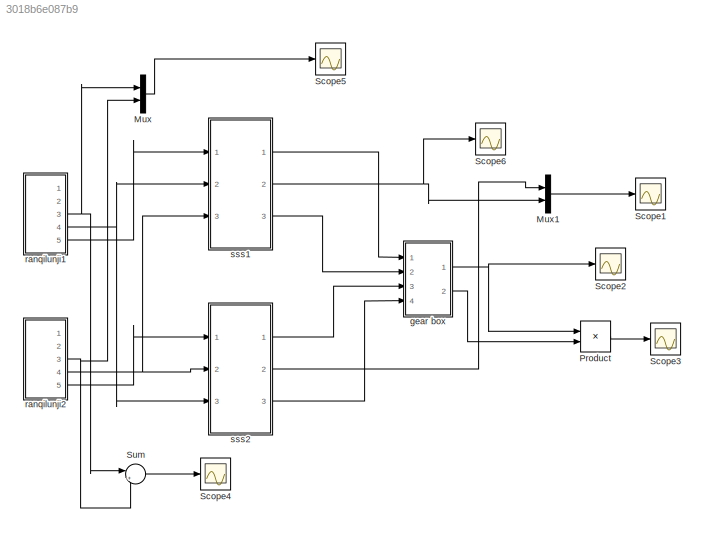
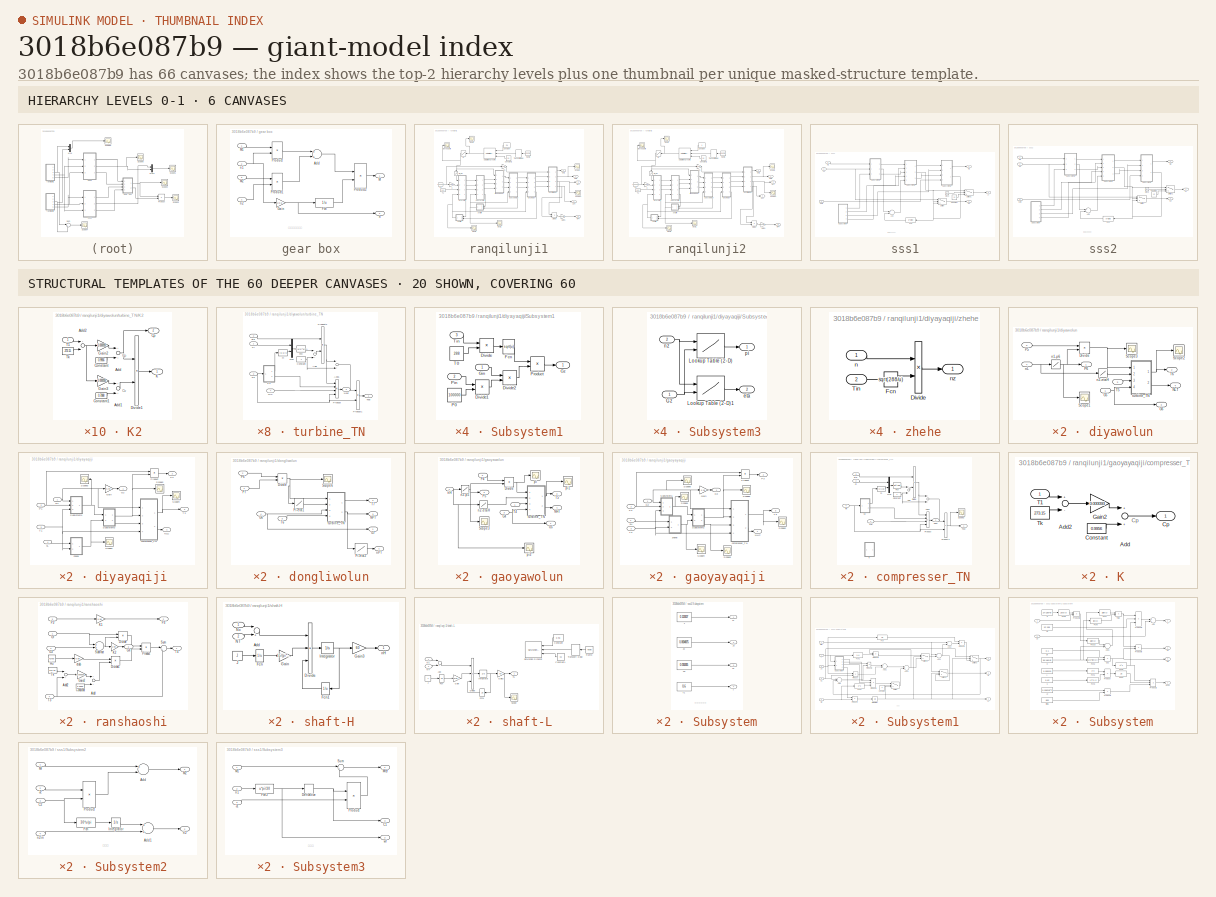
[diagram: thumbnail index - top-2 hierarchy levels (6 canvases) + 20 structural-template representatives of the remaining 60 canvases]
MODEL slx_3018b6e087b9
KIND model
BLOCK [Mux] Mux
  DisplayOption = bar
  Inputs = 2
  Ports = [2, 1]
BLOCK [Mux] Mux1
  DisplayOption = bar
  Inputs = 2
  Ports = [2, 1]
BLOCK [Product] Product
  InputSameDT = off
  OutDataTypeStr = Inherit: Inherit via internal rule
  Ports = [2, 1]
  RndMeth = Floor
  SaturateOnIntegerOverflow = off
BLOCK [Scope] Scope1
  DataFormat = StructureWithTime
  Floating = off
  NumInputPorts = 1
  Ports = [1]
  SampleTime = 0
  SaveName = ScopeData2
  ShowLegends = off
  TimeRange = 200
  YMax = 1400
  YMin = 0
BLOCK [Scope] Scope2
  DataFormat = StructureWithTime
  Floating = off
  NumInputPorts = 1
  Ports = [1]
  SampleTime = 0
  SaveName = ScopeData13
  ShowLegends = off
BLOCK [Scope] Scope3
  DataFormat = StructureWithTime
  Floating = off
  NumInputPorts = 1
  Ports = [1]
  SampleTime = 0
  SaveName = ScopeData19
  ShowLegends = off
BLOCK [Scope] Scope4
  DataFormat = StructureWithTime
  Floating = off
  NumInputPorts = 1
  Ports = [1]
  SampleTime = 0
  SaveName = ScopeData21
  ShowLegends = off
BLOCK [Scope] Scope5
  DataFormat = StructureWithTime
  Floating = off
  NumInputPorts = 1
  Ports = [1]
  SampleTime = 0
  SaveName = ScopeData23
  ShowLegends = off
  TimeRange = 200
  YMax = 1400
  YMin = 0
BLOCK [Scope] Scope6
  DataFormat = StructureWithTime
  Floating = off
  NumInputPorts = 1
  Ports = [1]
  SampleTime = 0
  SaveName = ScopeData12
  ShowLegends = off
  TimeRange = 200
  YMax = 1400
  YMin = 0
BLOCK [Sum] Sum
  IconShape = round
  InputSameDT = off
  Inputs = |++
  OutDataTypeStr = Inherit: Inherit via internal rule
  Ports = [2, 1]
  SaturateOnIntegerOverflow = off
BLOCK [SubSystem] gear box
  Ports = [4, 2]
  RequestExecContextInheritance = off
BLOCK [Sum] gear box/Add
  InputSameDT = off
  OutDataTypeStr = Inherit: Inherit via internal rule
  Ports = [2, 1]
  SaturateOnIntegerOverflow = off
BLOCK [Fcn] gear box/Fcn
  Expr = 1/u
BLOCK [Gain] gear box/Gain
  Gain = 1/3.5
  OutDataTypeStr = Inherit: Inherit via internal rule
  ParamDataTypeStr = Inherit: Inherit via internal rule
  SaturateOnIntegerOverflow = off
BLOCK [Outport] gear box/M
  IconDisplay = Port number
BLOCK [Inport] gear box/M1
  IconDisplay = Port number
BLOCK [Inport] gear box/M2
  IconDisplay = Port number
  Port = 3
BLOCK [Product] gear box/Product
  InputSameDT = off
  OutDataTypeStr = Inherit: Inherit via internal rule
  Ports = [2, 1]
  RndMeth = Floor
  SaturateOnIntegerOverflow = off
BLOCK [Product] gear box/Product1
  InputSameDT = off
  OutDataTypeStr = Inherit: Inherit via internal rule
  Ports = [2, 1]
  RndMeth = Floor
  SaturateOnIntegerOverflow = off
BLOCK [Product] gear box/Product2
  InputSameDT = off
  OutDataTypeStr = Inherit: Inherit via internal rule
  Ports = [2, 1]
  RndMeth = Floor
  SaturateOnIntegerOverflow = off
BLOCK [Outport] gear box/n
  IconDisplay = Port number
  Port = 2
BLOCK [Inport] gear box/n1
  IconDisplay = Port number
  Port = 2
BLOCK [Inport] gear box/n2
  IconDisplay = Port number
  Port = 4
BLOCK [SubSystem] ranqilunji1
  Ports = [0, 5]
  RequestExecContextInheritance = off
BLOCK [Constant] ranqilunji1/Constant
  Value = 0.1
BLOCK [Constant] ranqilunji1/Constant1
  Value = 0.5
BLOCK [Product] ranqilunji1/Divide
  InputSameDT = off
  Inputs = */
  OutDataTypeStr = Inherit: Inherit via internal rule
  Ports = [2, 1]
  RndMeth = Floor
  SaturateOnIntegerOverflow = off
BLOCK [Gain] ranqilunji1/Gain1
  Gain = 1000/0.7355
  OutDataTypeStr = Inherit: Inherit via internal rule
  ParamDataTypeStr = Inherit: Inherit via internal rule
  SaturateOnIntegerOverflow = off
BLOCK [Lookup] ranqilunji1/Gf
  InputValues = [0,0.03,0.07,0.09,0.11,0.13,0.17,0.2,0.23,0.26,0.28,0.3,0.32,0.34,0.35,0.38,0.4,0.42,0.44,0.47,0.49,0.5,0.52,0.54,0.55,0.59,0.61,0.64,0.66,0.68,0.7,0.72,0.74,0.77,0.81,0.83,0.85,0.88,0.93,0.95,0.97,1]
  SaturateOnIntegerOverflow = off
  Table = [0.172,0.236,0.331,0.331,0.366,0.411,0.488,0.536,0.582,0.605,0.644,0.682,0.698,0.728,0.727,0.783,0.783,0.813,0.857,0.886,0.935,0.949,0.95,0.975,0.999,1.022,1.069,1.149,1.153,1.184,1.206,1.233,1.256,1.271,1.325,1.383,1.383,1.439,1.481,1.504,1.52,1.574]
BLOCK [Lookup] ranqilunji1/Gf_G1
  InputValues = [0.172,0.236,0.331,0.366,0.411,0.488,0.536,0.582,0.605,0.644,0.682,0.698,0.727,0.728,0.783,0.813,0.857,0.886,0.935,0.949,0.95,0.975,0.999,1.022,1.069,1.149,1.153,1.184,1.206,1.233,1.256,1.271,1.325,1.383,1.439,1.481,1.504,1.52,1.574]
  SaturateOnIntegerOverflow = off
  Table = [20.01, 25.93, 38.77,  43.65, 45.94, 51.85, 54.70, 56.85, 59.03, 61.91, 60.44, 61.58, 62.93, 63.04, 65.71,   67.00, 69.52, 70.63, 73.19, 73.46, 73.44, 73.83, 75.62, 76.39, 78.27, 81.17, 81.50, 82.44, 83.44, 84.31, 85.30, 86.17, 87.93, 89.72, 91.51, 93.65, 94.63, 94.92, 97.64]
BLOCK [Scope] ranqilunji1/Gout1
  DataFormat = StructureWithTime
  Floating = off
  NumInputPorts = 1
  Ports = [1]
  SampleTime = 0
  ShowLegends = off
  TimeRange = 10
  ZoomMode = yonly
BLOCK [Scope] ranqilunji1/Gout2
  DataFormat = StructureWithTime
  Floating = off
  NumInputPorts = 1
  Ports = [1]
  SampleTime = 0
  SaveName = ScopeData11
  ShowLegends = off
  TimeRange = 10
  ZoomMode = yonly
BLOCK [Scope] ranqilunji1/Gout3
  DataFormat = StructureWithTime
  Floating = off
  NumInputPorts = 1
  Ports = [1]
  SampleTime = 0
  SaveName = ScopeData6
  ShowLegends = off
  TimeRange = 10
  ZoomMode = yonly
BLOCK [Gain] ranqilunji1/K
  Gain = 0.98
  OutDataTypeStr = Inherit: Inherit via internal rule
  ParamDataTypeStr = Inherit: Inherit via internal rule
  SaturateOnIntegerOverflow = off
BLOCK [Gain] ranqilunji1/K1
  Gain = 1.05
  OutDataTypeStr = Inherit: Inherit via internal rule
  ParamDataTypeStr = Inherit: Inherit via internal rule
  SaturateOnIntegerOverflow = off
BLOCK [Outport] ranqilunji1/MPT
  IconDisplay = Port number
  Port = 5
BLOCK [Outport] ranqilunji1/NPT
  IconDisplay = Port number
  Port = 3
BLOCK [Outport] ranqilunji1/Out1
  IconDisplay = Port number
BLOCK [Outport] ranqilunji1/Out2
  IconDisplay = Port number
  Port = 2
BLOCK [Constant] ranqilunji1/P0
  Value = 100000
BLOCK [Reference] ranqilunji1/Ramp  REF=simulink/Sources/Ramp
  Ports = [0, 1]
  SourceBlock = simulink/Sources/Ramp
  SourceType = Ramp
  VectorParams1D = on
  X0 = 0.5
  slope = 1/100
  start = 0
BLOCK [Reference] ranqilunji1/Saturation Dynamic  REF=simulink/Discontinuities/Saturation
Dynamic
  DoSatur = off
  LockScale = off
  OutDataType = fixdt(1, 16)
  OutDataTypeStr = Inherit: Same as second input
  OutMax = []
  OutMin = []
  OutScaling = 2^-10
  OutputDataTypeScalingMode = Same as second input
  Ports = [3, 1]
  RndMeth = Floor
  SourceBlock = simulink/Discontinuities/Saturation\nDynamic
  SourceType = Saturation Dynamic
BLOCK [Scope] ranqilunji1/Scope
  DataFormat = StructureWithTime
  Floating = off
  NumInputPorts = 1
  Ports = [1]
  SampleTime = 0
  SaveName = ScopeData3
  ShowLegends = off
BLOCK [Scope] ranqilunji1/Scope1
  DataFormat = StructureWithTime
  Floating = off
  NumInputPorts = 1
  Ports = [1]
  SampleTime = 0
  SaveName = ScopeData5
  ShowLegends = off
BLOCK [Constant] ranqilunji1/T1
  Value = 303
BLOCK [TransportDelay] ranqilunji1/Transport Delay
  DelayTime = 40
  Ports = [1, 1]
BLOCK [SubSystem] ranqilunji1/diyawolun
  Ports = [4, 4]
  RequestExecContextInheritance = off
BLOCK [Product] ranqilunji1/diyawolun/Divide
  InputSameDT = off
  Inputs = */
  OutDataTypeStr = Inherit: Inherit via internal rule
  Ports = [2, 1]
  RndMeth = Floor
  SaturateOnIntegerOverflow = off
BLOCK [Inport] ranqilunji1/diyawolun/G5
  IconDisplay = Port number
BLOCK [Outport] ranqilunji1/diyawolun/G6
  IconDisplay = Port number
  Port = 3
BLOCK [Outport] ranqilunji1/diyawolun/NLT
  IconDisplay = Port number
  Port = 4
BLOCK [Inport] ranqilunji1/diyawolun/P5
  IconDisplay = Port number
  Port = 2
BLOCK [Outport] ranqilunji1/diyawolun/P6
  IconDisplay = Port number
BLOCK [Scope] ranqilunji1/diyawolun/Scope1
  DataFormat = StructureWithTime
  Floating = off
  NumInputPorts = 1
  Ports = [1]
  SampleTime = 0
  SaveName = ScopeData28
  ShowLegends = off
  TimeRange = 100
  YMax = 25000
  YMin = 5000
  ZoomMode = yonly
BLOCK [Scope] ranqilunji1/diyawolun/Scope2
  DataFormat = StructureWithTime
  Floating = off
  NumInputPorts = 1
  Ports = [1]
  SampleTime = 0
  SaveName = ScopeData4
  ShowLegends = off
  TimeRange = 100
  YMax = 25000
  YMin = 5000
  ZoomMode = yonly
BLOCK [Scope] ranqilunji1/diyawolun/Scope3
  DataFormat = StructureWithTime
  Floating = off
  NumInputPorts = 1
  Ports = [1]
  SampleTime = 0
  SaveName = ScopeData20
  ShowLegends = off
  TimeRange = 100
  YMax = 25000
  YMin = 5000
  ZoomMode = yonly
BLOCK [Inport] ranqilunji1/diyawolun/T5
  IconDisplay = Port number
  Port = 3
BLOCK [Outport] ranqilunji1/diyawolun/T6
  IconDisplay = Port number
  Port = 2
BLOCK [Lookup] ranqilunji1/diyawolun/n1-p6
  InputValues = [2849,4651,4850,5410,5586,5742,6024,6092,6102,6211,6385,6425,6435,6609,6698,6732,7015,7080,7185]
  SaturateOnIntegerOverflow = off
  Table = [113000,150000,157000,180000,190000,201000,221000,229000,229500,242000,267000,272000,277000,306000,321000,322000,354000,360000,371000]
BLOCK [Lookup] ranqilunji1/diyawolun/n2-etaH
  InputValues = [4300 5000 5500 6000 6500 7000 7500 8000 9000 9500]
  SaturateOnIntegerOverflow = off
  Table = [0.82 0.83 0.835 0.84 0.85 0.86 0.875 0.87 0.865 0.86]
BLOCK [Inport] ranqilunji1/diyawolun/nL
  IconDisplay = Port number
  Port = 4
BLOCK [SubSystem] ranqilunji1/diyawolun/turbine_TN
  Ports = [4, 2]
  RequestExecContextInheritance = off
BLOCK [Sum] ranqilunji1/diyawolun/turbine_TN/Add
  InputSameDT = off
  Inputs = -+
  OutDataTypeStr = Inherit: Inherit via internal rule
  Ports = [2, 1]
  SaturateOnIntegerOverflow = off
BLOCK [Sum] ranqilunji1/diyawolun/turbine_TN/Add1
  InputSameDT = off
  Inputs = -+
  OutDataTypeStr = Inherit: Inherit via internal rule
  Ports = [2, 1]
  SaturateOnIntegerOverflow = off
BLOCK [Constant] ranqilunji1/diyawolun/turbine_TN/Constant
BLOCK [Fcn] ranqilunji1/diyawolun/turbine_TN/Fcn
  Expr = 1/(u[1]^u[2])
BLOCK [Inport] ranqilunji1/diyawolun/turbine_TN/Gin
  IconDisplay = Port number
  Port = 4
BLOCK [SubSystem] ranqilunji1/diyawolun/turbine_TN/K2
  Ports = [1, 2]
  RequestExecContextInheritance = off
BLOCK [Sum] ranqilunji1/diyawolun/turbine_TN/K2/Add
  InputSameDT = off
  OutDataTypeStr = Inherit: Inherit via internal rule
  Ports = [2, 1]
  SaturateOnIntegerOverflow = off
BLOCK [Sum] ranqilunji1/diyawolun/turbine_TN/K2/Add1
  InputSameDT = off
  OutDataTypeStr = Inherit: Inherit via internal rule
  Ports = [2, 1]
  SaturateOnIntegerOverflow = off
BLOCK [Sum] ranqilunji1/diyawolun/turbine_TN/K2/Add2
  InputSameDT = off
  Inputs = +-
  OutDataTypeStr = Inherit: Inherit via internal rule
  Ports = [2, 1]
  SaturateOnIntegerOverflow = off
BLOCK [Constant] ranqilunji1/diyawolun/turbine_TN/K2/Constant
  Value = 0.9956
BLOCK [Constant] ranqilunji1/diyawolun/turbine_TN/K2/Constant1
  Value = 0.7088
BLOCK [Outport] ranqilunji1/diyawolun/turbine_TN/K2/Cp
  IconDisplay = Port number
  Port = 2
BLOCK [Product] ranqilunji1/diyawolun/turbine_TN/K2/Divide1
  InputSameDT = off
  Inputs = */
  OutDataTypeStr = Inherit: Inherit via internal rule
  Ports = [2, 1]
  RndMeth = Floor
  SaturateOnIntegerOverflow = off
BLOCK [Gain] ranqilunji1/diyawolun/turbine_TN/K2/Gain2
  Gain = 0.000093
  OutDataTypeStr = Inherit: Inherit via internal rule
  ParamDataTypeStr = Inherit: Inherit via internal rule
  SaturateOnIntegerOverflow = off
BLOCK [Gain] ranqilunji1/diyawolun/turbine_TN/K2/Gain3
  Gain = 0.000093
  OutDataTypeStr = Inherit: Inherit via internal rule
  ParamDataTypeStr = Inherit: Inherit via internal rule
  SaturateOnIntegerOverflow = off
BLOCK [Outport] ranqilunji1/diyawolun/turbine_TN/K2/K
  IconDisplay = Port number
BLOCK [Inport] ranqilunji1/diyawolun/turbine_TN/K2/T1
  IconDisplay = Port number
BLOCK [Constant] ranqilunji1/diyawolun/turbine_TN/K2/Tk
  Value = 273.15
BLOCK [Mux] ranqilunji1/diyawolun/turbine_TN/Mux
  DisplayOption = bar
  Inputs = 2
  Ports = [2, 1]
BLOCK [Outport] ranqilunji1/diyawolun/turbine_TN/Nout
  IconDisplay = Port number
  Port = 2
BLOCK [Inport] ranqilunji1/diyawolun/turbine_TN/Pi
  IconDisplay = Port number
BLOCK [Product] ranqilunji1/diyawolun/turbine_TN/Product
  InputSameDT = off
  Inputs = 4
  OutDataTypeStr = Inherit: Inherit via internal rule
  Ports = [4, 1]
  SaturateOnIntegerOverflow = off
BLOCK [Product] ranqilunji1/diyawolun/turbine_TN/Product1
  InputSameDT = off
  OutDataTypeStr = Inherit: Inherit via internal rule
  Ports = [2, 1]
  SaturateOnIntegerOverflow = off
BLOCK [Product] ranqilunji1/diyawolun/turbine_TN/Product2
  InputSameDT = off
  OutDataTypeStr = Inherit: Inherit via internal rule
  Ports = [2, 1]
  SaturateOnIntegerOverflow = off
BLOCK [Inport] ranqilunji1/diyawolun/turbine_TN/Tin
  IconDisplay = Port number
  Port = 3
BLOCK [Outport] ranqilunji1/diyawolun/turbine_TN/Tout
  IconDisplay = Port number
BLOCK [Inport] ranqilunji1/diyawolun/turbine_TN/eta
  IconDisplay = Port number
  Port = 2
BLOCK [Fcn] ranqilunji1/diyawolun/turbine_TN/m
  Expr = (u-1)/u
BLOCK [SubSystem] ranqilunji1/diyayaqiji
  Ports = [4, 4]
  RequestExecContextInheritance = off
BLOCK [Inport] ranqilunji1/diyayaqiji/G1
  IconDisplay = Port number
BLOCK [Outport] ranqilunji1/diyayaqiji/G2
  IconDisplay = Port number
BLOCK [Gain] ranqilunji1/diyayaqiji/Gain
  Gain = 0.99
  OutDataTypeStr = Inherit: Inherit via internal rule
  ParamDataTypeStr = Inherit: Inherit via internal rule
  SaturateOnIntegerOverflow = off
BLOCK [Outport] ranqilunji1/diyayaqiji/NLC
  IconDisplay = Port number
  Port = 4
BLOCK [Inport] ranqilunji1/diyayaqiji/P1
  IconDisplay = Port number
  Port = 2
BLOCK [Outport] ranqilunji1/diyayaqiji/P2
  IconDisplay = Port number
  Port = 2
BLOCK [Product] ranqilunji1/diyayaqiji/Product
  InputSameDT = off
  OutDataTypeStr = Inherit: Inherit via internal rule
  Ports = [2, 1]
  SaturateOnIntegerOverflow = off
BLOCK [Scope] ranqilunji1/diyayaqiji/Scope1
  DataFormat = StructureWithTime
  Floating = off
  NumInputPorts = 1
  Ports = [1]
  SampleTime = 0
  SaveName = ScopeData14
  ShowLegends = off
  YMax = 3127.38
  YMin = 2829.54
BLOCK [Scope] ranqilunji1/diyayaqiji/Scope2
  DataFormat = StructureWithTime
  Floating = off
  NumInputPorts = 1
  Ports = [1]
  SampleTime = 0
  SaveName = ScopeData9
  ShowLegends = off
  YMax = 3127.38
  YMin = 2829.54
  ZoomMode = yonly
BLOCK [Scope] ranqilunji1/diyayaqiji/Scope3
  DataFormat = StructureWithTime
  Floating = off
  NumInputPorts = 1
  Ports = [1]
  SampleTime = 0
  SaveName = ScopeData30
  ShowLegends = off
  YMax = 3127.38
  YMin = 2829.54
BLOCK [Scope] ranqilunji1/diyayaqiji/Scope4
  DataFormat = StructureWithTime
  Floating = off
  NumInputPorts = 1
  Ports = [1]
  SampleTime = 0
  SaveName = ScopeData32
  ShowLegends = off
  TimeRange = 80
  YMax = 30000
  YMin = 5000
  ZoomMode = yonly
BLOCK [SubSystem] ranqilunji1/diyayaqiji/Subsystem1
  Ports = [3, 1]
  RequestExecContextInheritance = off
BLOCK [Product] ranqilunji1/diyayaqiji/Subsystem1/Divide
  InputSameDT = off
  Inputs = */
  OutDataTypeStr = Inherit: Inherit via internal rule
  Ports = [2, 1]
  RndMeth = Floor
  SaturateOnIntegerOverflow = off
BLOCK [Product] ranqilunji1/diyayaqiji/Subsystem1/Divide1
  InputSameDT = off
  Inputs = */
  OutDataTypeStr = Inherit: Inherit via internal rule
  Ports = [2, 1]
  RndMeth = Floor
  SaturateOnIntegerOverflow = off
BLOCK [Product] ranqilunji1/diyayaqiji/Subsystem1/Divide2
  InputSameDT = off
  Inputs = */
  OutDataTypeStr = Inherit: Inherit via internal rule
  Ports = [2, 1]
  RndMeth = Floor
  SaturateOnIntegerOverflow = off
BLOCK [Fcn] ranqilunji1/diyayaqiji/Subsystem1/Fcn
  Expr = sqrt(u)
BLOCK [Inport] ranqilunji1/diyayaqiji/Subsystem1/Gin
  IconDisplay = Port number
BLOCK [Outport] ranqilunji1/diyayaqiji/Subsystem1/Gz
  IconDisplay = Port number
BLOCK [Constant] ranqilunji1/diyayaqiji/Subsystem1/P0
  Value = 100000
BLOCK [Inport] ranqilunji1/diyayaqiji/Subsystem1/Pin
  IconDisplay = Port number
  Port = 2
BLOCK [Product] ranqilunji1/diyayaqiji/Subsystem1/Product
  InputSameDT = off
  OutDataTypeStr = Inherit: Inherit via internal rule
  Ports = [2, 1]
  SaturateOnIntegerOverflow = off
BLOCK [Constant] ranqilunji1/diyayaqiji/Subsystem1/T0
  Value = 288
BLOCK [Inport] ranqilunji1/diyayaqiji/Subsystem1/Tin
  IconDisplay = Port number
  Port = 3
BLOCK [SubSystem] ranqilunji1/diyayaqiji/Subsystem3
  Ports = [2, 2]
  RequestExecContextInheritance = off
BLOCK [Inport] ranqilunji1/diyayaqiji/Subsystem3/Gz
  IconDisplay = Port number
BLOCK [Lookup2D] ranqilunji1/diyayaqiji/Subsystem3/Lookup Table (2-D)
  ColumnIndex = [20:0.5:100]
  InputSameDT = off
  RowIndex = [4300 5000 5500 6000 6500 7000 7500 8000]
  SaturateOnIntegerOverflow = off
  Table = [1.1111 1.1471 1.1832 1.2192 1.2552 1.2913 1.3273 1.3633 1.3994 1.4354 1.4714 1.5074 1.5435 1.5795 1.6155 1.6516 1.6876 1.7236 1.8750 1.8749 1.8720 1.8623 1.8457 1.8223 1.7920 1.7549 1.7109 1.6601 1.6024 1.5378 1.4664 1.3881 1.2420 1.2701 1.2983 1.3265 1.3547 1.3828 1.4110 1.4392 1.4673 1.4955 1.5237 1.5519 1.5800 1.6082 1.6364 1.6645 1.6927 1.7209 1.7491 1.7772 1.8054 1.8336 1.8617 1.8899 1.9181 ...<+8625ch>
BLOCK [Lookup2D] ranqilunji1/diyayaqiji/Subsystem3/Lookup Table (2-D)1
  ColumnIndex = [20:0.5:100]
  InputSameDT = off
  RowIndex = [4300 5000 5500 6000 6500 7000 7500 8000]
  SaturateOnIntegerOverflow = off
  Table = [0.8303 0.8307 0.8310 0.8314 0.8317 0.8321 0.8324 0.8327 0.8331 0.8335 0.8338 0.8341 0.8345 0.8348 0.8351 0.8355 0.8358 0.8361 0.8371 0.8390 0.8403 0.8412 0.8415 0.8412 0.8405 0.8392 0.8373 0.8350 0.8321 0.8287 0.8247 0.8203 0.8200 0.8200 0.8200 0.8200 0.8200 0.8200 0.8200 0.8200 0.8200 0.8200 0.8200 0.8200 0.8200 0.8200 0.8200 0.8200 0.8200 0.8200 0.8200 0.8200 0.8200 0.8200 0.8200 0.8200 0.8200 ...<+8625ch>
BLOCK [Outport] ranqilunji1/diyayaqiji/Subsystem3/eta
  IconDisplay = Port number
  Port = 2
BLOCK [Inport] ranqilunji1/diyayaqiji/Subsystem3/nz
  IconDisplay = Port number
  Port = 2
BLOCK [Outport] ranqilunji1/diyayaqiji/Subsystem3/pi
  IconDisplay = Port number
BLOCK [Inport] ranqilunji1/diyayaqiji/T1
  IconDisplay = Port number
  Port = 3
BLOCK [Outport] ranqilunji1/diyayaqiji/T2
  IconDisplay = Port number
  Port = 3
BLOCK [SubSystem] ranqilunji1/diyayaqiji/compresser_TN
  Ports = [4, 2]
  RequestExecContextInheritance = off
BLOCK [Sum] ranqilunji1/diyayaqiji/compresser_TN/Add
  InputSameDT = off
  Inputs = +-
  OutDataTypeStr = Inherit: Inherit via internal rule
  Ports = [2, 1]
  SaturateOnIntegerOverflow = off
BLOCK [Sum] ranqilunji1/diyayaqiji/compresser_TN/Add1
  InputSameDT = off
  OutDataTypeStr = Inherit: Inherit via internal rule
  Ports = [2, 1]
  SaturateOnIntegerOverflow = off
BLOCK [Constant] ranqilunji1/diyayaqiji/compresser_TN/Constant
BLOCK [Product] ranqilunji1/diyayaqiji/compresser_TN/Divide
  InputSameDT = off
  Inputs = /*
  OutDataTypeStr = Inherit: Inherit via internal rule
  Ports = [2, 1]
  RndMeth = Floor
  SaturateOnIntegerOverflow = off
BLOCK [Fcn] ranqilunji1/diyayaqiji/compresser_TN/Fcn
  Expr = u[1]^(u[2])
BLOCK [Inport] ranqilunji1/diyayaqiji/compresser_TN/Gin
  IconDisplay = Port number
BLOCK [SubSystem] ranqilunji1/diyayaqiji/compresser_TN/K2
  Ports = [1, 2]
  RequestExecContextInheritance = off
BLOCK [Sum] ranqilunji1/diyayaqiji/compresser_TN/K2/Add
  InputSameDT = off
  OutDataTypeStr = Inherit: Inherit via internal rule
  Ports = [2, 1]
  SaturateOnIntegerOverflow = off
BLOCK [Sum] ranqilunji1/diyayaqiji/compresser_TN/K2/Add1
  InputSameDT = off
  OutDataTypeStr = Inherit: Inherit via internal rule
  Ports = [2, 1]
  SaturateOnIntegerOverflow = off
BLOCK [Sum] ranqilunji1/diyayaqiji/compresser_TN/K2/Add2
  InputSameDT = off
  Inputs = +-
  OutDataTypeStr = Inherit: Inherit via internal rule
  Ports = [2, 1]
  SaturateOnIntegerOverflow = off
BLOCK [Constant] ranqilunji1/diyayaqiji/compresser_TN/K2/Constant
  Value = 0.9956
BLOCK [Constant] ranqilunji1/diyayaqiji/compresser_TN/K2/Constant1
  Value = 0.7088
BLOCK [Outport] ranqilunji1/diyayaqiji/compresser_TN/K2/Cp
  IconDisplay = Port number
  Port = 2
BLOCK [Product] ranqilunji1/diyayaqiji/compresser_TN/K2/Divide1
  InputSameDT = off
  Inputs = */
  OutDataTypeStr = Inherit: Inherit via internal rule
  Ports = [2, 1]
  RndMeth = Floor
  SaturateOnIntegerOverflow = off
BLOCK [Gain] ranqilunji1/diyayaqiji/compresser_TN/K2/Gain2
  Gain = 0.000093
  OutDataTypeStr = Inherit: Inherit via internal rule
  ParamDataTypeStr = Inherit: Inherit via internal rule
  SaturateOnIntegerOverflow = off
BLOCK [Gain] ranqilunji1/diyayaqiji/compresser_TN/K2/Gain3
  Gain = 0.000093
  OutDataTypeStr = Inherit: Inherit via internal rule
  ParamDataTypeStr = Inherit: Inherit via internal rule
  SaturateOnIntegerOverflow = off
BLOCK [Outport] ranqilunji1/diyayaqiji/compresser_TN/K2/K
  IconDisplay = Port number
BLOCK [Inport] ranqilunji1/diyayaqiji/compresser_TN/K2/T1
  IconDisplay = Port number
BLOCK [Constant] ranqilunji1/diyayaqiji/compresser_TN/K2/Tk
  Value = 273.15
BLOCK [Mux] ranqilunji1/diyayaqiji/compresser_TN/Mux
  DisplayOption = bar
  Inputs = 2
  Ports = [2, 1]
BLOCK [Outport] ranqilunji1/diyayaqiji/compresser_TN/Nout
  IconDisplay = Port number
  Port = 2
BLOCK [Inport] ranqilunji1/diyayaqiji/compresser_TN/Pi
  IconDisplay = Port number
  Port = 2
BLOCK [Product] ranqilunji1/diyayaqiji/compresser_TN/Product
  InputSameDT = off
  Inputs = 4
  OutDataTypeStr = Inherit: Inherit via internal rule
  Ports = [4, 1]
  SaturateOnIntegerOverflow = off
BLOCK [Product] ranqilunji1/diyayaqiji/compresser_TN/Product1
  InputSameDT = off
  OutDataTypeStr = Inherit: Inherit via internal rule
  Ports = [2, 1]
  SaturateOnIntegerOverflow = off
BLOCK [Inport] ranqilunji1/diyayaqiji/compresser_TN/Tin
  IconDisplay = Port number
  Port = 4
BLOCK [Outport] ranqilunji1/diyayaqiji/compresser_TN/Tout
  IconDisplay = Port number
BLOCK [Inport] ranqilunji1/diyayaqiji/compresser_TN/eta
  IconDisplay = Port number
  Port = 3
BLOCK [Fcn] ranqilunji1/diyayaqiji/compresser_TN/m
  Expr = (u-1)/u
BLOCK [Inport] ranqilunji1/diyayaqiji/nL
  IconDisplay = Port number
  Port = 4
BLOCK [SubSystem] ranqilunji1/diyayaqiji/zhehe
  Ports = [2, 1]
  RequestExecContextInheritance = off
BLOCK [Product] ranqilunji1/diyayaqiji/zhehe/Divide
  InputSameDT = off
  Inputs = **
  OutDataTypeStr = Inherit: Inherit via internal rule
  Ports = [2, 1]
  RndMeth = Floor
  SaturateOnIntegerOverflow = off
BLOCK [Fcn] ranqilunji1/diyayaqiji/zhehe/Fcn
  Expr = sqrt(288/u)
BLOCK [Inport] ranqilunji1/diyayaqiji/zhehe/Tin
  IconDisplay = Port number
  Port = 2
BLOCK [Inport] ranqilunji1/diyayaqiji/zhehe/n
  IconDisplay = Port number
BLOCK [Outport] ranqilunji1/diyayaqiji/zhehe/nz
  IconDisplay = Port number
BLOCK [SubSystem] ranqilunji1/dongliwolun
  Ports = [4, 4]
  RequestExecContextInheritance = off
BLOCK [Product] ranqilunji1/dongliwolun/Divide
  InputSameDT = off
  Inputs = */
  OutDataTypeStr = Inherit: Inherit via internal rule
  Ports = [2, 1]
  RndMeth = Floor
  SaturateOnIntegerOverflow = off
BLOCK [Inport] ranqilunji1/dongliwolun/G6
  IconDisplay = Port number
  Port = 4
BLOCK [Outport] ranqilunji1/dongliwolun/G7
  IconDisplay = Port number
BLOCK [Outport] ranqilunji1/dongliwolun/NPT
  IconDisplay = Port number
  Port = 3
BLOCK [Inport] ranqilunji1/dongliwolun/P6
  IconDisplay = Port number
  Port = 2
BLOCK [Inport] ranqilunji1/dongliwolun/P7
  IconDisplay = Port number
BLOCK [Lookup] ranqilunji1/dongliwolun/Pi-eta1
  InputValues = [1,1.11 1.41 1.51 1.81 2.0 2.21 2.41 2.61 2.81]
  SaturateOnIntegerOverflow = off
  Table = [0.825,0.83 0.85 0.86 0.88 0.90 0.905 0.91 0.905 0.9]
BLOCK [Lookup] ranqilunji1/dongliwolun/Pi-eta2
  InputValues = [307,625,1634,2141,2611,3121,4030,4941,5687,6256,6755,7309,7716,8175,8374,9153,9719,10196,10702,11284,11832,12033,12512,13051,13298,14334,14778,15580,16003,16531,16669,17381,17948,18600,19648,20212,20613,21462,22525,23139,23520,24372]
  SaturateOnIntegerOverflow = off
  Table = [878,1243,1778,1749,1547,1574,1765,1930,2049,2045,2069,2150,2158,2185,2214,2272,2274,2209,2231,2240,2252,2500,2569,2649,2574,2650,2617,2639,2697,2653,2702,2785,2901,2979,3042,2919,2951,3108,3089,3056,3065,3142]
BLOCK [Scope] ranqilunji1/dongliwolun/Scope6
  DataFormat = StructureWithTime
  Floating = off
  NumInputPorts = 1
  Ports = [1]
  SampleTime = 0
  SaveName = ScopeData22
  ShowLegends = off
  YMax = 3127.38
  YMin = 2829.54
BLOCK [Inport] ranqilunji1/dongliwolun/T6
  IconDisplay = Port number
  Port = 3
BLOCK [Outport] ranqilunji1/dongliwolun/T7
  IconDisplay = Port number
  Port = 2
BLOCK [Outport] ranqilunji1/dongliwolun/nPT
  IconDisplay = Port number
  Port = 4
BLOCK [SubSystem] ranqilunji1/dongliwolun/turbine_TN
  Ports = [4, 2]
  RequestExecContextInheritance = off
BLOCK [Sum] ranqilunji1/dongliwolun/turbine_TN/Add
  InputSameDT = off
  Inputs = -+
  OutDataTypeStr = Inherit: Inherit via internal rule
  Ports = [2, 1]
  SaturateOnIntegerOverflow = off
BLOCK [Sum] ranqilunji1/dongliwolun/turbine_TN/Add1
  InputSameDT = off
  Inputs = -+
  OutDataTypeStr = Inherit: Inherit via internal rule
  Ports = [2, 1]
  SaturateOnIntegerOverflow = off
BLOCK [Constant] ranqilunji1/dongliwolun/turbine_TN/Constant
BLOCK [Fcn] ranqilunji1/dongliwolun/turbine_TN/Fcn
  Expr = 1/(u[1]^u[2])
BLOCK [Inport] ranqilunji1/dongliwolun/turbine_TN/Gin
  IconDisplay = Port number
  Port = 3
BLOCK [SubSystem] ranqilunji1/dongliwolun/turbine_TN/K1
  Ports = [1, 2]
  RequestExecContextInheritance = off
BLOCK [Sum] ranqilunji1/dongliwolun/turbine_TN/K1/Add
  InputSameDT = off
  OutDataTypeStr = Inherit: Inherit via internal rule
  Ports = [2, 1]
  SaturateOnIntegerOverflow = off
BLOCK [Sum] ranqilunji1/dongliwolun/turbine_TN/K1/Add1
  InputSameDT = off
  OutDataTypeStr = Inherit: Inherit via internal rule
  Ports = [2, 1]
  SaturateOnIntegerOverflow = off
BLOCK [Sum] ranqilunji1/dongliwolun/turbine_TN/K1/Add2
  InputSameDT = off
  Inputs = +-
  OutDataTypeStr = Inherit: Inherit via internal rule
  Ports = [2, 1]
  SaturateOnIntegerOverflow = off
BLOCK [Constant] ranqilunji1/dongliwolun/turbine_TN/K1/Constant
  Value = 0.9956
BLOCK [Constant] ranqilunji1/dongliwolun/turbine_TN/K1/Constant1
  Value = 0.7088
BLOCK [Outport] ranqilunji1/dongliwolun/turbine_TN/K1/Cp
  IconDisplay = Port number
  Port = 2
BLOCK [Product] ranqilunji1/dongliwolun/turbine_TN/K1/Divide1
  InputSameDT = off
  Inputs = */
  OutDataTypeStr = Inherit: Inherit via internal rule
  Ports = [2, 1]
  RndMeth = Floor
  SaturateOnIntegerOverflow = off
BLOCK [Gain] ranqilunji1/dongliwolun/turbine_TN/K1/Gain2
  Gain = 0.000093
  OutDataTypeStr = Inherit: Inherit via internal rule
  ParamDataTypeStr = Inherit: Inherit via internal rule
  SaturateOnIntegerOverflow = off
BLOCK [Gain] ranqilunji1/dongliwolun/turbine_TN/K1/Gain3
  Gain = 0.000093
  OutDataTypeStr = Inherit: Inherit via internal rule
  ParamDataTypeStr = Inherit: Inherit via internal rule
  SaturateOnIntegerOverflow = off
BLOCK [Outport] ranqilunji1/dongliwolun/turbine_TN/K1/K
  IconDisplay = Port number
BLOCK [Inport] ranqilunji1/dongliwolun/turbine_TN/K1/T1
  IconDisplay = Port number
BLOCK [Constant] ranqilunji1/dongliwolun/turbine_TN/K1/Tk
  Value = 273.15
BLOCK [Mux] ranqilunji1/dongliwolun/turbine_TN/Mux
  DisplayOption = bar
  Inputs = 2
  Ports = [2, 1]
BLOCK [Outport] ranqilunji1/dongliwolun/turbine_TN/Nout
  IconDisplay = Port number
  Port = 2
BLOCK [Inport] ranqilunji1/dongliwolun/turbine_TN/Pi
  IconDisplay = Port number
BLOCK [Product] ranqilunji1/dongliwolun/turbine_TN/Product
  InputSameDT = off
  Inputs = 4
  OutDataTypeStr = Inherit: Inherit via internal rule
  Ports = [4, 1]
  SaturateOnIntegerOverflow = off
BLOCK [Product] ranqilunji1/dongliwolun/turbine_TN/Product1
  InputSameDT = off
  OutDataTypeStr = Inherit: Inherit via internal rule
  Ports = [2, 1]
  SaturateOnIntegerOverflow = off
BLOCK [Product] ranqilunji1/dongliwolun/turbine_TN/Product2
  InputSameDT = off
  OutDataTypeStr = Inherit: Inherit via internal rule
  Ports = [2, 1]
  SaturateOnIntegerOverflow = off
BLOCK [Inport] ranqilunji1/dongliwolun/turbine_TN/Tin
  IconDisplay = Port number
  Port = 4
BLOCK [Outport] ranqilunji1/dongliwolun/turbine_TN/Tout
  IconDisplay = Port number
BLOCK [Inport] ranqilunji1/dongliwolun/turbine_TN/eta
  IconDisplay = Port number
  Port = 2
BLOCK [Fcn] ranqilunji1/dongliwolun/turbine_TN/m
  Expr = (u-1)/u
BLOCK [SubSystem] ranqilunji1/gaoyawolun
  Ports = [4, 4]
  RequestExecContextInheritance = off
BLOCK [Product] ranqilunji1/gaoyawolun/Divide
  InputSameDT = off
  Inputs = */
  OutDataTypeStr = Inherit: Inherit via internal rule
  Ports = [2, 1]
  RndMeth = Floor
  SaturateOnIntegerOverflow = off
BLOCK [Inport] ranqilunji1/gaoyawolun/G4
  IconDisplay = Port number
  Port = 3
BLOCK [Outport] ranqilunji1/gaoyawolun/G5
  IconDisplay = Port number
BLOCK [Outport] ranqilunji1/gaoyawolun/NHT
  IconDisplay = Port number
  Port = 4
BLOCK [Inport] ranqilunji1/gaoyawolun/P4
  IconDisplay = Port number
  Port = 2
BLOCK [Outport] ranqilunji1/gaoyawolun/P5
  IconDisplay = Port number
  Port = 2
BLOCK [Scope] ranqilunji1/gaoyawolun/Scope3
  DataFormat = StructureWithTime
  Floating = off
  NumInputPorts = 1
  Ports = [1]
  SampleTime = 0
  SaveName = ScopeData34
  ShowLegends = off
  TimeRange = 100
  YMax = 25000
  YMin = 5000
  ZoomMode = yonly
BLOCK [Inport] ranqilunji1/gaoyawolun/T4
  IconDisplay = Port number
BLOCK [Outport] ranqilunji1/gaoyawolun/T5
  IconDisplay = Port number
  Port = 3
BLOCK [Lookup] ranqilunji1/gaoyawolun/n2-etaH
  InputValues = [6000 6300 6500 6800 7000 7150 7300 7500 7800]
  SaturateOnIntegerOverflow = off
  Table = [0.81 0.83 0.85 0.87 0.88 0.87 0.86 0.855 0.85]
BLOCK [Lookup] ranqilunji1/gaoyawolun/n2-p5
  InputValues = [5832,7212,7282,7644,7752,7853,8033,8092 8211 8392 8430 8452 8670 8767 8960 8999 9073]
  SaturateOnIntegerOverflow = off
  Table = [154000,269000,296000,361000,391000,419000,476000,494000 534000 596000 609000 616000 684000 719000 806000 814000 831000]
BLOCK [Inport] ranqilunji1/gaoyawolun/nH
  IconDisplay = Port number
  Port = 4
BLOCK [Scope] ranqilunji1/gaoyawolun/pi
  DataFormat = StructureWithTime
  Floating = off
  NumInputPorts = 1
  Ports = [1]
  SampleTime = 0
  SaveName = ScopeData17
  ShowLegends = off
  TimeRange = 100
  YMax = 3127.38
  YMin = 2829.54
BLOCK [Scope] ranqilunji1/gaoyawolun/pi1
  DataFormat = StructureWithTime
  Floating = off
  NumInputPorts = 1
  Ports = [1]
  SampleTime = 0
  SaveName = ScopeData7
  ShowLegends = off
  TimeRange = 100
  YMax = 3127.38
  YMin = 2829.54
BLOCK [Scope] ranqilunji1/gaoyawolun/pi2
  DataFormat = StructureWithTime
  Floating = off
  NumInputPorts = 1
  Ports = [1]
  SampleTime = 0
  SaveName = ScopeData35
  ShowLegends = off
  TimeRange = 100
  YMax = 3127.38
  YMin = 2829.54
BLOCK [SubSystem] ranqilunji1/gaoyawolun/turbine_TN
  Ports = [4, 2]
  RequestExecContextInheritance = off
BLOCK [Sum] ranqilunji1/gaoyawolun/turbine_TN/Add
  InputSameDT = off
  Inputs = -+
  OutDataTypeStr = Inherit: Inherit via internal rule
  Ports = [2, 1]
  SaturateOnIntegerOverflow = off
BLOCK [Sum] ranqilunji1/gaoyawolun/turbine_TN/Add1
  InputSameDT = off
  Inputs = -+
  OutDataTypeStr = Inherit: Inherit via internal rule
  Ports = [2, 1]
  SaturateOnIntegerOverflow = off
BLOCK [Constant] ranqilunji1/gaoyawolun/turbine_TN/Constant
BLOCK [Fcn] ranqilunji1/gaoyawolun/turbine_TN/Fcn
  Expr = 1/(u[1]^u[2])
BLOCK [Inport] ranqilunji1/gaoyawolun/turbine_TN/Gin
  IconDisplay = Port number
  Port = 4
BLOCK [SubSystem] ranqilunji1/gaoyawolun/turbine_TN/K2
  Ports = [1, 2]
  RequestExecContextInheritance = off
BLOCK [Sum] ranqilunji1/gaoyawolun/turbine_TN/K2/Add
  InputSameDT = off
  OutDataTypeStr = Inherit: Inherit via internal rule
  Ports = [2, 1]
  SaturateOnIntegerOverflow = off
BLOCK [Sum] ranqilunji1/gaoyawolun/turbine_TN/K2/Add1
  InputSameDT = off
  OutDataTypeStr = Inherit: Inherit via internal rule
  Ports = [2, 1]
  SaturateOnIntegerOverflow = off
BLOCK [Sum] ranqilunji1/gaoyawolun/turbine_TN/K2/Add2
  InputSameDT = off
  Inputs = +-
  OutDataTypeStr = Inherit: Inherit via internal rule
  Ports = [2, 1]
  SaturateOnIntegerOverflow = off
BLOCK [Constant] ranqilunji1/gaoyawolun/turbine_TN/K2/Constant
  Value = 0.9956
BLOCK [Constant] ranqilunji1/gaoyawolun/turbine_TN/K2/Constant1
  Value = 0.7088
BLOCK [Outport] ranqilunji1/gaoyawolun/turbine_TN/K2/Cp
  IconDisplay = Port number
  Port = 2
BLOCK [Product] ranqilunji1/gaoyawolun/turbine_TN/K2/Divide1
  InputSameDT = off
  Inputs = */
  OutDataTypeStr = Inherit: Inherit via internal rule
  Ports = [2, 1]
  RndMeth = Floor
  SaturateOnIntegerOverflow = off
BLOCK [Gain] ranqilunji1/gaoyawolun/turbine_TN/K2/Gain2
  Gain = 0.000093
  OutDataTypeStr = Inherit: Inherit via internal rule
  ParamDataTypeStr = Inherit: Inherit via internal rule
  SaturateOnIntegerOverflow = off
BLOCK [Gain] ranqilunji1/gaoyawolun/turbine_TN/K2/Gain3
  Gain = 0.000093
  OutDataTypeStr = Inherit: Inherit via internal rule
  ParamDataTypeStr = Inherit: Inherit via internal rule
  SaturateOnIntegerOverflow = off
BLOCK [Outport] ranqilunji1/gaoyawolun/turbine_TN/K2/K
  IconDisplay = Port number
BLOCK [Inport] ranqilunji1/gaoyawolun/turbine_TN/K2/T1
  IconDisplay = Port number
BLOCK [Constant] ranqilunji1/gaoyawolun/turbine_TN/K2/Tk
  Value = 273.15
BLOCK [Mux] ranqilunji1/gaoyawolun/turbine_TN/Mux
  DisplayOption = bar
  Inputs = 2
  Ports = [2, 1]
BLOCK [Outport] ranqilunji1/gaoyawolun/turbine_TN/Nout
  IconDisplay = Port number
  Port = 2
BLOCK [Inport] ranqilunji1/gaoyawolun/turbine_TN/Pi
  IconDisplay = Port number
BLOCK [Product] ranqilunji1/gaoyawolun/turbine_TN/Product
  InputSameDT = off
  Inputs = 4
  OutDataTypeStr = Inherit: Inherit via internal rule
  Ports = [4, 1]
  SaturateOnIntegerOverflow = off
BLOCK [Product] ranqilunji1/gaoyawolun/turbine_TN/Product1
  InputSameDT = off
  OutDataTypeStr = Inherit: Inherit via internal rule
  Ports = [2, 1]
  SaturateOnIntegerOverflow = off
BLOCK [Product] ranqilunji1/gaoyawolun/turbine_TN/Product2
  InputSameDT = off
  OutDataTypeStr = Inherit: Inherit via internal rule
  Ports = [2, 1]
  SaturateOnIntegerOverflow = off
BLOCK [Inport] ranqilunji1/gaoyawolun/turbine_TN/Tin
  IconDisplay = Port number
  Port = 3
BLOCK [Outport] ranqilunji1/gaoyawolun/turbine_TN/Tout
  IconDisplay = Port number
BLOCK [Inport] ranqilunji1/gaoyawolun/turbine_TN/eta
  IconDisplay = Port number
  Port = 2
BLOCK [Fcn] ranqilunji1/gaoyawolun/turbine_TN/m
  Expr = (u-1)/u
BLOCK [SubSystem] ranqilunji1/gaoyayaqiji
  Ports = [4, 4]
  RequestExecContextInheritance = off
BLOCK [Inport] ranqilunji1/gaoyayaqiji/G2
  IconDisplay = Port number
BLOCK [Outport] ranqilunji1/gaoyayaqiji/G3
  IconDisplay = Port number
BLOCK [Gain] ranqilunji1/gaoyayaqiji/Gain
  Gain = 0.99
  OutDataTypeStr = Inherit: Inherit via internal rule
  ParamDataTypeStr = Inherit: Inherit via internal rule
  SaturateOnIntegerOverflow = off
BLOCK [Outport] ranqilunji1/gaoyayaqiji/NHC
  IconDisplay = Port number
  Port = 4
BLOCK [Inport] ranqilunji1/gaoyayaqiji/P2
  IconDisplay = Port number
  Port = 2
BLOCK [Outport] ranqilunji1/gaoyayaqiji/P3
  IconDisplay = Port number
  Port = 2
BLOCK [Product] ranqilunji1/gaoyayaqiji/Product
  InputSameDT = off
  OutDataTypeStr = Inherit: Inherit via internal rule
  Ports = [2, 1]
  SaturateOnIntegerOverflow = off
BLOCK [Scope] ranqilunji1/gaoyayaqiji/Scope1
  DataFormat = StructureWithTime
  Floating = off
  NumInputPorts = 1
  Ports = [1]
  SampleTime = 0
  SaveName = ScopeData16
  ShowLegends = off
  YMax = 3127.38
  YMin = 2829.54
BLOCK [Scope] ranqilunji1/gaoyayaqiji/Scope2
  DataFormat = StructureWithTime
  Floating = off
  NumInputPorts = 1
  Ports = [1]
  SampleTime = 0
  SaveName = ScopeData29
  ShowLegends = off
  YMax = 3127.38
  YMin = 2829.54
  ZoomMode = yonly
BLOCK [Scope] ranqilunji1/gaoyayaqiji/Scope3
  DataFormat = StructureWithTime
  Floating = off
  NumInputPorts = 1
  Ports = [1]
  SampleTime = 0
  SaveName = ScopeData24
  ShowLegends = off
  YMax = 3127.38
  YMin = 2829.54
BLOCK [Scope] ranqilunji1/gaoyayaqiji/Scope4
  DataFormat = StructureWithTime
  Floating = off
  NumInputPorts = 1
  Ports = [1]
  SampleTime = 0
  SaveName = ScopeData31
  ShowLegends = off
  YMax = 3127.38
  YMin = 2829.54
BLOCK [Scope] ranqilunji1/gaoyayaqiji/Scope5
  DataFormat = StructureWithTime
  Floating = off
  NumInputPorts = 1
  Ports = [1]
  SampleTime = 0
  SaveName = ScopeData10
  ShowLegends = off
  YMax = 3127.38
  YMin = 2829.54
BLOCK [Scope] ranqilunji1/gaoyayaqiji/Scope6
  DataFormat = StructureWithTime
  Floating = off
  NumInputPorts = 1
  Ports = [1]
  SampleTime = 0
  SaveName = ScopeData15
  ShowLegends = off
  YMax = 3127.38
  YMin = 2829.54
BLOCK [SubSystem] ranqilunji1/gaoyayaqiji/Subsystem1
  Ports = [3, 1]
  RequestExecContextInheritance = off
BLOCK [Product] ranqilunji1/gaoyayaqiji/Subsystem1/Divide
  InputSameDT = off
  Inputs = */
  OutDataTypeStr = Inherit: Inherit via internal rule
  Ports = [2, 1]
  RndMeth = Floor
  SaturateOnIntegerOverflow = off
BLOCK [Product] ranqilunji1/gaoyayaqiji/Subsystem1/Divide1
  InputSameDT = off
  Inputs = */
  OutDataTypeStr = Inherit: Inherit via internal rule
  Ports = [2, 1]
  RndMeth = Floor
  SaturateOnIntegerOverflow = off
BLOCK [Product] ranqilunji1/gaoyayaqiji/Subsystem1/Divide2
  InputSameDT = off
  Inputs = */
  OutDataTypeStr = Inherit: Inherit via internal rule
  Ports = [2, 1]
  RndMeth = Floor
  SaturateOnIntegerOverflow = off
BLOCK [Fcn] ranqilunji1/gaoyayaqiji/Subsystem1/Fcn
  Expr = sqrt(u)
BLOCK [Inport] ranqilunji1/gaoyayaqiji/Subsystem1/Gin
  IconDisplay = Port number
BLOCK [Outport] ranqilunji1/gaoyayaqiji/Subsystem1/Gz
  IconDisplay = Port number
BLOCK [Constant] ranqilunji1/gaoyayaqiji/Subsystem1/P0
  Value = 100000
BLOCK [Inport] ranqilunji1/gaoyayaqiji/Subsystem1/Pin
  IconDisplay = Port number
  Port = 2
BLOCK [Product] ranqilunji1/gaoyayaqiji/Subsystem1/Product
  InputSameDT = off
  OutDataTypeStr = Inherit: Inherit via internal rule
  Ports = [2, 1]
  SaturateOnIntegerOverflow = off
BLOCK [Constant] ranqilunji1/gaoyayaqiji/Subsystem1/T0
  Value = 288
BLOCK [Inport] ranqilunji1/gaoyayaqiji/Subsystem1/Tin
  IconDisplay = Port number
  Port = 3
BLOCK [SubSystem] ranqilunji1/gaoyayaqiji/Subsystem2
  Ports = [2, 2]
  RequestExecContextInheritance = off
BLOCK [Inport] ranqilunji1/gaoyayaqiji/Subsystem2/Gz
  IconDisplay = Port number
BLOCK [Lookup2D] ranqilunji1/gaoyayaqiji/Subsystem2/Lookup Table (2-D)
  ColumnIndex = [12:0.2:29]
  InputSameDT = off
  RowIndex = [6000 6300 6500 6800 7000 7300 7500 7800]
  SaturateOnIntegerOverflow = off
  Table = [2.4803 2.5510 2.6217 2.6924 2.7630 2.8337 2.9044 2.9751 3.0172 2.9863 2.9541 2.9206 2.8860 2.8500 2.8129 2.7745 2.7349 2.6940 2.6519 2.6085 2.5640 2.5181 2.4711 2.4906 2.5237 2.5573 2.5913 2.6257 2.6605 2.6958 2.7314 2.7675 2.8040 2.8409 2.8783 2.9161 2.9543 2.9929 3.0319 3.0714 3.1112 3.1515 3.1923 3.2334 3.2750 3.3169 3.3593 3.4022 3.4454 3.4891 3.5332 3.5777 3.6226 3.6679 3.7137 3.7599 3.8065 ...<+4432ch>
BLOCK [Lookup2D] ranqilunji1/gaoyayaqiji/Subsystem2/Lookup Table (2-D)1
  ColumnIndex = [12:0.2:29]
  InputSameDT = off
  RowIndex = [6000 6300 6500 6800 7000 7300 7500 7800]
  SaturateOnIntegerOverflow = off
  Table = [0.8450 0.8455 0.8460 0.8465 0.8470 0.8480 0.8490 0.8495 0.8500 0.8510 0.8520 0.8530 0.8540 0.8540 0.8540 0.8525 0.8510 0.8500 0.8490 0.8480 0.8470 0.8460 0.8450 0.8455 0.8460 0.8460 0.8460 0.8470 0.8480 0.8480 0.8480 0.8480 0.8480 0.8485 0.8490 0.8490 0.8490 0.8490 0.8490 0.8490 0.8490 0.8490 0.8490 0.8490 0.8490 0.8490 0.8490 0.8490 0.8490 0.8495 0.8500 0.8500 0.8500 0.8500 0.8500 0.8500 0.8500 ...<+4425ch>
BLOCK [Outport] ranqilunji1/gaoyayaqiji/Subsystem2/eta
  IconDisplay = Port number
  Port = 2
BLOCK [Inport] ranqilunji1/gaoyayaqiji/Subsystem2/nz
  IconDisplay = Port number
  Port = 2
BLOCK [Outport] ranqilunji1/gaoyayaqiji/Subsystem2/pi
  IconDisplay = Port number
BLOCK [Inport] ranqilunji1/gaoyayaqiji/T2
  IconDisplay = Port number
  Port = 3
BLOCK [Outport] ranqilunji1/gaoyayaqiji/T3
  IconDisplay = Port number
  Port = 3
BLOCK [SubSystem] ranqilunji1/gaoyayaqiji/compresser_TN
  Ports = [4, 2]
  RequestExecContextInheritance = off
BLOCK [Sum] ranqilunji1/gaoyayaqiji/compresser_TN/Add
  InputSameDT = off
  Inputs = +-
  OutDataTypeStr = Inherit: Inherit via internal rule
  Ports = [2, 1]
  SaturateOnIntegerOverflow = off
BLOCK [Sum] ranqilunji1/gaoyayaqiji/compresser_TN/Add1
  InputSameDT = off
  OutDataTypeStr = Inherit: Inherit via internal rule
  Ports = [2, 1]
  SaturateOnIntegerOverflow = off
BLOCK [Constant] ranqilunji1/gaoyayaqiji/compresser_TN/Constant
BLOCK [Product] ranqilunji1/gaoyayaqiji/compresser_TN/Divide
  InputSameDT = off
  Inputs = /*
  OutDataTypeStr = Inherit: Inherit via internal rule
  Ports = [2, 1]
  RndMeth = Floor
  SaturateOnIntegerOverflow = off
BLOCK [Fcn] ranqilunji1/gaoyayaqiji/compresser_TN/Fcn
  Expr = u[1]^(u[2])
BLOCK [Inport] ranqilunji1/gaoyayaqiji/compresser_TN/Gin
  IconDisplay = Port number
BLOCK [SubSystem] ranqilunji1/gaoyayaqiji/compresser_TN/K
  Ports = [1, 1]
  RequestExecContextInheritance = off
BLOCK [Sum] ranqilunji1/gaoyayaqiji/compresser_TN/K/Add
  InputSameDT = off
  OutDataTypeStr = Inherit: Inherit via internal rule
  Ports = [2, 1]
  SaturateOnIntegerOverflow = off
BLOCK [Sum] ranqilunji1/gaoyayaqiji/compresser_TN/K/Add2
  InputSameDT = off
  Inputs = +-
  OutDataTypeStr = Inherit: Inherit via internal rule
  Ports = [2, 1]
  SaturateOnIntegerOverflow = off
BLOCK [Constant] ranqilunji1/gaoyayaqiji/compresser_TN/K/Constant
  Value = 0.9956
BLOCK [Outport] ranqilunji1/gaoyayaqiji/compresser_TN/K/Cp
  IconDisplay = Port number
BLOCK [Gain] ranqilunji1/gaoyayaqiji/compresser_TN/K/Gain2
  Gain = 0.000093
  OutDataTypeStr = Inherit: Inherit via internal rule
  ParamDataTypeStr = Inherit: Inherit via internal rule
  SaturateOnIntegerOverflow = off
BLOCK [Inport] ranqilunji1/gaoyayaqiji/compresser_TN/K/T1
  IconDisplay = Port number
BLOCK [Constant] ranqilunji1/gaoyayaqiji/compresser_TN/K/Tk
  Value = 273.15
BLOCK [SubSystem] ranqilunji1/gaoyayaqiji/compresser_TN/K2
  Ports = [1, 2]
  RequestExecContextInheritance = off
BLOCK [Sum] ranqilunji1/gaoyayaqiji/compresser_TN/K2/Add
  InputSameDT = off
  OutDataTypeStr = Inherit: Inherit via internal rule
  Ports = [2, 1]
  SaturateOnIntegerOverflow = off
BLOCK [Sum] ranqilunji1/gaoyayaqiji/compresser_TN/K2/Add1
  InputSameDT = off
  OutDataTypeStr = Inherit: Inherit via internal rule
  Ports = [2, 1]
  SaturateOnIntegerOverflow = off
BLOCK [Sum] ranqilunji1/gaoyayaqiji/compresser_TN/K2/Add2
  InputSameDT = off
  Inputs = +-
  OutDataTypeStr = Inherit: Inherit via internal rule
  Ports = [2, 1]
  SaturateOnIntegerOverflow = off
BLOCK [Constant] ranqilunji1/gaoyayaqiji/compresser_TN/K2/Constant
  Value = 0.9956
BLOCK [Constant] ranqilunji1/gaoyayaqiji/compresser_TN/K2/Constant1
  Value = 0.7088
BLOCK [Outport] ranqilunji1/gaoyayaqiji/compresser_TN/K2/Cp
  IconDisplay = Port number
  Port = 2
BLOCK [Product] ranqilunji1/gaoyayaqiji/compresser_TN/K2/Divide1
  InputSameDT = off
  Inputs = */
  OutDataTypeStr = Inherit: Inherit via internal rule
  Ports = [2, 1]
  RndMeth = Floor
  SaturateOnIntegerOverflow = off
BLOCK [Gain] ranqilunji1/gaoyayaqiji/compresser_TN/K2/Gain2
  Gain = 0.000093
  OutDataTypeStr = Inherit: Inherit via internal rule
  ParamDataTypeStr = Inherit: Inherit via internal rule
  SaturateOnIntegerOverflow = off
BLOCK [Gain] ranqilunji1/gaoyayaqiji/compresser_TN/K2/Gain3
  Gain = 0.000093
  OutDataTypeStr = Inherit: Inherit via internal rule
  ParamDataTypeStr = Inherit: Inherit via internal rule
  SaturateOnIntegerOverflow = off
BLOCK [Outport] ranqilunji1/gaoyayaqiji/compresser_TN/K2/K
  IconDisplay = Port number
BLOCK [Inport] ranqilunji1/gaoyayaqiji/compresser_TN/K2/T1
  IconDisplay = Port number
BLOCK [Constant] ranqilunji1/gaoyayaqiji/compresser_TN/K2/Tk
  Value = 273.15
BLOCK [Mux] ranqilunji1/gaoyayaqiji/compresser_TN/Mux
  DisplayOption = bar
  Inputs = 2
  Ports = [2, 1]
BLOCK [Outport] ranqilunji1/gaoyayaqiji/compresser_TN/Nout
  IconDisplay = Port number
  Port = 2
BLOCK [Inport] ranqilunji1/gaoyayaqiji/compresser_TN/Pi
  IconDisplay = Port number
  Port = 2
BLOCK [Product] ranqilunji1/gaoyayaqiji/compresser_TN/Product
  InputSameDT = off
  Inputs = 4
  OutDataTypeStr = Inherit: Inherit via internal rule
  Ports = [4, 1]
  SaturateOnIntegerOverflow = off
BLOCK [Product] ranqilunji1/gaoyayaqiji/compresser_TN/Product1
  InputSameDT = off
  OutDataTypeStr = Inherit: Inherit via internal rule
  Ports = [2, 1]
  SaturateOnIntegerOverflow = off
BLOCK [Scope] ranqilunji1/gaoyayaqiji/compresser_TN/Scope3
  DataFormat = StructureWithTime
  Floating = off
  NumInputPorts = 1
  Ports = [1]
  SampleTime = 0
  SaveName = ScopeData18
  ShowLegends = off
  YMax = 3127.38
  YMin = 2829.54
BLOCK [Inport] ranqilunji1/gaoyayaqiji/compresser_TN/Tin
  IconDisplay = Port number
  Port = 4
BLOCK [Outport] ranqilunji1/gaoyayaqiji/compresser_TN/Tout
  IconDisplay = Port number
BLOCK [Inport] ranqilunji1/gaoyayaqiji/compresser_TN/eta
  IconDisplay = Port number
  Port = 3
BLOCK [Fcn] ranqilunji1/gaoyayaqiji/compresser_TN/m
  Expr = (u-1)/u
BLOCK [Inport] ranqilunji1/gaoyayaqiji/nH
  IconDisplay = Port number
  Port = 4
BLOCK [SubSystem] ranqilunji1/gaoyayaqiji/zhehe
  Ports = [2, 1]
  RequestExecContextInheritance = off
BLOCK [Product] ranqilunji1/gaoyayaqiji/zhehe/Divide
  InputSameDT = off
  Inputs = */
  OutDataTypeStr = Inherit: Inherit via internal rule
  Ports = [2, 1]
  RndMeth = Floor
  SaturateOnIntegerOverflow = off
BLOCK [Fcn] ranqilunji1/gaoyayaqiji/zhehe/Fcn
  Expr = sqrt(u/288)
BLOCK [Inport] ranqilunji1/gaoyayaqiji/zhehe/Tin
  IconDisplay = Port number
  Port = 2
BLOCK [Inport] ranqilunji1/gaoyayaqiji/zhehe/n
  IconDisplay = Port number
BLOCK [Outport] ranqilunji1/gaoyayaqiji/zhehe/nz
  IconDisplay = Port number
BLOCK [Outport] ranqilunji1/nPT
  IconDisplay = Port number
  Port = 4
BLOCK [SubSystem] ranqilunji1/ranshaoshi
  Ports = [4, 3]
  RequestExecContextInheritance = off
BLOCK [Sum] ranqilunji1/ranshaoshi/Add
  InputSameDT = off
  OutDataTypeStr = Inherit: Inherit via internal rule
  Ports = [2, 1]
  SaturateOnIntegerOverflow = off
BLOCK [Sum] ranqilunji1/ranshaoshi/Add2
  InputSameDT = off
  Inputs = -+
  OutDataTypeStr = Inherit: Inherit via internal rule
  Ports = [2, 1]
  SaturateOnIntegerOverflow = off
BLOCK [Constant] ranqilunji1/ranshaoshi/Constant
  Value = 0.9956
BLOCK [Product] ranqilunji1/ranshaoshi/Divide
  InputSameDT = off
  Inputs = */
  OutDataTypeStr = Inherit: Inherit via internal rule
  Ports = [2, 1]
  RndMeth = Floor
  SaturateOnIntegerOverflow = off
BLOCK [Product] ranqilunji1/ranshaoshi/Divide1
  InputSameDT = off
  Inputs = */
  OutDataTypeStr = Inherit: Inherit via internal rule
  Ports = [2, 1]
  RndMeth = Floor
  SaturateOnIntegerOverflow = off
BLOCK [Inport] ranqilunji1/ranshaoshi/G3
  IconDisplay = Port number
  Port = 2
BLOCK [Outport] ranqilunji1/ranshaoshi/G4
  IconDisplay = Port number
  Port = 3
BLOCK [Gain] ranqilunji1/ranshaoshi/Gain2
  Gain = 0.000093
  OutDataTypeStr = Inherit: Inherit via internal rule
  ParamDataTypeStr = Inherit: Inherit via internal rule
  SaturateOnIntegerOverflow = off
BLOCK [Inport] ranqilunji1/ranshaoshi/Gf
  IconDisplay = Port number
BLOCK [Constant] ranqilunji1/ranshaoshi/Hu
  Value = 42700
BLOCK [Gain] ranqilunji1/ranshaoshi/K1
  Gain = 0.98
  OutDataTypeStr = Inherit: Inherit via internal rule
  ParamDataTypeStr = Inherit: Inherit via internal rule
  SaturateOnIntegerOverflow = off
BLOCK [Gain] ranqilunji1/ranshaoshi/K2
  Gain = 0.99
  OutDataTypeStr = Inherit: Inherit via internal rule
  ParamDataTypeStr = Inherit: Inherit via internal rule
  SaturateOnIntegerOverflow = off
BLOCK [Inport] ranqilunji1/ranshaoshi/P3
  IconDisplay = Port number
  Port = 3
BLOCK [Outport] ranqilunji1/ranshaoshi/P4
  IconDisplay = Port number
  Port = 2
BLOCK [Product] ranqilunji1/ranshaoshi/Product
  InputSameDT = off
  OutDataTypeStr = Inherit: Inherit via internal rule
  Ports = [2, 1]
  SaturateOnIntegerOverflow = off
BLOCK [Sum] ranqilunji1/ranshaoshi/Subtract
  InputSameDT = off
  OutDataTypeStr = Inherit: Inherit via internal rule
  Ports = [2, 1]
  SaturateOnIntegerOverflow = off
BLOCK [Sum] ranqilunji1/ranshaoshi/Sum
  IconShape = round
  InputSameDT = off
  Inputs = |++
  OutDataTypeStr = Inherit: Inherit via internal rule
  Ports = [2, 1]
  SaturateOnIntegerOverflow = off
BLOCK [Inport] ranqilunji1/ranshaoshi/T3
  IconDisplay = Port number
  Port = 4
BLOCK [Outport] ranqilunji1/ranshaoshi/T4
  IconDisplay = Port number
BLOCK [Constant] ranqilunji1/ranshaoshi/Tk
  Value = 273.15
BLOCK [Gain] ranqilunji1/ranshaoshi/etab
  Gain = 0.98
  OutDataTypeStr = Inherit: Inherit via internal rule
  ParamDataTypeStr = Inherit: Inherit via internal rule
  SaturateOnIntegerOverflow = off
BLOCK [Scope] ranqilunji1/ranyouguilv
  DataFormat = StructureWithTime
  Floating = off
  NumInputPorts = 1
  Ports = [1]
  SampleTime = 0
  SaveName = ScopeData8
  ShowLegends = off
  TimeRange = 10
  ZoomMode = yonly
BLOCK [SubSystem] ranqilunji1/shaft-H
  Ports = [2, 1]
  RequestExecContextInheritance = off
BLOCK [Sum] ranqilunji1/shaft-H/Add
  InputSameDT = off
  Inputs = -+
  OutDataTypeStr = Inherit: Inherit via internal rule
  Ports = [2, 1]
  SaturateOnIntegerOverflow = off
BLOCK [Product] ranqilunji1/shaft-H/Divide
  InputSameDT = off
  Inputs = 3
  OutDataTypeStr = Inherit: Inherit via internal rule
  Ports = [3, 1]
  RndMeth = Floor
  SaturateOnIntegerOverflow = off
BLOCK [Fcn] ranqilunji1/shaft-H/Fcn
  Expr = 1/u
BLOCK [Fcn] ranqilunji1/shaft-H/Fcn1
  Expr = 1/u
BLOCK [Gain] ranqilunji1/shaft-H/Gain
  Gain = 15/(pi*pi)
  OutDataTypeStr = Inherit: Inherit via internal rule
  ParamDataTypeStr = Inherit: Inherit via internal rule
  SaturateOnIntegerOverflow = off
BLOCK [Gain] ranqilunji1/shaft-H/Gain3
  Gain = 60
  OutDataTypeStr = Inherit: Inherit via internal rule
  ParamDataTypeStr = Inherit: Inherit via internal rule
  SaturateOnIntegerOverflow = off
BLOCK [Integrator] ranqilunji1/shaft-H/Integrator
  InitialCondition = 143.58
  Ports = [1, 1]
BLOCK [Constant] ranqilunji1/shaft-H/J
  Value = J
BLOCK [Inport] ranqilunji1/shaft-H/NT
  IconDisplay = Port number
  Port = 2
BLOCK [Inport] ranqilunji1/shaft-H/Nc
  IconDisplay = Port number
BLOCK [Outport] ranqilunji1/shaft-H/nH
  IconDisplay = Port number
BLOCK [SubSystem] ranqilunji1/shaft-L
  Ports = [2, 1]
  RequestExecContextInheritance = off
BLOCK [Sum] ranqilunji1/shaft-L/Add
  InputSameDT = off
  Inputs = -+
  OutDataTypeStr = Inherit: Inherit via internal rule
  Ports = [2, 1]
  SaturateOnIntegerOverflow = off
BLOCK [Constant] ranqilunji1/shaft-L/Constant
  Value = 0.93
BLOCK [Constant] ranqilunji1/shaft-L/Constant1
  Value = 0.3
BLOCK [Product] ranqilunji1/shaft-L/Divide
  InputSameDT = off
  Inputs = 3
  OutDataTypeStr = Inherit: Inherit via internal rule
  Ports = [3, 1]
  RndMeth = Floor
  SaturateOnIntegerOverflow = off
BLOCK [Fcn] ranqilunji1/shaft-L/Fcn
  Expr = 1/u
BLOCK [Fcn] ranqilunji1/shaft-L/Fcn1
  Expr = 1/u
BLOCK [Gain] ranqilunji1/shaft-L/Gain
  Gain = 15/(pi*pi)
  OutDataTypeStr = Inherit: Inherit via internal rule
  ParamDataTypeStr = Inherit: Inherit via internal rule
  SaturateOnIntegerOverflow = off
BLOCK [Gain] ranqilunji1/shaft-L/Gain2
  Gain = 60
  OutDataTypeStr = Inherit: Inherit via internal rule
  ParamDataTypeStr = Inherit: Inherit via internal rule
  SaturateOnIntegerOverflow = off
BLOCK [Integrator] ranqilunji1/shaft-L/Integrator
  InitialCondition = 105.9
  Ports = [1, 1]
BLOCK [Constant] ranqilunji1/shaft-L/J
  Value = J
BLOCK [Inport] ranqilunji1/shaft-L/NT
  IconDisplay = Port number
  Port = 2
BLOCK [Inport] ranqilunji1/shaft-L/Nc
  IconDisplay = Port number
BLOCK [Reference] ranqilunji1/shaft-L/Ramp  REF=simulink/Sources/Ramp
  Ports = [0, 1]
  SourceBlock = simulink/Sources/Ramp
  SourceType = Ramp
  VectorParams1D = on
  X0 = 0.3
  slope = 1/100
  start = 0
BLOCK [Reference] ranqilunji1/shaft-L/Saturation Dynamic  REF=simulink/Discontinuities/Saturation
Dynamic
  DoSatur = off
  LockScale = off
  OutDataType = fixdt(1, 16)
  OutDataTypeStr = Inherit: Same as second input
  OutMax = []
  OutMin = []
  OutScaling = 2^-10
  OutputDataTypeScalingMode = Same as second input
  Ports = [3, 1]
  RndMeth = Floor
  SourceBlock = simulink/Discontinuities/Saturation\nDynamic
  SourceType = Saturation Dynamic
BLOCK [Scope] ranqilunji1/shaft-L/Scope
  DataFormat = StructureWithTime
  Floating = off
  NumInputPorts = 1
  Ports = [1]
  SampleTime = 0
  SaveName = ScopeData1
  ShowLegends = off
BLOCK [TransportDelay] ranqilunji1/shaft-L/Transport Delay
  DelayTime = 20
  Ports = [1, 1]
BLOCK [Outport] ranqilunji1/shaft-L/nL
  IconDisplay = Port number
BLOCK [SubSystem] ranqilunji2
  Ports = [0, 5]
  RequestExecContextInheritance = off
BLOCK [Constant] ranqilunji2/Constant
BLOCK [Constant] ranqilunji2/Constant1
  Value = 0.5
BLOCK [Product] ranqilunji2/Divide
  InputSameDT = off
  Inputs = */
  OutDataTypeStr = Inherit: Inherit via internal rule
  Ports = [2, 1]
  RndMeth = Floor
  SaturateOnIntegerOverflow = off
BLOCK [Gain] ranqilunji2/Gain1
  Gain = 1000/0.7355
  OutDataTypeStr = Inherit: Inherit via internal rule
  ParamDataTypeStr = Inherit: Inherit via internal rule
  SaturateOnIntegerOverflow = off
BLOCK [Lookup] ranqilunji2/Gf
  InputValues = [0,0.03,0.07,0.09,0.11,0.13,0.17,0.2,0.23,0.26,0.28,0.3,0.32,0.34,0.35,0.38,0.4,0.42,0.44,0.47,0.49,0.5,0.52,0.54,0.55,0.59,0.61,0.64,0.66,0.68,0.7,0.72,0.74,0.77,0.81,0.83,0.85,0.88,0.93,0.95,0.97,1]
  SaturateOnIntegerOverflow = off
  Table = [0.172,0.236,0.331,0.331,0.366,0.411,0.488,0.536,0.582,0.605,0.644,0.682,0.698,0.728,0.727,0.783,0.783,0.813,0.857,0.886,0.935,0.949,0.95,0.975,0.999,1.022,1.069,1.149,1.153,1.184,1.206,1.233,1.256,1.271,1.325,1.383,1.383,1.439,1.481,1.504,1.52,1.574]
BLOCK [Lookup] ranqilunji2/Gf_G1
  InputValues = [0.172,0.236,0.331,0.366,0.411,0.488,0.536,0.582,0.605,0.644,0.682,0.698,0.727,0.728,0.783,0.813,0.857,0.886,0.935,0.949,0.95,0.975,0.999,1.022,1.069,1.149,1.153,1.184,1.206,1.233,1.256,1.271,1.325,1.383,1.439,1.481,1.504,1.52,1.574]
  SaturateOnIntegerOverflow = off
  Table = [20.01, 25.93, 38.77,  43.65, 45.94, 51.85, 54.70, 56.85, 59.03, 61.91, 60.44, 61.58, 62.93, 63.04, 65.71,   67.00, 69.52, 70.63, 73.19, 73.46, 73.44, 73.83, 75.62, 76.39, 78.27, 81.17, 81.50, 82.44, 83.44, 84.31, 85.30, 86.17, 87.93, 89.72, 91.51, 93.65, 94.63, 94.92, 97.64]
BLOCK [Scope] ranqilunji2/Gout1
  DataFormat = StructureWithTime
  Floating = off
  NumInputPorts = 1
  Ports = [1]
  SampleTime = 0
  ShowLegends = off
  TimeRange = 10
  ZoomMode = yonly
BLOCK [Scope] ranqilunji2/Gout2
  DataFormat = StructureWithTime
  Floating = off
  NumInputPorts = 1
  Ports = [1]
  SampleTime = 0
  SaveName = ScopeData11
  ShowLegends = off
  TimeRange = 10
  ZoomMode = yonly
BLOCK [Scope] ranqilunji2/Gout3
  DataFormat = StructureWithTime
  Floating = off
  NumInputPorts = 1
  Ports = [1]
  SampleTime = 0
  SaveName = ScopeData6
  ShowLegends = off
  TimeRange = 10
  ZoomMode = yonly
BLOCK [Gain] ranqilunji2/K
  Gain = 0.98
  OutDataTypeStr = Inherit: Inherit via internal rule
  ParamDataTypeStr = Inherit: Inherit via internal rule
  SaturateOnIntegerOverflow = off
BLOCK [Gain] ranqilunji2/K1
  Gain = 1.05
  OutDataTypeStr = Inherit: Inherit via internal rule
  ParamDataTypeStr = Inherit: Inherit via internal rule
  SaturateOnIntegerOverflow = off
BLOCK [Outport] ranqilunji2/MPT
  IconDisplay = Port number
  Port = 5
BLOCK [Outport] ranqilunji2/NPT
  IconDisplay = Port number
  Port = 3
BLOCK [Outport] ranqilunji2/Out1
  IconDisplay = Port number
BLOCK [Outport] ranqilunji2/Out2
  IconDisplay = Port number
  Port = 2
BLOCK [Constant] ranqilunji2/P0
  Value = 100000
BLOCK [Reference] ranqilunji2/Ramp  REF=simulink/Sources/Ramp
  Ports = [0, 1]
  SourceBlock = simulink/Sources/Ramp
  SourceType = Ramp
  VectorParams1D = on
  X0 = 0.5
  slope = 1/100
  start = 0
BLOCK [Reference] ranqilunji2/Saturation Dynamic  REF=simulink/Discontinuities/Saturation
Dynamic
  DoSatur = off
  LockScale = off
  OutDataType = fixdt(1, 16)
  OutDataTypeStr = Inherit: Same as second input
  OutMax = []
  OutMin = []
  OutScaling = 2^-10
  OutputDataTypeScalingMode = Same as second input
  Ports = [3, 1]
  RndMeth = Floor
  SourceBlock = simulink/Discontinuities/Saturation\nDynamic
  SourceType = Saturation Dynamic
BLOCK [Scope] ranqilunji2/Scope
  DataFormat = StructureWithTime
  Floating = off
  NumInputPorts = 1
  Ports = [1]
  SampleTime = 0
  SaveName = ScopeData3
  ShowLegends = off
BLOCK [Scope] ranqilunji2/Scope1
  DataFormat = StructureWithTime
  Floating = off
  NumInputPorts = 1
  Ports = [1]
  SampleTime = 0
  SaveName = ScopeData5
  ShowLegends = off
BLOCK [Constant] ranqilunji2/T1
  Value = 303
BLOCK [TransportDelay] ranqilunji2/Transport Delay
  DelayTime = 40
  Ports = [1, 1]
BLOCK [SubSystem] ranqilunji2/diyawolun
  Ports = [4, 4]
  RequestExecContextInheritance = off
BLOCK [Product] ranqilunji2/diyawolun/Divide
  InputSameDT = off
  Inputs = */
  OutDataTypeStr = Inherit: Inherit via internal rule
  Ports = [2, 1]
  RndMeth = Floor
  SaturateOnIntegerOverflow = off
BLOCK [Inport] ranqilunji2/diyawolun/G5
  IconDisplay = Port number
BLOCK [Outport] ranqilunji2/diyawolun/G6
  IconDisplay = Port number
  Port = 3
BLOCK [Outport] ranqilunji2/diyawolun/NLT
  IconDisplay = Port number
  Port = 4
BLOCK [Inport] ranqilunji2/diyawolun/P5
  IconDisplay = Port number
  Port = 2
BLOCK [Outport] ranqilunji2/diyawolun/P6
  IconDisplay = Port number
BLOCK [Scope] ranqilunji2/diyawolun/Scope1
  DataFormat = StructureWithTime
  Floating = off
  NumInputPorts = 1
  Ports = [1]
  SampleTime = 0
  SaveName = ScopeData28
  ShowLegends = off
  TimeRange = 100
  YMax = 25000
  YMin = 5000
  ZoomMode = yonly
BLOCK [Scope] ranqilunji2/diyawolun/Scope2
  DataFormat = StructureWithTime
  Floating = off
  NumInputPorts = 1
  Ports = [1]
  SampleTime = 0
  SaveName = ScopeData4
  ShowLegends = off
  TimeRange = 100
  YMax = 25000
  YMin = 5000
  ZoomMode = yonly
BLOCK [Scope] ranqilunji2/diyawolun/Scope3
  DataFormat = StructureWithTime
  Floating = off
  NumInputPorts = 1
  Ports = [1]
  SampleTime = 0
  SaveName = ScopeData20
  ShowLegends = off
  TimeRange = 100
  YMax = 25000
  YMin = 5000
  ZoomMode = yonly
BLOCK [Inport] ranqilunji2/diyawolun/T5
  IconDisplay = Port number
  Port = 3
BLOCK [Outport] ranqilunji2/diyawolun/T6
  IconDisplay = Port number
  Port = 2
BLOCK [Lookup] ranqilunji2/diyawolun/n1-p6
  InputValues = [2849,4651,4850,5410,5586,5742,6024,6092,6102,6211,6385,6425,6435,6609,6698,6732,7015,7080,7185]
  SaturateOnIntegerOverflow = off
  Table = [113000,150000,157000,180000,190000,201000,221000,229000,229500,242000,267000,272000,277000,306000,321000,322000,354000,360000,371000]
BLOCK [Lookup] ranqilunji2/diyawolun/n2-etaH
  InputValues = [4300 5000 5500 6000 6500 7000 7500 8000 9000 9500]
  SaturateOnIntegerOverflow = off
  Table = [0.82 0.83 0.835 0.84 0.85 0.86 0.875 0.87 0.865 0.86]
BLOCK [Inport] ranqilunji2/diyawolun/nL
  IconDisplay = Port number
  Port = 4
BLOCK [SubSystem] ranqilunji2/diyawolun/turbine_TN
  Ports = [4, 2]
  RequestExecContextInheritance = off
BLOCK [Sum] ranqilunji2/diyawolun/turbine_TN/Add
  InputSameDT = off
  Inputs = -+
  OutDataTypeStr = Inherit: Inherit via internal rule
  Ports = [2, 1]
  SaturateOnIntegerOverflow = off
BLOCK [Sum] ranqilunji2/diyawolun/turbine_TN/Add1
  InputSameDT = off
  Inputs = -+
  OutDataTypeStr = Inherit: Inherit via internal rule
  Ports = [2, 1]
  SaturateOnIntegerOverflow = off
BLOCK [Constant] ranqilunji2/diyawolun/turbine_TN/Constant
BLOCK [Fcn] ranqilunji2/diyawolun/turbine_TN/Fcn
  Expr = 1/(u[1]^u[2])
BLOCK [Inport] ranqilunji2/diyawolun/turbine_TN/Gin
  IconDisplay = Port number
  Port = 4
BLOCK [SubSystem] ranqilunji2/diyawolun/turbine_TN/K2
  Ports = [1, 2]
  RequestExecContextInheritance = off
BLOCK [Sum] ranqilunji2/diyawolun/turbine_TN/K2/Add
  InputSameDT = off
  OutDataTypeStr = Inherit: Inherit via internal rule
  Ports = [2, 1]
  SaturateOnIntegerOverflow = off
BLOCK [Sum] ranqilunji2/diyawolun/turbine_TN/K2/Add1
  InputSameDT = off
  OutDataTypeStr = Inherit: Inherit via internal rule
  Ports = [2, 1]
  SaturateOnIntegerOverflow = off
BLOCK [Sum] ranqilunji2/diyawolun/turbine_TN/K2/Add2
  InputSameDT = off
  Inputs = +-
  OutDataTypeStr = Inherit: Inherit via internal rule
  Ports = [2, 1]
  SaturateOnIntegerOverflow = off
BLOCK [Constant] ranqilunji2/diyawolun/turbine_TN/K2/Constant
  Value = 0.9956
BLOCK [Constant] ranqilunji2/diyawolun/turbine_TN/K2/Constant1
  Value = 0.7088
BLOCK [Outport] ranqilunji2/diyawolun/turbine_TN/K2/Cp
  IconDisplay = Port number
  Port = 2
BLOCK [Product] ranqilunji2/diyawolun/turbine_TN/K2/Divide1
  InputSameDT = off
  Inputs = */
  OutDataTypeStr = Inherit: Inherit via internal rule
  Ports = [2, 1]
  RndMeth = Floor
  SaturateOnIntegerOverflow = off
BLOCK [Gain] ranqilunji2/diyawolun/turbine_TN/K2/Gain2
  Gain = 0.000093
  OutDataTypeStr = Inherit: Inherit via internal rule
  ParamDataTypeStr = Inherit: Inherit via internal rule
  SaturateOnIntegerOverflow = off
BLOCK [Gain] ranqilunji2/diyawolun/turbine_TN/K2/Gain3
  Gain = 0.000093
  OutDataTypeStr = Inherit: Inherit via internal rule
  ParamDataTypeStr = Inherit: Inherit via internal rule
  SaturateOnIntegerOverflow = off
BLOCK [Outport] ranqilunji2/diyawolun/turbine_TN/K2/K
  IconDisplay = Port number
BLOCK [Inport] ranqilunji2/diyawolun/turbine_TN/K2/T1
  IconDisplay = Port number
BLOCK [Constant] ranqilunji2/diyawolun/turbine_TN/K2/Tk
  Value = 273.15
BLOCK [Mux] ranqilunji2/diyawolun/turbine_TN/Mux
  DisplayOption = bar
  Inputs = 2
  Ports = [2, 1]
BLOCK [Outport] ranqilunji2/diyawolun/turbine_TN/Nout
  IconDisplay = Port number
  Port = 2
BLOCK [Inport] ranqilunji2/diyawolun/turbine_TN/Pi
  IconDisplay = Port number
BLOCK [Product] ranqilunji2/diyawolun/turbine_TN/Product
  InputSameDT = off
  Inputs = 4
  OutDataTypeStr = Inherit: Inherit via internal rule
  Ports = [4, 1]
  SaturateOnIntegerOverflow = off
BLOCK [Product] ranqilunji2/diyawolun/turbine_TN/Product1
  InputSameDT = off
  OutDataTypeStr = Inherit: Inherit via internal rule
  Ports = [2, 1]
  SaturateOnIntegerOverflow = off
BLOCK [Product] ranqilunji2/diyawolun/turbine_TN/Product2
  InputSameDT = off
  OutDataTypeStr = Inherit: Inherit via internal rule
  Ports = [2, 1]
  SaturateOnIntegerOverflow = off
BLOCK [Inport] ranqilunji2/diyawolun/turbine_TN/Tin
  IconDisplay = Port number
  Port = 3
BLOCK [Outport] ranqilunji2/diyawolun/turbine_TN/Tout
  IconDisplay = Port number
BLOCK [Inport] ranqilunji2/diyawolun/turbine_TN/eta
  IconDisplay = Port number
  Port = 2
BLOCK [Fcn] ranqilunji2/diyawolun/turbine_TN/m
  Expr = (u-1)/u
BLOCK [SubSystem] ranqilunji2/diyayaqiji
  Ports = [4, 4]
  RequestExecContextInheritance = off
BLOCK [Inport] ranqilunji2/diyayaqiji/G1
  IconDisplay = Port number
BLOCK [Outport] ranqilunji2/diyayaqiji/G2
  IconDisplay = Port number
BLOCK [Gain] ranqilunji2/diyayaqiji/Gain
  Gain = 0.99
  OutDataTypeStr = Inherit: Inherit via internal rule
  ParamDataTypeStr = Inherit: Inherit via internal rule
  SaturateOnIntegerOverflow = off
BLOCK [Outport] ranqilunji2/diyayaqiji/NLC
  IconDisplay = Port number
  Port = 4
BLOCK [Inport] ranqilunji2/diyayaqiji/P1
  IconDisplay = Port number
  Port = 2
BLOCK [Outport] ranqilunji2/diyayaqiji/P2
  IconDisplay = Port number
  Port = 2
BLOCK [Product] ranqilunji2/diyayaqiji/Product
  InputSameDT = off
  OutDataTypeStr = Inherit: Inherit via internal rule
  Ports = [2, 1]
  SaturateOnIntegerOverflow = off
BLOCK [Scope] ranqilunji2/diyayaqiji/Scope1
  DataFormat = StructureWithTime
  Floating = off
  NumInputPorts = 1
  Ports = [1]
  SampleTime = 0
  SaveName = ScopeData14
  ShowLegends = off
  YMax = 3127.38
  YMin = 2829.54
BLOCK [Scope] ranqilunji2/diyayaqiji/Scope2
  DataFormat = StructureWithTime
  Floating = off
  NumInputPorts = 1
  Ports = [1]
  SampleTime = 0
  SaveName = ScopeData9
  ShowLegends = off
  YMax = 3127.38
  YMin = 2829.54
  ZoomMode = yonly
BLOCK [Scope] ranqilunji2/diyayaqiji/Scope3
  DataFormat = StructureWithTime
  Floating = off
  NumInputPorts = 1
  Ports = [1]
  SampleTime = 0
  SaveName = ScopeData30
  ShowLegends = off
  YMax = 3127.38
  YMin = 2829.54
BLOCK [Scope] ranqilunji2/diyayaqiji/Scope4
  DataFormat = StructureWithTime
  Floating = off
  NumInputPorts = 1
  Ports = [1]
  SampleTime = 0
  SaveName = ScopeData32
  ShowLegends = off
  TimeRange = 80
  YMax = 30000
  YMin = 5000
  ZoomMode = yonly
BLOCK [SubSystem] ranqilunji2/diyayaqiji/Subsystem1
  Ports = [3, 1]
  RequestExecContextInheritance = off
BLOCK [Product] ranqilunji2/diyayaqiji/Subsystem1/Divide
  InputSameDT = off
  Inputs = */
  OutDataTypeStr = Inherit: Inherit via internal rule
  Ports = [2, 1]
  RndMeth = Floor
  SaturateOnIntegerOverflow = off
BLOCK [Product] ranqilunji2/diyayaqiji/Subsystem1/Divide1
  InputSameDT = off
  Inputs = */
  OutDataTypeStr = Inherit: Inherit via internal rule
  Ports = [2, 1]
  RndMeth = Floor
  SaturateOnIntegerOverflow = off
BLOCK [Product] ranqilunji2/diyayaqiji/Subsystem1/Divide2
  InputSameDT = off
  Inputs = */
  OutDataTypeStr = Inherit: Inherit via internal rule
  Ports = [2, 1]
  RndMeth = Floor
  SaturateOnIntegerOverflow = off
BLOCK [Fcn] ranqilunji2/diyayaqiji/Subsystem1/Fcn
  Expr = sqrt(u)
BLOCK [Inport] ranqilunji2/diyayaqiji/Subsystem1/Gin
  IconDisplay = Port number
BLOCK [Outport] ranqilunji2/diyayaqiji/Subsystem1/Gz
  IconDisplay = Port number
BLOCK [Constant] ranqilunji2/diyayaqiji/Subsystem1/P0
  Value = 100000
BLOCK [Inport] ranqilunji2/diyayaqiji/Subsystem1/Pin
  IconDisplay = Port number
  Port = 2
BLOCK [Product] ranqilunji2/diyayaqiji/Subsystem1/Product
  InputSameDT = off
  OutDataTypeStr = Inherit: Inherit via internal rule
  Ports = [2, 1]
  SaturateOnIntegerOverflow = off
BLOCK [Constant] ranqilunji2/diyayaqiji/Subsystem1/T0
  Value = 288
BLOCK [Inport] ranqilunji2/diyayaqiji/Subsystem1/Tin
  IconDisplay = Port number
  Port = 3
BLOCK [SubSystem] ranqilunji2/diyayaqiji/Subsystem3
  Ports = [2, 2]
  RequestExecContextInheritance = off
BLOCK [Inport] ranqilunji2/diyayaqiji/Subsystem3/Gz
  IconDisplay = Port number
BLOCK [Lookup2D] ranqilunji2/diyayaqiji/Subsystem3/Lookup Table (2-D)
  ColumnIndex = [20:0.5:100]
  InputSameDT = off
  RowIndex = [4300 5000 5500 6000 6500 7000 7500 8000]
  SaturateOnIntegerOverflow = off
  Table = [1.1111 1.1471 1.1832 1.2192 1.2552 1.2913 1.3273 1.3633 1.3994 1.4354 1.4714 1.5074 1.5435 1.5795 1.6155 1.6516 1.6876 1.7236 1.8750 1.8749 1.8720 1.8623 1.8457 1.8223 1.7920 1.7549 1.7109 1.6601 1.6024 1.5378 1.4664 1.3881 1.2420 1.2701 1.2983 1.3265 1.3547 1.3828 1.4110 1.4392 1.4673 1.4955 1.5237 1.5519 1.5800 1.6082 1.6364 1.6645 1.6927 1.7209 1.7491 1.7772 1.8054 1.8336 1.8617 1.8899 1.9181 ...<+8625ch>
BLOCK [Lookup2D] ranqilunji2/diyayaqiji/Subsystem3/Lookup Table (2-D)1
  ColumnIndex = [20:0.5:100]
  InputSameDT = off
  RowIndex = [4300 5000 5500 6000 6500 7000 7500 8000]
  SaturateOnIntegerOverflow = off
  Table = [0.8303 0.8307 0.8310 0.8314 0.8317 0.8321 0.8324 0.8327 0.8331 0.8335 0.8338 0.8341 0.8345 0.8348 0.8351 0.8355 0.8358 0.8361 0.8371 0.8390 0.8403 0.8412 0.8415 0.8412 0.8405 0.8392 0.8373 0.8350 0.8321 0.8287 0.8247 0.8203 0.8200 0.8200 0.8200 0.8200 0.8200 0.8200 0.8200 0.8200 0.8200 0.8200 0.8200 0.8200 0.8200 0.8200 0.8200 0.8200 0.8200 0.8200 0.8200 0.8200 0.8200 0.8200 0.8200 0.8200 0.8200 ...<+8625ch>
BLOCK [Outport] ranqilunji2/diyayaqiji/Subsystem3/eta
  IconDisplay = Port number
  Port = 2
BLOCK [Inport] ranqilunji2/diyayaqiji/Subsystem3/nz
  IconDisplay = Port number
  Port = 2
BLOCK [Outport] ranqilunji2/diyayaqiji/Subsystem3/pi
  IconDisplay = Port number
BLOCK [Inport] ranqilunji2/diyayaqiji/T1
  IconDisplay = Port number
  Port = 3
BLOCK [Outport] ranqilunji2/diyayaqiji/T2
  IconDisplay = Port number
  Port = 3
BLOCK [SubSystem] ranqilunji2/diyayaqiji/compresser_TN
  Ports = [4, 2]
  RequestExecContextInheritance = off
BLOCK [Sum] ranqilunji2/diyayaqiji/compresser_TN/Add
  InputSameDT = off
  Inputs = +-
  OutDataTypeStr = Inherit: Inherit via internal rule
  Ports = [2, 1]
  SaturateOnIntegerOverflow = off
BLOCK [Sum] ranqilunji2/diyayaqiji/compresser_TN/Add1
  InputSameDT = off
  OutDataTypeStr = Inherit: Inherit via internal rule
  Ports = [2, 1]
  SaturateOnIntegerOverflow = off
BLOCK [Constant] ranqilunji2/diyayaqiji/compresser_TN/Constant
BLOCK [Product] ranqilunji2/diyayaqiji/compresser_TN/Divide
  InputSameDT = off
  Inputs = /*
  OutDataTypeStr = Inherit: Inherit via internal rule
  Ports = [2, 1]
  RndMeth = Floor
  SaturateOnIntegerOverflow = off
BLOCK [Fcn] ranqilunji2/diyayaqiji/compresser_TN/Fcn
  Expr = u[1]^(u[2])
BLOCK [Inport] ranqilunji2/diyayaqiji/compresser_TN/Gin
  IconDisplay = Port number
BLOCK [SubSystem] ranqilunji2/diyayaqiji/compresser_TN/K2
  Ports = [1, 2]
  RequestExecContextInheritance = off
BLOCK [Sum] ranqilunji2/diyayaqiji/compresser_TN/K2/Add
  InputSameDT = off
  OutDataTypeStr = Inherit: Inherit via internal rule
  Ports = [2, 1]
  SaturateOnIntegerOverflow = off
BLOCK [Sum] ranqilunji2/diyayaqiji/compresser_TN/K2/Add1
  InputSameDT = off
  OutDataTypeStr = Inherit: Inherit via internal rule
  Ports = [2, 1]
  SaturateOnIntegerOverflow = off
BLOCK [Sum] ranqilunji2/diyayaqiji/compresser_TN/K2/Add2
  InputSameDT = off
  Inputs = +-
  OutDataTypeStr = Inherit: Inherit via internal rule
  Ports = [2, 1]
  SaturateOnIntegerOverflow = off
BLOCK [Constant] ranqilunji2/diyayaqiji/compresser_TN/K2/Constant
  Value = 0.9956
BLOCK [Constant] ranqilunji2/diyayaqiji/compresser_TN/K2/Constant1
  Value = 0.7088
BLOCK [Outport] ranqilunji2/diyayaqiji/compresser_TN/K2/Cp
  IconDisplay = Port number
  Port = 2
BLOCK [Product] ranqilunji2/diyayaqiji/compresser_TN/K2/Divide1
  InputSameDT = off
  Inputs = */
  OutDataTypeStr = Inherit: Inherit via internal rule
  Ports = [2, 1]
  RndMeth = Floor
  SaturateOnIntegerOverflow = off
BLOCK [Gain] ranqilunji2/diyayaqiji/compresser_TN/K2/Gain2
  Gain = 0.000093
  OutDataTypeStr = Inherit: Inherit via internal rule
  ParamDataTypeStr = Inherit: Inherit via internal rule
  SaturateOnIntegerOverflow = off
BLOCK [Gain] ranqilunji2/diyayaqiji/compresser_TN/K2/Gain3
  Gain = 0.000093
  OutDataTypeStr = Inherit: Inherit via internal rule
  ParamDataTypeStr = Inherit: Inherit via internal rule
  SaturateOnIntegerOverflow = off
BLOCK [Outport] ranqilunji2/diyayaqiji/compresser_TN/K2/K
  IconDisplay = Port number
BLOCK [Inport] ranqilunji2/diyayaqiji/compresser_TN/K2/T1
  IconDisplay = Port number
BLOCK [Constant] ranqilunji2/diyayaqiji/compresser_TN/K2/Tk
  Value = 273.15
BLOCK [Mux] ranqilunji2/diyayaqiji/compresser_TN/Mux
  DisplayOption = bar
  Inputs = 2
  Ports = [2, 1]
BLOCK [Outport] ranqilunji2/diyayaqiji/compresser_TN/Nout
  IconDisplay = Port number
  Port = 2
BLOCK [Inport] ranqilunji2/diyayaqiji/compresser_TN/Pi
  IconDisplay = Port number
  Port = 2
BLOCK [Product] ranqilunji2/diyayaqiji/compresser_TN/Product
  InputSameDT = off
  Inputs = 4
  OutDataTypeStr = Inherit: Inherit via internal rule
  Ports = [4, 1]
  SaturateOnIntegerOverflow = off
BLOCK [Product] ranqilunji2/diyayaqiji/compresser_TN/Product1
  InputSameDT = off
  OutDataTypeStr = Inherit: Inherit via internal rule
  Ports = [2, 1]
  SaturateOnIntegerOverflow = off
BLOCK [Inport] ranqilunji2/diyayaqiji/compresser_TN/Tin
  IconDisplay = Port number
  Port = 4
BLOCK [Outport] ranqilunji2/diyayaqiji/compresser_TN/Tout
  IconDisplay = Port number
BLOCK [Inport] ranqilunji2/diyayaqiji/compresser_TN/eta
  IconDisplay = Port number
  Port = 3
BLOCK [Fcn] ranqilunji2/diyayaqiji/compresser_TN/m
  Expr = (u-1)/u
BLOCK [Inport] ranqilunji2/diyayaqiji/nL
  IconDisplay = Port number
  Port = 4
BLOCK [SubSystem] ranqilunji2/diyayaqiji/zhehe
  Ports = [2, 1]
  RequestExecContextInheritance = off
BLOCK [Product] ranqilunji2/diyayaqiji/zhehe/Divide
  InputSameDT = off
  Inputs = **
  OutDataTypeStr = Inherit: Inherit via internal rule
  Ports = [2, 1]
  RndMeth = Floor
  SaturateOnIntegerOverflow = off
BLOCK [Fcn] ranqilunji2/diyayaqiji/zhehe/Fcn
  Expr = sqrt(288/u)
BLOCK [Inport] ranqilunji2/diyayaqiji/zhehe/Tin
  IconDisplay = Port number
  Port = 2
BLOCK [Inport] ranqilunji2/diyayaqiji/zhehe/n
  IconDisplay = Port number
BLOCK [Outport] ranqilunji2/diyayaqiji/zhehe/nz
  IconDisplay = Port number
BLOCK [SubSystem] ranqilunji2/dongliwolun
  Ports = [4, 4]
  RequestExecContextInheritance = off
BLOCK [Product] ranqilunji2/dongliwolun/Divide
  InputSameDT = off
  Inputs = */
  OutDataTypeStr = Inherit: Inherit via internal rule
  Ports = [2, 1]
  RndMeth = Floor
  SaturateOnIntegerOverflow = off
BLOCK [Inport] ranqilunji2/dongliwolun/G6
  IconDisplay = Port number
  Port = 4
BLOCK [Outport] ranqilunji2/dongliwolun/G7
  IconDisplay = Port number
BLOCK [Outport] ranqilunji2/dongliwolun/NPT
  IconDisplay = Port number
  Port = 3
BLOCK [Inport] ranqilunji2/dongliwolun/P6
  IconDisplay = Port number
  Port = 2
BLOCK [Inport] ranqilunji2/dongliwolun/P7
  IconDisplay = Port number
BLOCK [Lookup] ranqilunji2/dongliwolun/Pi-eta1
  InputValues = [1,1.11 1.41 1.51 1.81 2.0 2.21 2.41 2.61 2.81]
  SaturateOnIntegerOverflow = off
  Table = [0.825,0.83 0.85 0.86 0.88 0.90 0.905 0.91 0.905 0.9]
BLOCK [Lookup] ranqilunji2/dongliwolun/Pi-eta2
  InputValues = [307,625,1634,2141,2611,3121,4030,4941,5687,6256,6755,7309,7716,8175,8374,9153,9719,10196,10702,11284,11832,12033,12512,13051,13298,14334,14778,15580,16003,16531,16669,17381,17948,18600,19648,20212,20613,21462,22525,23139,23520,24372]
  SaturateOnIntegerOverflow = off
  Table = [878,1243,1778,1749,1547,1574,1765,1930,2049,2045,2069,2150,2158,2185,2214,2272,2274,2209,2231,2240,2252,2500,2569,2649,2574,2650,2617,2639,2697,2653,2702,2785,2901,2979,3042,2919,2951,3108,3089,3056,3065,3142]
BLOCK [Scope] ranqilunji2/dongliwolun/Scope6
  DataFormat = StructureWithTime
  Floating = off
  NumInputPorts = 1
  Ports = [1]
  SampleTime = 0
  SaveName = ScopeData22
  ShowLegends = off
  YMax = 3127.38
  YMin = 2829.54
BLOCK [Inport] ranqilunji2/dongliwolun/T6
  IconDisplay = Port number
  Port = 3
BLOCK [Outport] ranqilunji2/dongliwolun/T7
  IconDisplay = Port number
  Port = 2
BLOCK [Outport] ranqilunji2/dongliwolun/nPT
  IconDisplay = Port number
  Port = 4
BLOCK [SubSystem] ranqilunji2/dongliwolun/turbine_TN
  Ports = [4, 2]
  RequestExecContextInheritance = off
BLOCK [Sum] ranqilunji2/dongliwolun/turbine_TN/Add
  InputSameDT = off
  Inputs = -+
  OutDataTypeStr = Inherit: Inherit via internal rule
  Ports = [2, 1]
  SaturateOnIntegerOverflow = off
BLOCK [Sum] ranqilunji2/dongliwolun/turbine_TN/Add1
  InputSameDT = off
  Inputs = -+
  OutDataTypeStr = Inherit: Inherit via internal rule
  Ports = [2, 1]
  SaturateOnIntegerOverflow = off
BLOCK [Constant] ranqilunji2/dongliwolun/turbine_TN/Constant
BLOCK [Fcn] ranqilunji2/dongliwolun/turbine_TN/Fcn
  Expr = 1/(u[1]^u[2])
BLOCK [Inport] ranqilunji2/dongliwolun/turbine_TN/Gin
  IconDisplay = Port number
  Port = 3
BLOCK [SubSystem] ranqilunji2/dongliwolun/turbine_TN/K1
  Ports = [1, 2]
  RequestExecContextInheritance = off
BLOCK [Sum] ranqilunji2/dongliwolun/turbine_TN/K1/Add
  InputSameDT = off
  OutDataTypeStr = Inherit: Inherit via internal rule
  Ports = [2, 1]
  SaturateOnIntegerOverflow = off
BLOCK [Sum] ranqilunji2/dongliwolun/turbine_TN/K1/Add1
  InputSameDT = off
  OutDataTypeStr = Inherit: Inherit via internal rule
  Ports = [2, 1]
  SaturateOnIntegerOverflow = off
BLOCK [Sum] ranqilunji2/dongliwolun/turbine_TN/K1/Add2
  InputSameDT = off
  Inputs = +-
  OutDataTypeStr = Inherit: Inherit via internal rule
  Ports = [2, 1]
  SaturateOnIntegerOverflow = off
BLOCK [Constant] ranqilunji2/dongliwolun/turbine_TN/K1/Constant
  Value = 0.9956
BLOCK [Constant] ranqilunji2/dongliwolun/turbine_TN/K1/Constant1
  Value = 0.7088
BLOCK [Outport] ranqilunji2/dongliwolun/turbine_TN/K1/Cp
  IconDisplay = Port number
  Port = 2
BLOCK [Product] ranqilunji2/dongliwolun/turbine_TN/K1/Divide1
  InputSameDT = off
  Inputs = */
  OutDataTypeStr = Inherit: Inherit via internal rule
  Ports = [2, 1]
  RndMeth = Floor
  SaturateOnIntegerOverflow = off
BLOCK [Gain] ranqilunji2/dongliwolun/turbine_TN/K1/Gain2
  Gain = 0.000093
  OutDataTypeStr = Inherit: Inherit via internal rule
  ParamDataTypeStr = Inherit: Inherit via internal rule
  SaturateOnIntegerOverflow = off
BLOCK [Gain] ranqilunji2/dongliwolun/turbine_TN/K1/Gain3
  Gain = 0.000093
  OutDataTypeStr = Inherit: Inherit via internal rule
  ParamDataTypeStr = Inherit: Inherit via internal rule
  SaturateOnIntegerOverflow = off
BLOCK [Outport] ranqilunji2/dongliwolun/turbine_TN/K1/K
  IconDisplay = Port number
BLOCK [Inport] ranqilunji2/dongliwolun/turbine_TN/K1/T1
  IconDisplay = Port number
BLOCK [Constant] ranqilunji2/dongliwolun/turbine_TN/K1/Tk
  Value = 273.15
BLOCK [Mux] ranqilunji2/dongliwolun/turbine_TN/Mux
  DisplayOption = bar
  Inputs = 2
  Ports = [2, 1]
BLOCK [Outport] ranqilunji2/dongliwolun/turbine_TN/Nout
  IconDisplay = Port number
  Port = 2
BLOCK [Inport] ranqilunji2/dongliwolun/turbine_TN/Pi
  IconDisplay = Port number
BLOCK [Product] ranqilunji2/dongliwolun/turbine_TN/Product
  InputSameDT = off
  Inputs = 4
  OutDataTypeStr = Inherit: Inherit via internal rule
  Ports = [4, 1]
  SaturateOnIntegerOverflow = off
BLOCK [Product] ranqilunji2/dongliwolun/turbine_TN/Product1
  InputSameDT = off
  OutDataTypeStr = Inherit: Inherit via internal rule
  Ports = [2, 1]
  SaturateOnIntegerOverflow = off
BLOCK [Product] ranqilunji2/dongliwolun/turbine_TN/Product2
  InputSameDT = off
  OutDataTypeStr = Inherit: Inherit via internal rule
  Ports = [2, 1]
  SaturateOnIntegerOverflow = off
BLOCK [Inport] ranqilunji2/dongliwolun/turbine_TN/Tin
  IconDisplay = Port number
  Port = 4
BLOCK [Outport] ranqilunji2/dongliwolun/turbine_TN/Tout
  IconDisplay = Port number
BLOCK [Inport] ranqilunji2/dongliwolun/turbine_TN/eta
  IconDisplay = Port number
  Port = 2
BLOCK [Fcn] ranqilunji2/dongliwolun/turbine_TN/m
  Expr = (u-1)/u
BLOCK [SubSystem] ranqilunji2/gaoyawolun
  Ports = [4, 4]
  RequestExecContextInheritance = off
BLOCK [Product] ranqilunji2/gaoyawolun/Divide
  InputSameDT = off
  Inputs = */
  OutDataTypeStr = Inherit: Inherit via internal rule
  Ports = [2, 1]
  RndMeth = Floor
  SaturateOnIntegerOverflow = off
BLOCK [Inport] ranqilunji2/gaoyawolun/G4
  IconDisplay = Port number
  Port = 3
BLOCK [Outport] ranqilunji2/gaoyawolun/G5
  IconDisplay = Port number
BLOCK [Outport] ranqilunji2/gaoyawolun/NHT
  IconDisplay = Port number
  Port = 4
BLOCK [Inport] ranqilunji2/gaoyawolun/P4
  IconDisplay = Port number
  Port = 2
BLOCK [Outport] ranqilunji2/gaoyawolun/P5
  IconDisplay = Port number
  Port = 2
BLOCK [Scope] ranqilunji2/gaoyawolun/Scope3
  DataFormat = StructureWithTime
  Floating = off
  NumInputPorts = 1
  Ports = [1]
  SampleTime = 0
  SaveName = ScopeData34
  ShowLegends = off
  TimeRange = 100
  YMax = 25000
  YMin = 5000
  ZoomMode = yonly
BLOCK [Inport] ranqilunji2/gaoyawolun/T4
  IconDisplay = Port number
BLOCK [Outport] ranqilunji2/gaoyawolun/T5
  IconDisplay = Port number
  Port = 3
BLOCK [Lookup] ranqilunji2/gaoyawolun/n2-etaH
  InputValues = [6000 6300 6500 6800 7000 7150 7300 7500 7800]
  SaturateOnIntegerOverflow = off
  Table = [0.81 0.83 0.85 0.87 0.88 0.87 0.86 0.855 0.85]
BLOCK [Lookup] ranqilunji2/gaoyawolun/n2-p5
  InputValues = [5832,7212,7282,7644,7752,7853,8033,8092 8211 8392 8430 8452 8670 8767 8960 8999 9073]
  SaturateOnIntegerOverflow = off
  Table = [154000,269000,296000,361000,391000,419000,476000,494000 534000 596000 609000 616000 684000 719000 806000 814000 831000]
BLOCK [Inport] ranqilunji2/gaoyawolun/nH
  IconDisplay = Port number
  Port = 4
BLOCK [Scope] ranqilunji2/gaoyawolun/pi
  DataFormat = StructureWithTime
  Floating = off
  NumInputPorts = 1
  Ports = [1]
  SampleTime = 0
  SaveName = ScopeData17
  ShowLegends = off
  TimeRange = 100
  YMax = 3127.38
  YMin = 2829.54
BLOCK [Scope] ranqilunji2/gaoyawolun/pi1
  DataFormat = StructureWithTime
  Floating = off
  NumInputPorts = 1
  Ports = [1]
  SampleTime = 0
  SaveName = ScopeData7
  ShowLegends = off
  TimeRange = 100
  YMax = 3127.38
  YMin = 2829.54
BLOCK [Scope] ranqilunji2/gaoyawolun/pi2
  DataFormat = StructureWithTime
  Floating = off
  NumInputPorts = 1
  Ports = [1]
  SampleTime = 0
  SaveName = ScopeData35
  ShowLegends = off
  TimeRange = 100
  YMax = 3127.38
  YMin = 2829.54
BLOCK [SubSystem] ranqilunji2/gaoyawolun/turbine_TN
  Ports = [4, 2]
  RequestExecContextInheritance = off
BLOCK [Sum] ranqilunji2/gaoyawolun/turbine_TN/Add
  InputSameDT = off
  Inputs = -+
  OutDataTypeStr = Inherit: Inherit via internal rule
  Ports = [2, 1]
  SaturateOnIntegerOverflow = off
BLOCK [Sum] ranqilunji2/gaoyawolun/turbine_TN/Add1
  InputSameDT = off
  Inputs = -+
  OutDataTypeStr = Inherit: Inherit via internal rule
  Ports = [2, 1]
  SaturateOnIntegerOverflow = off
BLOCK [Constant] ranqilunji2/gaoyawolun/turbine_TN/Constant
BLOCK [Fcn] ranqilunji2/gaoyawolun/turbine_TN/Fcn
  Expr = 1/(u[1]^u[2])
BLOCK [Inport] ranqilunji2/gaoyawolun/turbine_TN/Gin
  IconDisplay = Port number
  Port = 4
BLOCK [SubSystem] ranqilunji2/gaoyawolun/turbine_TN/K2
  Ports = [1, 2]
  RequestExecContextInheritance = off
BLOCK [Sum] ranqilunji2/gaoyawolun/turbine_TN/K2/Add
  InputSameDT = off
  OutDataTypeStr = Inherit: Inherit via internal rule
  Ports = [2, 1]
  SaturateOnIntegerOverflow = off
BLOCK [Sum] ranqilunji2/gaoyawolun/turbine_TN/K2/Add1
  InputSameDT = off
  OutDataTypeStr = Inherit: Inherit via internal rule
  Ports = [2, 1]
  SaturateOnIntegerOverflow = off
BLOCK [Sum] ranqilunji2/gaoyawolun/turbine_TN/K2/Add2
  InputSameDT = off
  Inputs = +-
  OutDataTypeStr = Inherit: Inherit via internal rule
  Ports = [2, 1]
  SaturateOnIntegerOverflow = off
BLOCK [Constant] ranqilunji2/gaoyawolun/turbine_TN/K2/Constant
  Value = 0.9956
BLOCK [Constant] ranqilunji2/gaoyawolun/turbine_TN/K2/Constant1
  Value = 0.7088
BLOCK [Outport] ranqilunji2/gaoyawolun/turbine_TN/K2/Cp
  IconDisplay = Port number
  Port = 2
BLOCK [Product] ranqilunji2/gaoyawolun/turbine_TN/K2/Divide1
  InputSameDT = off
  Inputs = */
  OutDataTypeStr = Inherit: Inherit via internal rule
  Ports = [2, 1]
  RndMeth = Floor
  SaturateOnIntegerOverflow = off
BLOCK [Gain] ranqilunji2/gaoyawolun/turbine_TN/K2/Gain2
  Gain = 0.000093
  OutDataTypeStr = Inherit: Inherit via internal rule
  ParamDataTypeStr = Inherit: Inherit via internal rule
  SaturateOnIntegerOverflow = off
BLOCK [Gain] ranqilunji2/gaoyawolun/turbine_TN/K2/Gain3
  Gain = 0.000093
  OutDataTypeStr = Inherit: Inherit via internal rule
  ParamDataTypeStr = Inherit: Inherit via internal rule
  SaturateOnIntegerOverflow = off
BLOCK [Outport] ranqilunji2/gaoyawolun/turbine_TN/K2/K
  IconDisplay = Port number
BLOCK [Inport] ranqilunji2/gaoyawolun/turbine_TN/K2/T1
  IconDisplay = Port number
BLOCK [Constant] ranqilunji2/gaoyawolun/turbine_TN/K2/Tk
  Value = 273.15
BLOCK [Mux] ranqilunji2/gaoyawolun/turbine_TN/Mux
  DisplayOption = bar
  Inputs = 2
  Ports = [2, 1]
BLOCK [Outport] ranqilunji2/gaoyawolun/turbine_TN/Nout
  IconDisplay = Port number
  Port = 2
BLOCK [Inport] ranqilunji2/gaoyawolun/turbine_TN/Pi
  IconDisplay = Port number
BLOCK [Product] ranqilunji2/gaoyawolun/turbine_TN/Product
  InputSameDT = off
  Inputs = 4
  OutDataTypeStr = Inherit: Inherit via internal rule
  Ports = [4, 1]
  SaturateOnIntegerOverflow = off
BLOCK [Product] ranqilunji2/gaoyawolun/turbine_TN/Product1
  InputSameDT = off
  OutDataTypeStr = Inherit: Inherit via internal rule
  Ports = [2, 1]
  SaturateOnIntegerOverflow = off
BLOCK [Product] ranqilunji2/gaoyawolun/turbine_TN/Product2
  InputSameDT = off
  OutDataTypeStr = Inherit: Inherit via internal rule
  Ports = [2, 1]
  SaturateOnIntegerOverflow = off
BLOCK [Inport] ranqilunji2/gaoyawolun/turbine_TN/Tin
  IconDisplay = Port number
  Port = 3
BLOCK [Outport] ranqilunji2/gaoyawolun/turbine_TN/Tout
  IconDisplay = Port number
BLOCK [Inport] ranqilunji2/gaoyawolun/turbine_TN/eta
  IconDisplay = Port number
  Port = 2
BLOCK [Fcn] ranqilunji2/gaoyawolun/turbine_TN/m
  Expr = (u-1)/u
BLOCK [SubSystem] ranqilunji2/gaoyayaqiji
  Ports = [4, 4]
  RequestExecContextInheritance = off
BLOCK [Inport] ranqilunji2/gaoyayaqiji/G2
  IconDisplay = Port number
BLOCK [Outport] ranqilunji2/gaoyayaqiji/G3
  IconDisplay = Port number
BLOCK [Gain] ranqilunji2/gaoyayaqiji/Gain
  Gain = 0.99
  OutDataTypeStr = Inherit: Inherit via internal rule
  ParamDataTypeStr = Inherit: Inherit via internal rule
  SaturateOnIntegerOverflow = off
BLOCK [Outport] ranqilunji2/gaoyayaqiji/NHC
  IconDisplay = Port number
  Port = 4
BLOCK [Inport] ranqilunji2/gaoyayaqiji/P2
  IconDisplay = Port number
  Port = 2
BLOCK [Outport] ranqilunji2/gaoyayaqiji/P3
  IconDisplay = Port number
  Port = 2
BLOCK [Product] ranqilunji2/gaoyayaqiji/Product
  InputSameDT = off
  OutDataTypeStr = Inherit: Inherit via internal rule
  Ports = [2, 1]
  SaturateOnIntegerOverflow = off
BLOCK [Scope] ranqilunji2/gaoyayaqiji/Scope1
  DataFormat = StructureWithTime
  Floating = off
  NumInputPorts = 1
  Ports = [1]
  SampleTime = 0
  SaveName = ScopeData16
  ShowLegends = off
  YMax = 3127.38
  YMin = 2829.54
BLOCK [Scope] ranqilunji2/gaoyayaqiji/Scope2
  DataFormat = StructureWithTime
  Floating = off
  NumInputPorts = 1
  Ports = [1]
  SampleTime = 0
  SaveName = ScopeData29
  ShowLegends = off
  YMax = 3127.38
  YMin = 2829.54
  ZoomMode = yonly
BLOCK [Scope] ranqilunji2/gaoyayaqiji/Scope3
  DataFormat = StructureWithTime
  Floating = off
  NumInputPorts = 1
  Ports = [1]
  SampleTime = 0
  SaveName = ScopeData24
  ShowLegends = off
  YMax = 3127.38
  YMin = 2829.54
BLOCK [Scope] ranqilunji2/gaoyayaqiji/Scope4
  DataFormat = StructureWithTime
  Floating = off
  NumInputPorts = 1
  Ports = [1]
  SampleTime = 0
  SaveName = ScopeData31
  ShowLegends = off
  YMax = 3127.38
  YMin = 2829.54
BLOCK [Scope] ranqilunji2/gaoyayaqiji/Scope5
  DataFormat = StructureWithTime
  Floating = off
  NumInputPorts = 1
  Ports = [1]
  SampleTime = 0
  SaveName = ScopeData10
  ShowLegends = off
  YMax = 3127.38
  YMin = 2829.54
BLOCK [Scope] ranqilunji2/gaoyayaqiji/Scope6
  DataFormat = StructureWithTime
  Floating = off
  NumInputPorts = 1
  Ports = [1]
  SampleTime = 0
  SaveName = ScopeData15
  ShowLegends = off
  YMax = 3127.38
  YMin = 2829.54
BLOCK [SubSystem] ranqilunji2/gaoyayaqiji/Subsystem1
  Ports = [3, 1]
  RequestExecContextInheritance = off
BLOCK [Product] ranqilunji2/gaoyayaqiji/Subsystem1/Divide
  InputSameDT = off
  Inputs = */
  OutDataTypeStr = Inherit: Inherit via internal rule
  Ports = [2, 1]
  RndMeth = Floor
  SaturateOnIntegerOverflow = off
BLOCK [Product] ranqilunji2/gaoyayaqiji/Subsystem1/Divide1
  InputSameDT = off
  Inputs = */
  OutDataTypeStr = Inherit: Inherit via internal rule
  Ports = [2, 1]
  RndMeth = Floor
  SaturateOnIntegerOverflow = off
BLOCK [Product] ranqilunji2/gaoyayaqiji/Subsystem1/Divide2
  InputSameDT = off
  Inputs = */
  OutDataTypeStr = Inherit: Inherit via internal rule
  Ports = [2, 1]
  RndMeth = Floor
  SaturateOnIntegerOverflow = off
BLOCK [Fcn] ranqilunji2/gaoyayaqiji/Subsystem1/Fcn
  Expr = sqrt(u)
BLOCK [Inport] ranqilunji2/gaoyayaqiji/Subsystem1/Gin
  IconDisplay = Port number
BLOCK [Outport] ranqilunji2/gaoyayaqiji/Subsystem1/Gz
  IconDisplay = Port number
BLOCK [Constant] ranqilunji2/gaoyayaqiji/Subsystem1/P0
  Value = 100000
BLOCK [Inport] ranqilunji2/gaoyayaqiji/Subsystem1/Pin
  IconDisplay = Port number
  Port = 2
BLOCK [Product] ranqilunji2/gaoyayaqiji/Subsystem1/Product
  InputSameDT = off
  OutDataTypeStr = Inherit: Inherit via internal rule
  Ports = [2, 1]
  SaturateOnIntegerOverflow = off
BLOCK [Constant] ranqilunji2/gaoyayaqiji/Subsystem1/T0
  Value = 288
BLOCK [Inport] ranqilunji2/gaoyayaqiji/Subsystem1/Tin
  IconDisplay = Port number
  Port = 3
BLOCK [SubSystem] ranqilunji2/gaoyayaqiji/Subsystem2
  Ports = [2, 2]
  RequestExecContextInheritance = off
BLOCK [Inport] ranqilunji2/gaoyayaqiji/Subsystem2/Gz
  IconDisplay = Port number
BLOCK [Lookup2D] ranqilunji2/gaoyayaqiji/Subsystem2/Lookup Table (2-D)
  ColumnIndex = [12:0.2:29]
  InputSameDT = off
  RowIndex = [6000 6300 6500 6800 7000 7300 7500 7800]
  SaturateOnIntegerOverflow = off
  Table = [2.4803 2.5510 2.6217 2.6924 2.7630 2.8337 2.9044 2.9751 3.0172 2.9863 2.9541 2.9206 2.8860 2.8500 2.8129 2.7745 2.7349 2.6940 2.6519 2.6085 2.5640 2.5181 2.4711 2.4906 2.5237 2.5573 2.5913 2.6257 2.6605 2.6958 2.7314 2.7675 2.8040 2.8409 2.8783 2.9161 2.9543 2.9929 3.0319 3.0714 3.1112 3.1515 3.1923 3.2334 3.2750 3.3169 3.3593 3.4022 3.4454 3.4891 3.5332 3.5777 3.6226 3.6679 3.7137 3.7599 3.8065 ...<+4432ch>
BLOCK [Lookup2D] ranqilunji2/gaoyayaqiji/Subsystem2/Lookup Table (2-D)1
  ColumnIndex = [12:0.2:29]
  InputSameDT = off
  RowIndex = [6000 6300 6500 6800 7000 7300 7500 7800]
  SaturateOnIntegerOverflow = off
  Table = [0.8450 0.8455 0.8460 0.8465 0.8470 0.8480 0.8490 0.8495 0.8500 0.8510 0.8520 0.8530 0.8540 0.8540 0.8540 0.8525 0.8510 0.8500 0.8490 0.8480 0.8470 0.8460 0.8450 0.8455 0.8460 0.8460 0.8460 0.8470 0.8480 0.8480 0.8480 0.8480 0.8480 0.8485 0.8490 0.8490 0.8490 0.8490 0.8490 0.8490 0.8490 0.8490 0.8490 0.8490 0.8490 0.8490 0.8490 0.8490 0.8490 0.8495 0.8500 0.8500 0.8500 0.8500 0.8500 0.8500 0.8500 ...<+4425ch>
BLOCK [Outport] ranqilunji2/gaoyayaqiji/Subsystem2/eta
  IconDisplay = Port number
  Port = 2
BLOCK [Inport] ranqilunji2/gaoyayaqiji/Subsystem2/nz
  IconDisplay = Port number
  Port = 2
BLOCK [Outport] ranqilunji2/gaoyayaqiji/Subsystem2/pi
  IconDisplay = Port number
BLOCK [Inport] ranqilunji2/gaoyayaqiji/T2
  IconDisplay = Port number
  Port = 3
BLOCK [Outport] ranqilunji2/gaoyayaqiji/T3
  IconDisplay = Port number
  Port = 3
BLOCK [SubSystem] ranqilunji2/gaoyayaqiji/compresser_TN
  Ports = [4, 2]
  RequestExecContextInheritance = off
BLOCK [Sum] ranqilunji2/gaoyayaqiji/compresser_TN/Add
  InputSameDT = off
  Inputs = +-
  OutDataTypeStr = Inherit: Inherit via internal rule
  Ports = [2, 1]
  SaturateOnIntegerOverflow = off
BLOCK [Sum] ranqilunji2/gaoyayaqiji/compresser_TN/Add1
  InputSameDT = off
  OutDataTypeStr = Inherit: Inherit via internal rule
  Ports = [2, 1]
  SaturateOnIntegerOverflow = off
BLOCK [Constant] ranqilunji2/gaoyayaqiji/compresser_TN/Constant
BLOCK [Product] ranqilunji2/gaoyayaqiji/compresser_TN/Divide
  InputSameDT = off
  Inputs = /*
  OutDataTypeStr = Inherit: Inherit via internal rule
  Ports = [2, 1]
  RndMeth = Floor
  SaturateOnIntegerOverflow = off
BLOCK [Fcn] ranqilunji2/gaoyayaqiji/compresser_TN/Fcn
  Expr = u[1]^(u[2])
BLOCK [Inport] ranqilunji2/gaoyayaqiji/compresser_TN/Gin
  IconDisplay = Port number
BLOCK [SubSystem] ranqilunji2/gaoyayaqiji/compresser_TN/K
  Ports = [1, 1]
  RequestExecContextInheritance = off
BLOCK [Sum] ranqilunji2/gaoyayaqiji/compresser_TN/K/Add
  InputSameDT = off
  OutDataTypeStr = Inherit: Inherit via internal rule
  Ports = [2, 1]
  SaturateOnIntegerOverflow = off
BLOCK [Sum] ranqilunji2/gaoyayaqiji/compresser_TN/K/Add2
  InputSameDT = off
  Inputs = +-
  OutDataTypeStr = Inherit: Inherit via internal rule
  Ports = [2, 1]
  SaturateOnIntegerOverflow = off
BLOCK [Constant] ranqilunji2/gaoyayaqiji/compresser_TN/K/Constant
  Value = 0.9956
BLOCK [Outport] ranqilunji2/gaoyayaqiji/compresser_TN/K/Cp
  IconDisplay = Port number
BLOCK [Gain] ranqilunji2/gaoyayaqiji/compresser_TN/K/Gain2
  Gain = 0.000093
  OutDataTypeStr = Inherit: Inherit via internal rule
  ParamDataTypeStr = Inherit: Inherit via internal rule
  SaturateOnIntegerOverflow = off
BLOCK [Inport] ranqilunji2/gaoyayaqiji/compresser_TN/K/T1
  IconDisplay = Port number
BLOCK [Constant] ranqilunji2/gaoyayaqiji/compresser_TN/K/Tk
  Value = 273.15
BLOCK [SubSystem] ranqilunji2/gaoyayaqiji/compresser_TN/K2
  Ports = [1, 2]
  RequestExecContextInheritance = off
BLOCK [Sum] ranqilunji2/gaoyayaqiji/compresser_TN/K2/Add
  InputSameDT = off
  OutDataTypeStr = Inherit: Inherit via internal rule
  Ports = [2, 1]
  SaturateOnIntegerOverflow = off
BLOCK [Sum] ranqilunji2/gaoyayaqiji/compresser_TN/K2/Add1
  InputSameDT = off
  OutDataTypeStr = Inherit: Inherit via internal rule
  Ports = [2, 1]
  SaturateOnIntegerOverflow = off
BLOCK [Sum] ranqilunji2/gaoyayaqiji/compresser_TN/K2/Add2
  InputSameDT = off
  Inputs = +-
  OutDataTypeStr = Inherit: Inherit via internal rule
  Ports = [2, 1]
  SaturateOnIntegerOverflow = off
BLOCK [Constant] ranqilunji2/gaoyayaqiji/compresser_TN/K2/Constant
  Value = 0.9956
BLOCK [Constant] ranqilunji2/gaoyayaqiji/compresser_TN/K2/Constant1
  Value = 0.7088
BLOCK [Outport] ranqilunji2/gaoyayaqiji/compresser_TN/K2/Cp
  IconDisplay = Port number
  Port = 2
BLOCK [Product] ranqilunji2/gaoyayaqiji/compresser_TN/K2/Divide1
  InputSameDT = off
  Inputs = */
  OutDataTypeStr = Inherit: Inherit via internal rule
  Ports = [2, 1]
  RndMeth = Floor
  SaturateOnIntegerOverflow = off
BLOCK [Gain] ranqilunji2/gaoyayaqiji/compresser_TN/K2/Gain2
  Gain = 0.000093
  OutDataTypeStr = Inherit: Inherit via internal rule
  ParamDataTypeStr = Inherit: Inherit via internal rule
  SaturateOnIntegerOverflow = off
BLOCK [Gain] ranqilunji2/gaoyayaqiji/compresser_TN/K2/Gain3
  Gain = 0.000093
  OutDataTypeStr = Inherit: Inherit via internal rule
  ParamDataTypeStr = Inherit: Inherit via internal rule
  SaturateOnIntegerOverflow = off
BLOCK [Outport] ranqilunji2/gaoyayaqiji/compresser_TN/K2/K
  IconDisplay = Port number
BLOCK [Inport] ranqilunji2/gaoyayaqiji/compresser_TN/K2/T1
  IconDisplay = Port number
BLOCK [Constant] ranqilunji2/gaoyayaqiji/compresser_TN/K2/Tk
  Value = 273.15
BLOCK [Mux] ranqilunji2/gaoyayaqiji/compresser_TN/Mux
  DisplayOption = bar
  Inputs = 2
  Ports = [2, 1]
BLOCK [Outport] ranqilunji2/gaoyayaqiji/compresser_TN/Nout
  IconDisplay = Port number
  Port = 2
BLOCK [Inport] ranqilunji2/gaoyayaqiji/compresser_TN/Pi
  IconDisplay = Port number
  Port = 2
BLOCK [Product] ranqilunji2/gaoyayaqiji/compresser_TN/Product
  InputSameDT = off
  Inputs = 4
  OutDataTypeStr = Inherit: Inherit via internal rule
  Ports = [4, 1]
  SaturateOnIntegerOverflow = off
BLOCK [Product] ranqilunji2/gaoyayaqiji/compresser_TN/Product1
  InputSameDT = off
  OutDataTypeStr = Inherit: Inherit via internal rule
  Ports = [2, 1]
  SaturateOnIntegerOverflow = off
BLOCK [Scope] ranqilunji2/gaoyayaqiji/compresser_TN/Scope3
  DataFormat = StructureWithTime
  Floating = off
  NumInputPorts = 1
  Ports = [1]
  SampleTime = 0
  SaveName = ScopeData18
  ShowLegends = off
  YMax = 3127.38
  YMin = 2829.54
BLOCK [Inport] ranqilunji2/gaoyayaqiji/compresser_TN/Tin
  IconDisplay = Port number
  Port = 4
BLOCK [Outport] ranqilunji2/gaoyayaqiji/compresser_TN/Tout
  IconDisplay = Port number
BLOCK [Inport] ranqilunji2/gaoyayaqiji/compresser_TN/eta
  IconDisplay = Port number
  Port = 3
BLOCK [Fcn] ranqilunji2/gaoyayaqiji/compresser_TN/m
  Expr = (u-1)/u
BLOCK [Inport] ranqilunji2/gaoyayaqiji/nH
  IconDisplay = Port number
  Port = 4
BLOCK [SubSystem] ranqilunji2/gaoyayaqiji/zhehe
  Ports = [2, 1]
  RequestExecContextInheritance = off
BLOCK [Product] ranqilunji2/gaoyayaqiji/zhehe/Divide
  InputSameDT = off
  Inputs = */
  OutDataTypeStr = Inherit: Inherit via internal rule
  Ports = [2, 1]
  RndMeth = Floor
  SaturateOnIntegerOverflow = off
BLOCK [Fcn] ranqilunji2/gaoyayaqiji/zhehe/Fcn
  Expr = sqrt(u/288)
BLOCK [Inport] ranqilunji2/gaoyayaqiji/zhehe/Tin
  IconDisplay = Port number
  Port = 2
BLOCK [Inport] ranqilunji2/gaoyayaqiji/zhehe/n
  IconDisplay = Port number
BLOCK [Outport] ranqilunji2/gaoyayaqiji/zhehe/nz
  IconDisplay = Port number
BLOCK [Outport] ranqilunji2/nPT
  IconDisplay = Port number
  Port = 4
BLOCK [SubSystem] ranqilunji2/ranshaoshi
  Ports = [4, 3]
  RequestExecContextInheritance = off
BLOCK [Sum] ranqilunji2/ranshaoshi/Add
  InputSameDT = off
  OutDataTypeStr = Inherit: Inherit via internal rule
  Ports = [2, 1]
  SaturateOnIntegerOverflow = off
BLOCK [Sum] ranqilunji2/ranshaoshi/Add2
  InputSameDT = off
  Inputs = -+
  OutDataTypeStr = Inherit: Inherit via internal rule
  Ports = [2, 1]
  SaturateOnIntegerOverflow = off
BLOCK [Constant] ranqilunji2/ranshaoshi/Constant
  Value = 0.9956
BLOCK [Product] ranqilunji2/ranshaoshi/Divide
  InputSameDT = off
  Inputs = */
  OutDataTypeStr = Inherit: Inherit via internal rule
  Ports = [2, 1]
  RndMeth = Floor
  SaturateOnIntegerOverflow = off
BLOCK [Product] ranqilunji2/ranshaoshi/Divide1
  InputSameDT = off
  Inputs = */
  OutDataTypeStr = Inherit: Inherit via internal rule
  Ports = [2, 1]
  RndMeth = Floor
  SaturateOnIntegerOverflow = off
BLOCK [Inport] ranqilunji2/ranshaoshi/G3
  IconDisplay = Port number
  Port = 2
BLOCK [Outport] ranqilunji2/ranshaoshi/G4
  IconDisplay = Port number
  Port = 3
BLOCK [Gain] ranqilunji2/ranshaoshi/Gain2
  Gain = 0.000093
  OutDataTypeStr = Inherit: Inherit via internal rule
  ParamDataTypeStr = Inherit: Inherit via internal rule
  SaturateOnIntegerOverflow = off
BLOCK [Inport] ranqilunji2/ranshaoshi/Gf
  IconDisplay = Port number
BLOCK [Constant] ranqilunji2/ranshaoshi/Hu
  Value = 42700
BLOCK [Gain] ranqilunji2/ranshaoshi/K1
  Gain = 0.98
  OutDataTypeStr = Inherit: Inherit via internal rule
  ParamDataTypeStr = Inherit: Inherit via internal rule
  SaturateOnIntegerOverflow = off
BLOCK [Gain] ranqilunji2/ranshaoshi/K2
  Gain = 0.99
  OutDataTypeStr = Inherit: Inherit via internal rule
  ParamDataTypeStr = Inherit: Inherit via internal rule
  SaturateOnIntegerOverflow = off
BLOCK [Inport] ranqilunji2/ranshaoshi/P3
  IconDisplay = Port number
  Port = 3
BLOCK [Outport] ranqilunji2/ranshaoshi/P4
  IconDisplay = Port number
  Port = 2
BLOCK [Product] ranqilunji2/ranshaoshi/Product
  InputSameDT = off
  OutDataTypeStr = Inherit: Inherit via internal rule
  Ports = [2, 1]
  SaturateOnIntegerOverflow = off
BLOCK [Sum] ranqilunji2/ranshaoshi/Subtract
  InputSameDT = off
  OutDataTypeStr = Inherit: Inherit via internal rule
  Ports = [2, 1]
  SaturateOnIntegerOverflow = off
BLOCK [Sum] ranqilunji2/ranshaoshi/Sum
  IconShape = round
  InputSameDT = off
  Inputs = |++
  OutDataTypeStr = Inherit: Inherit via internal rule
  Ports = [2, 1]
  SaturateOnIntegerOverflow = off
BLOCK [Inport] ranqilunji2/ranshaoshi/T3
  IconDisplay = Port number
  Port = 4
BLOCK [Outport] ranqilunji2/ranshaoshi/T4
  IconDisplay = Port number
BLOCK [Constant] ranqilunji2/ranshaoshi/Tk
  Value = 273.15
BLOCK [Gain] ranqilunji2/ranshaoshi/etab
  Gain = 0.98
  OutDataTypeStr = Inherit: Inherit via internal rule
  ParamDataTypeStr = Inherit: Inherit via internal rule
  SaturateOnIntegerOverflow = off
BLOCK [Scope] ranqilunji2/ranyouguilv
  DataFormat = StructureWithTime
  Floating = off
  NumInputPorts = 1
  Ports = [1]
  SampleTime = 0
  SaveName = ScopeData8
  ShowLegends = off
  TimeRange = 10
  ZoomMode = yonly
BLOCK [SubSystem] ranqilunji2/shaft-H
  Ports = [2, 1]
  RequestExecContextInheritance = off
BLOCK [Sum] ranqilunji2/shaft-H/Add
  InputSameDT = off
  Inputs = -+
  OutDataTypeStr = Inherit: Inherit via internal rule
  Ports = [2, 1]
  SaturateOnIntegerOverflow = off
BLOCK [Product] ranqilunji2/shaft-H/Divide
  InputSameDT = off
  Inputs = 3
  OutDataTypeStr = Inherit: Inherit via internal rule
  Ports = [3, 1]
  RndMeth = Floor
  SaturateOnIntegerOverflow = off
BLOCK [Fcn] ranqilunji2/shaft-H/Fcn
  Expr = 1/u
BLOCK [Fcn] ranqilunji2/shaft-H/Fcn1
  Expr = 1/u
BLOCK [Gain] ranqilunji2/shaft-H/Gain
  Gain = 15/(pi*pi)
  OutDataTypeStr = Inherit: Inherit via internal rule
  ParamDataTypeStr = Inherit: Inherit via internal rule
  SaturateOnIntegerOverflow = off
BLOCK [Gain] ranqilunji2/shaft-H/Gain3
  Gain = 60
  OutDataTypeStr = Inherit: Inherit via internal rule
  ParamDataTypeStr = Inherit: Inherit via internal rule
  SaturateOnIntegerOverflow = off
BLOCK [Integrator] ranqilunji2/shaft-H/Integrator
  InitialCondition = 143.58
  Ports = [1, 1]
BLOCK [Constant] ranqilunji2/shaft-H/J
  Value = J
BLOCK [Inport] ranqilunji2/shaft-H/NT
  IconDisplay = Port number
  Port = 2
BLOCK [Inport] ranqilunji2/shaft-H/Nc
  IconDisplay = Port number
BLOCK [Outport] ranqilunji2/shaft-H/nH
  IconDisplay = Port number
BLOCK [SubSystem] ranqilunji2/shaft-L
  Ports = [2, 1]
  RequestExecContextInheritance = off
BLOCK [Sum] ranqilunji2/shaft-L/Add
  InputSameDT = off
  Inputs = -+
  OutDataTypeStr = Inherit: Inherit via internal rule
  Ports = [2, 1]
  SaturateOnIntegerOverflow = off
BLOCK [Constant] ranqilunji2/shaft-L/Constant
  Value = 0.93
BLOCK [Constant] ranqilunji2/shaft-L/Constant1
  Value = 0.3
BLOCK [Product] ranqilunji2/shaft-L/Divide
  InputSameDT = off
  Inputs = 3
  OutDataTypeStr = Inherit: Inherit via internal rule
  Ports = [3, 1]
  RndMeth = Floor
  SaturateOnIntegerOverflow = off
BLOCK [Fcn] ranqilunji2/shaft-L/Fcn
  Expr = 1/u
BLOCK [Fcn] ranqilunji2/shaft-L/Fcn1
  Expr = 1/u
BLOCK [Gain] ranqilunji2/shaft-L/Gain
  Gain = 15/(pi*pi)
  OutDataTypeStr = Inherit: Inherit via internal rule
  ParamDataTypeStr = Inherit: Inherit via internal rule
  SaturateOnIntegerOverflow = off
BLOCK [Gain] ranqilunji2/shaft-L/Gain2
  Gain = 60
  OutDataTypeStr = Inherit: Inherit via internal rule
  ParamDataTypeStr = Inherit: Inherit via internal rule
  SaturateOnIntegerOverflow = off
BLOCK [Integrator] ranqilunji2/shaft-L/Integrator
  InitialCondition = 105.9
  Ports = [1, 1]
BLOCK [Constant] ranqilunji2/shaft-L/J
  Value = J
BLOCK [Inport] ranqilunji2/shaft-L/NT
  IconDisplay = Port number
  Port = 2
BLOCK [Inport] ranqilunji2/shaft-L/Nc
  IconDisplay = Port number
BLOCK [Reference] ranqilunji2/shaft-L/Ramp  REF=simulink/Sources/Ramp
  Ports = [0, 1]
  SourceBlock = simulink/Sources/Ramp
  SourceType = Ramp
  VectorParams1D = on
  X0 = 0.3
  slope = 1/100
  start = 0
BLOCK [Reference] ranqilunji2/shaft-L/Saturation Dynamic  REF=simulink/Discontinuities/Saturation
Dynamic
  DoSatur = off
  LockScale = off
  OutDataType = fixdt(1, 16)
  OutDataTypeStr = Inherit: Same as second input
  OutMax = []
  OutMin = []
  OutScaling = 2^-10
  OutputDataTypeScalingMode = Same as second input
  Ports = [3, 1]
  RndMeth = Floor
  SourceBlock = simulink/Discontinuities/Saturation\nDynamic
  SourceType = Saturation Dynamic
BLOCK [Scope] ranqilunji2/shaft-L/Scope
  DataFormat = StructureWithTime
  Floating = off
  NumInputPorts = 1
  Ports = [1]
  SampleTime = 0
  SaveName = ScopeData1
  ShowLegends = off
BLOCK [TransportDelay] ranqilunji2/shaft-L/Transport Delay
  DelayTime = 20
  Ports = [1, 1]
BLOCK [Outport] ranqilunji2/shaft-L/nL
  IconDisplay = Port number
BLOCK [SubSystem] sss1
  Ports = [3, 3]
  RequestExecContextInheritance = off
BLOCK [Sum] sss1/Add
  InputSameDT = off
  Inputs = +-
  OutDataTypeStr = Inherit: Inherit via internal rule
  Ports = [2, 1]
  SaturateOnIntegerOverflow = off
BLOCK [Clock] sss1/Clock
BLOCK [Constant] sss1/Constant
  Value = 15
BLOCK [Fcn] sss1/Fcn
  Expr = u*pi/30
BLOCK [Outport] sss1/Lr
  IconDisplay = Port number
  Port = 2
BLOCK [Inport] sss1/M1
  IconDisplay = Port number
BLOCK [Outport] sss1/M2
  IconDisplay = Port number
BLOCK [SubSystem] sss1/Subsystem
  Ports = [0, 4]
  RequestExecContextInheritance = off
BLOCK [Constant] sss1/Subsystem/J
  Value = 0.119507
BLOCK [Outport] sss1/Subsystem/J1
  IconDisplay = Port number
BLOCK [Outport] sss1/Subsystem/J2
  IconDisplay = Port number
  Port = 3
BLOCK [Constant] sss1/Subsystem/J2l
  Value = 0.092495
BLOCK [Constant] sss1/Subsystem/Jk
  Value = 0.0694875
BLOCK [Outport] sss1/Subsystem/Jz
  IconDisplay = Port number
  Port = 2
BLOCK [Outport] sss1/Subsystem/f
  IconDisplay = Port number
  Port = 4
BLOCK [Constant] sss1/Subsystem/f1
  Value = 0.6
BLOCK [SubSystem] sss1/Subsystem1
  Ports = [5, 3]
  RequestExecContextInheritance = off
BLOCK [Sum] sss1/Subsystem1/Add
  InputSameDT = off
  Inputs = +-
  OutDataTypeStr = Inherit: Inherit via internal rule
  Ports = [2, 1]
  SaturateOnIntegerOverflow = off
BLOCK [Sum] sss1/Subsystem1/Add1
  InputSameDT = off
  Inputs = +-
  OutDataTypeStr = Inherit: Inherit via internal rule
  Ports = [2, 1]
  SaturateOnIntegerOverflow = off
BLOCK [Sum] sss1/Subsystem1/Add2
  InputSameDT = off
  Inputs = +-
  OutDataTypeStr = Inherit: Inherit via internal rule
  Ports = [2, 1]
  SaturateOnIntegerOverflow = off
BLOCK [Sum] sss1/Subsystem1/Add3
  InputSameDT = off
  OutDataTypeStr = Inherit: Inherit via internal rule
  Ports = [2, 1]
  SaturateOnIntegerOverflow = off
BLOCK [Sum] sss1/Subsystem1/Add4
  InputSameDT = off
  Inputs = +-
  OutDataTypeStr = Inherit: Inherit via internal rule
  Ports = [2, 1]
  SaturateOnIntegerOverflow = off
BLOCK [Inport] sss1/Subsystem1/C1
  IconDisplay = Port number
  Port = 3
BLOCK [Outport] sss1/Subsystem1/C2
  IconDisplay = Port number
  Port = 3
BLOCK [Constant] sss1/Subsystem1/Constant
  Value = 0
BLOCK [Fcn] sss1/Subsystem1/Fcn
  Expr = 1/u
BLOCK [Fcn] sss1/Subsystem1/Fcn1
  Expr = 1+u
BLOCK [Fcn] sss1/Subsystem1/Fcn2
  Expr = u^2
BLOCK [Integrator] sss1/Subsystem1/Integrator
  LimitOutput = on
  LowerSaturationLimit = 0
  Ports = [1, 1]
  UpperSaturationLimit = 15
BLOCK [Inport] sss1/Subsystem1/Jz
  IconDisplay = Port number
  Port = 2
BLOCK [Outport] sss1/Subsystem1/Lr
  IconDisplay = Port number
  Port = 2
BLOCK [Inport] sss1/Subsystem1/Mfzf
  IconDisplay = Port number
BLOCK [Outport] sss1/Subsystem1/Mr
  IconDisplay = Port number
BLOCK [Product] sss1/Subsystem1/Product
  InputSameDT = off
  OutDataTypeStr = Inherit: Inherit via internal rule
  Ports = [2, 1]
  RndMeth = Floor
  SaturateOnIntegerOverflow = off
BLOCK [Product] sss1/Subsystem1/Product1
  InputSameDT = off
  OutDataTypeStr = Inherit: Inherit via internal rule
  Ports = [2, 1]
  RndMeth = Floor
  SaturateOnIntegerOverflow = off
BLOCK [Product] sss1/Subsystem1/Product2
  InputSameDT = off
  OutDataTypeStr = Inherit: Inherit via internal rule
  Ports = [2, 1]
  RndMeth = Floor
  SaturateOnIntegerOverflow = off
BLOCK [Product] sss1/Subsystem1/Product3
  InputSameDT = off
  Inputs = 3
  OutDataTypeStr = Inherit: Inherit via internal rule
  Ports = [3, 1]
  RndMeth = Floor
  SaturateOnIntegerOverflow = off
BLOCK [Product] sss1/Subsystem1/Product4
  InputSameDT = off
  OutDataTypeStr = Inherit: Inherit via internal rule
  Ports = [2, 1]
  RndMeth = Floor
  SaturateOnIntegerOverflow = off
BLOCK [Product] sss1/Subsystem1/Product5
  InputSameDT = off
  OutDataTypeStr = Inherit: Inherit via internal rule
  Ports = [2, 1]
  RndMeth = Floor
  SaturateOnIntegerOverflow = off
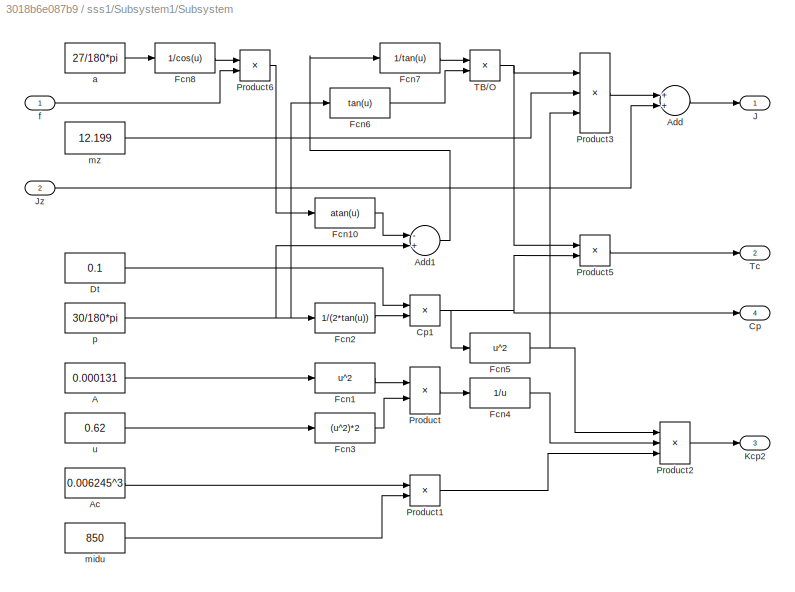
BLOCK [SubSystem] sss1/Subsystem1/Subsystem
  Ports = [2, 4]
  RequestExecContextInheritance = off
BLOCK [Constant] sss1/Subsystem1/Subsystem/A
  Value = 0.000131
BLOCK [Constant] sss1/Subsystem1/Subsystem/Ac
  Value = 0.006245^3
BLOCK [Sum] sss1/Subsystem1/Subsystem/Add
  InputSameDT = off
  OutDataTypeStr = Inherit: Inherit via internal rule
  Ports = [2, 1]
  SaturateOnIntegerOverflow = off
BLOCK [Sum] sss1/Subsystem1/Subsystem/Add1
  InputSameDT = off
  Inputs = -+
  OutDataTypeStr = Inherit: Inherit via internal rule
  Ports = [2, 1]
  SaturateOnIntegerOverflow = off
BLOCK [Outport] sss1/Subsystem1/Subsystem/Cp
  IconDisplay = Port number
  Port = 4
BLOCK [Product] sss1/Subsystem1/Subsystem/Cp1
  InputSameDT = off
  OutDataTypeStr = Inherit: Inherit via internal rule
  Ports = [2, 1]
  SaturateOnIntegerOverflow = off
BLOCK [Constant] sss1/Subsystem1/Subsystem/Dt
  Value = 0.1
BLOCK [Fcn] sss1/Subsystem1/Subsystem/Fcn1
  Expr = u^2
BLOCK [Fcn] sss1/Subsystem1/Subsystem/Fcn10
  Expr = atan(u)
BLOCK [Fcn] sss1/Subsystem1/Subsystem/Fcn2
  Expr = 1/(2*tan(u))
BLOCK [Fcn] sss1/Subsystem1/Subsystem/Fcn3
  Expr = (u^2)*2
BLOCK [Fcn] sss1/Subsystem1/Subsystem/Fcn4
  Expr = 1/u
BLOCK [Fcn] sss1/Subsystem1/Subsystem/Fcn5
  Expr = u^2
BLOCK [Fcn] sss1/Subsystem1/Subsystem/Fcn6
  Expr = tan(u)
BLOCK [Fcn] sss1/Subsystem1/Subsystem/Fcn7
  Expr = 1/tan(u)
BLOCK [Fcn] sss1/Subsystem1/Subsystem/Fcn8
  Expr = 1/cos(u)
BLOCK [Outport] sss1/Subsystem1/Subsystem/J
  IconDisplay = Port number
BLOCK [Inport] sss1/Subsystem1/Subsystem/Jz
  IconDisplay = Port number
  Port = 2
BLOCK [Outport] sss1/Subsystem1/Subsystem/Kcp2
  IconDisplay = Port number
  Port = 3
BLOCK [Product] sss1/Subsystem1/Subsystem/Product
  InputSameDT = off
  OutDataTypeStr = Inherit: Inherit via internal rule
  Ports = [2, 1]
  SaturateOnIntegerOverflow = off
BLOCK [Product] sss1/Subsystem1/Subsystem/Product1
  InputSameDT = off
  OutDataTypeStr = Inherit: Inherit via internal rule
  Ports = [2, 1]
  SaturateOnIntegerOverflow = off
BLOCK [Product] sss1/Subsystem1/Subsystem/Product2
  InputSameDT = off
  Inputs = 3
  OutDataTypeStr = Inherit: Inherit via internal rule
  Ports = [3, 1]
  SaturateOnIntegerOverflow = off
BLOCK [Product] sss1/Subsystem1/Subsystem/Product3
  InputSameDT = off
  Inputs = 3
  OutDataTypeStr = Inherit: Inherit via internal rule
  Ports = [3, 1]
  SaturateOnIntegerOverflow = off
BLOCK [Product] sss1/Subsystem1/Subsystem/Product5
  InputSameDT = off
  OutDataTypeStr = Inherit: Inherit via internal rule
  Ports = [2, 1]
  SaturateOnIntegerOverflow = off
BLOCK [Product] sss1/Subsystem1/Subsystem/Product6
  InputSameDT = off
  OutDataTypeStr = Inherit: Inherit via internal rule
  Ports = [2, 1]
  SaturateOnIntegerOverflow = off
BLOCK [Product] sss1/Subsystem1/Subsystem/TB//O
  InputSameDT = off
  OutDataTypeStr = Inherit: Inherit via internal rule
  Ports = [2, 1]
  SaturateOnIntegerOverflow = off
BLOCK [Outport] sss1/Subsystem1/Subsystem/Tc
  IconDisplay = Port number
  Port = 2
BLOCK [Constant] sss1/Subsystem1/Subsystem/a
  Value = 27/180*pi
BLOCK [Inport] sss1/Subsystem1/Subsystem/f
  IconDisplay = Port number
BLOCK [Constant] sss1/Subsystem1/Subsystem/midu
  Value = 850
BLOCK [Constant] sss1/Subsystem1/Subsystem/mz
  Value = 12.199
BLOCK [Constant] sss1/Subsystem1/Subsystem/p
  Value = 30/180*pi
BLOCK [Constant] sss1/Subsystem1/Subsystem/u
  Value = 0.62
BLOCK [Switch] sss1/Subsystem1/Switch
  InputSameDT = off
  SaturateOnIntegerOverflow = off
BLOCK [Switch] sss1/Subsystem1/Switch1
  InputSameDT = off
  SaturateOnIntegerOverflow = off
BLOCK [Switch] sss1/Subsystem1/Switch2
  InputSameDT = off
  SaturateOnIntegerOverflow = off
BLOCK [Switch] sss1/Subsystem1/Switch3
  InputSameDT = off
  SaturateOnIntegerOverflow = off
BLOCK [Inport] sss1/Subsystem1/Wz
  IconDisplay = Port number
  Port = 5
BLOCK [Inport] sss1/Subsystem1/f
  IconDisplay = Port number
  Port = 4
BLOCK [SubSystem] sss1/Subsystem2
  Ports = [4, 2]
  RequestExecContextInheritance = off
BLOCK [Sum] sss1/Subsystem2/Add
  InputSameDT = off
  Inputs = +-
  OutDataTypeStr = Inherit: Inherit via internal rule
  Ports = [2, 1]
  SaturateOnIntegerOverflow = off
BLOCK [Sum] sss1/Subsystem2/Add1
  InputSameDT = off
  OutDataTypeStr = Inherit: Inherit via internal rule
  Ports = [2, 1]
  SaturateOnIntegerOverflow = off
BLOCK [Inport] sss1/Subsystem2/C2
  IconDisplay = Port number
  Port = 3
BLOCK [Fcn] sss1/Subsystem2/Fcn
  Expr = 30*u/pi
BLOCK [Integrator] sss1/Subsystem2/Integrator
  Ports = [1, 1]
BLOCK [Inport] sss1/Subsystem2/J2
  IconDisplay = Port number
  Port = 2
BLOCK [Outport] sss1/Subsystem2/M2
  IconDisplay = Port number
BLOCK [Inport] sss1/Subsystem2/Mr
  IconDisplay = Port number
BLOCK [Product] sss1/Subsystem2/Product
  InputSameDT = off
  OutDataTypeStr = Inherit: Inherit via internal rule
  Ports = [2, 1]
  RndMeth = Floor
  SaturateOnIntegerOverflow = off
BLOCK [Outport] sss1/Subsystem2/n2
  IconDisplay = Port number
  Port = 2
BLOCK [Inport] sss1/Subsystem2/n2in
  IconDisplay = Port number
  Port = 4
BLOCK [SubSystem] sss1/Subsystem3
  Ports = [3, 3]
  RequestExecContextInheritance = off
BLOCK [Outport] sss1/Subsystem3/C1
  IconDisplay = Port number
  Port = 3
BLOCK [Derivative] sss1/Subsystem3/Derivative
BLOCK [Fcn] sss1/Subsystem3/Fcn2
  Expr = u*pi/30
BLOCK [Inport] sss1/Subsystem3/J1
  IconDisplay = Port number
  Port = 3
BLOCK [Inport] sss1/Subsystem3/M1
  IconDisplay = Port number
BLOCK [Outport] sss1/Subsystem3/Mfzf
  IconDisplay = Port number
BLOCK [Product] sss1/Subsystem3/Product
  InputSameDT = off
  OutDataTypeStr = Inherit: Inherit via internal rule
  Ports = [2, 1]
  RndMeth = Floor
  SaturateOnIntegerOverflow = off
BLOCK [Sum] sss1/Subsystem3/Sum
  IconShape = round
  InputSameDT = off
  Inputs = |+-
  OutDataTypeStr = Inherit: Inherit via internal rule
  Ports = [2, 1]
  SaturateOnIntegerOverflow = off
BLOCK [Inport] sss1/Subsystem3/n1
  IconDisplay = Port number
  Port = 2
BLOCK [Outport] sss1/Subsystem3/wf
  IconDisplay = Port number
  Port = 2
BLOCK [Switch] sss1/Switch
  InputSameDT = off
  SaturateOnIntegerOverflow = off
BLOCK [Switch] sss1/Switch1
  InputSameDT = off
  SaturateOnIntegerOverflow = off
  Threshold = 40
BLOCK [Inport] sss1/n1
  IconDisplay = Port number
  Port = 2
BLOCK [Outport] sss1/n2
  IconDisplay = Port number
  Port = 3
BLOCK [Inport] sss1/n2in
  IconDisplay = Port number
  Port = 3
BLOCK [SubSystem] sss2
  Ports = [3, 3]
  RequestExecContextInheritance = off
BLOCK [Sum] sss2/Add
  InputSameDT = off
  Inputs = +-
  OutDataTypeStr = Inherit: Inherit via internal rule
  Ports = [2, 1]
  SaturateOnIntegerOverflow = off
BLOCK [Clock] sss2/Clock
BLOCK [Constant] sss2/Constant
  Value = 15
BLOCK [Fcn] sss2/Fcn
  Expr = u*pi/30
BLOCK [Outport] sss2/Lr
  IconDisplay = Port number
  Port = 2
BLOCK [Inport] sss2/M1
  IconDisplay = Port number
BLOCK [Outport] sss2/M2
  IconDisplay = Port number
BLOCK [SubSystem] sss2/Subsystem
  Ports = [0, 4]
  RequestExecContextInheritance = off
BLOCK [Constant] sss2/Subsystem/J
  Value = 0.119507
BLOCK [Outport] sss2/Subsystem/J1
  IconDisplay = Port number
BLOCK [Outport] sss2/Subsystem/J2
  IconDisplay = Port number
  Port = 3
BLOCK [Constant] sss2/Subsystem/J2l
  Value = 0.092495
BLOCK [Constant] sss2/Subsystem/Jk
  Value = 0.0694875
BLOCK [Outport] sss2/Subsystem/Jz
  IconDisplay = Port number
  Port = 2
BLOCK [Outport] sss2/Subsystem/f
  IconDisplay = Port number
  Port = 4
BLOCK [Constant] sss2/Subsystem/f1
  Value = 0.6
BLOCK [SubSystem] sss2/Subsystem1
  Ports = [5, 3]
  RequestExecContextInheritance = off
BLOCK [Sum] sss2/Subsystem1/Add
  InputSameDT = off
  Inputs = +-
  OutDataTypeStr = Inherit: Inherit via internal rule
  Ports = [2, 1]
  SaturateOnIntegerOverflow = off
BLOCK [Sum] sss2/Subsystem1/Add1
  InputSameDT = off
  Inputs = +-
  OutDataTypeStr = Inherit: Inherit via internal rule
  Ports = [2, 1]
  SaturateOnIntegerOverflow = off
BLOCK [Sum] sss2/Subsystem1/Add2
  InputSameDT = off
  Inputs = +-
  OutDataTypeStr = Inherit: Inherit via internal rule
  Ports = [2, 1]
  SaturateOnIntegerOverflow = off
BLOCK [Sum] sss2/Subsystem1/Add3
  InputSameDT = off
  OutDataTypeStr = Inherit: Inherit via internal rule
  Ports = [2, 1]
  SaturateOnIntegerOverflow = off
BLOCK [Sum] sss2/Subsystem1/Add4
  InputSameDT = off
  Inputs = +-
  OutDataTypeStr = Inherit: Inherit via internal rule
  Ports = [2, 1]
  SaturateOnIntegerOverflow = off
BLOCK [Inport] sss2/Subsystem1/C1
  IconDisplay = Port number
  Port = 3
BLOCK [Outport] sss2/Subsystem1/C2
  IconDisplay = Port number
  Port = 3
BLOCK [Constant] sss2/Subsystem1/Constant
  Value = 0
BLOCK [Fcn] sss2/Subsystem1/Fcn
  Expr = 1/u
BLOCK [Fcn] sss2/Subsystem1/Fcn1
  Expr = 1+u
BLOCK [Fcn] sss2/Subsystem1/Fcn2
  Expr = u^2
BLOCK [Integrator] sss2/Subsystem1/Integrator
  LimitOutput = on
  LowerSaturationLimit = 0
  Ports = [1, 1]
  UpperSaturationLimit = 15
BLOCK [Inport] sss2/Subsystem1/Jz
  IconDisplay = Port number
  Port = 2
BLOCK [Outport] sss2/Subsystem1/Lr
  IconDisplay = Port number
  Port = 2
BLOCK [Inport] sss2/Subsystem1/Mfzf
  IconDisplay = Port number
BLOCK [Outport] sss2/Subsystem1/Mr
  IconDisplay = Port number
BLOCK [Product] sss2/Subsystem1/Product
  InputSameDT = off
  OutDataTypeStr = Inherit: Inherit via internal rule
  Ports = [2, 1]
  RndMeth = Floor
  SaturateOnIntegerOverflow = off
BLOCK [Product] sss2/Subsystem1/Product1
  InputSameDT = off
  OutDataTypeStr = Inherit: Inherit via internal rule
  Ports = [2, 1]
  RndMeth = Floor
  SaturateOnIntegerOverflow = off
BLOCK [Product] sss2/Subsystem1/Product2
  InputSameDT = off
  OutDataTypeStr = Inherit: Inherit via internal rule
  Ports = [2, 1]
  RndMeth = Floor
  SaturateOnIntegerOverflow = off
BLOCK [Product] sss2/Subsystem1/Product3
  InputSameDT = off
  Inputs = 3
  OutDataTypeStr = Inherit: Inherit via internal rule
  Ports = [3, 1]
  RndMeth = Floor
  SaturateOnIntegerOverflow = off
BLOCK [Product] sss2/Subsystem1/Product4
  InputSameDT = off
  OutDataTypeStr = Inherit: Inherit via internal rule
  Ports = [2, 1]
  RndMeth = Floor
  SaturateOnIntegerOverflow = off
BLOCK [Product] sss2/Subsystem1/Product5
  InputSameDT = off
  OutDataTypeStr = Inherit: Inherit via internal rule
  Ports = [2, 1]
  RndMeth = Floor
  SaturateOnIntegerOverflow = off
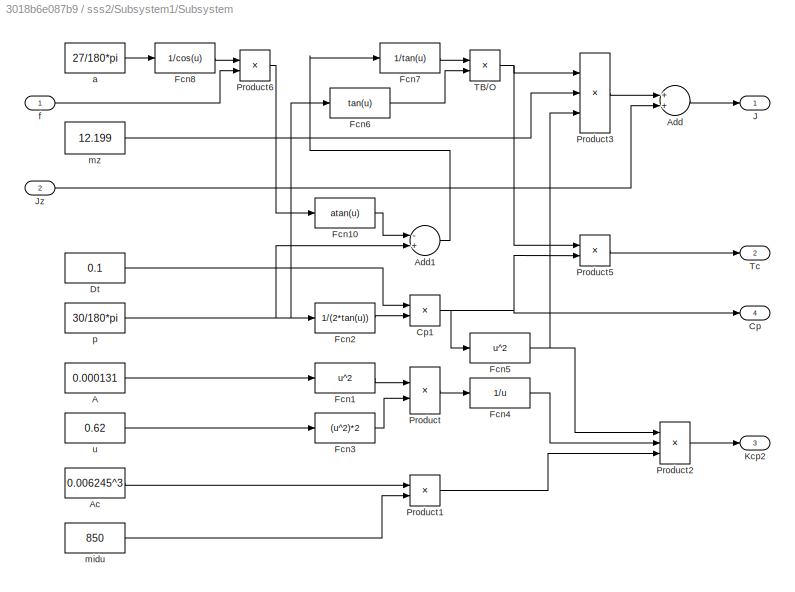
BLOCK [SubSystem] sss2/Subsystem1/Subsystem
  Ports = [2, 4]
  RequestExecContextInheritance = off
BLOCK [Constant] sss2/Subsystem1/Subsystem/A
  Value = 0.000131
BLOCK [Constant] sss2/Subsystem1/Subsystem/Ac
  Value = 0.006245^3
BLOCK [Sum] sss2/Subsystem1/Subsystem/Add
  InputSameDT = off
  OutDataTypeStr = Inherit: Inherit via internal rule
  Ports = [2, 1]
  SaturateOnIntegerOverflow = off
BLOCK [Sum] sss2/Subsystem1/Subsystem/Add1
  InputSameDT = off
  Inputs = -+
  OutDataTypeStr = Inherit: Inherit via internal rule
  Ports = [2, 1]
  SaturateOnIntegerOverflow = off
BLOCK [Outport] sss2/Subsystem1/Subsystem/Cp
  IconDisplay = Port number
  Port = 4
BLOCK [Product] sss2/Subsystem1/Subsystem/Cp1
  InputSameDT = off
  OutDataTypeStr = Inherit: Inherit via internal rule
  Ports = [2, 1]
  SaturateOnIntegerOverflow = off
BLOCK [Constant] sss2/Subsystem1/Subsystem/Dt
  Value = 0.1
BLOCK [Fcn] sss2/Subsystem1/Subsystem/Fcn1
  Expr = u^2
BLOCK [Fcn] sss2/Subsystem1/Subsystem/Fcn10
  Expr = atan(u)
BLOCK [Fcn] sss2/Subsystem1/Subsystem/Fcn2
  Expr = 1/(2*tan(u))
BLOCK [Fcn] sss2/Subsystem1/Subsystem/Fcn3
  Expr = (u^2)*2
BLOCK [Fcn] sss2/Subsystem1/Subsystem/Fcn4
  Expr = 1/u
BLOCK [Fcn] sss2/Subsystem1/Subsystem/Fcn5
  Expr = u^2
BLOCK [Fcn] sss2/Subsystem1/Subsystem/Fcn6
  Expr = tan(u)
BLOCK [Fcn] sss2/Subsystem1/Subsystem/Fcn7
  Expr = 1/tan(u)
BLOCK [Fcn] sss2/Subsystem1/Subsystem/Fcn8
  Expr = 1/cos(u)
BLOCK [Outport] sss2/Subsystem1/Subsystem/J
  IconDisplay = Port number
BLOCK [Inport] sss2/Subsystem1/Subsystem/Jz
  IconDisplay = Port number
  Port = 2
BLOCK [Outport] sss2/Subsystem1/Subsystem/Kcp2
  IconDisplay = Port number
  Port = 3
BLOCK [Product] sss2/Subsystem1/Subsystem/Product
  InputSameDT = off
  OutDataTypeStr = Inherit: Inherit via internal rule
  Ports = [2, 1]
  SaturateOnIntegerOverflow = off
BLOCK [Product] sss2/Subsystem1/Subsystem/Product1
  InputSameDT = off
  OutDataTypeStr = Inherit: Inherit via internal rule
  Ports = [2, 1]
  SaturateOnIntegerOverflow = off
BLOCK [Product] sss2/Subsystem1/Subsystem/Product2
  InputSameDT = off
  Inputs = 3
  OutDataTypeStr = Inherit: Inherit via internal rule
  Ports = [3, 1]
  SaturateOnIntegerOverflow = off
BLOCK [Product] sss2/Subsystem1/Subsystem/Product3
  InputSameDT = off
  Inputs = 3
  OutDataTypeStr = Inherit: Inherit via internal rule
  Ports = [3, 1]
  SaturateOnIntegerOverflow = off
BLOCK [Product] sss2/Subsystem1/Subsystem/Product5
  InputSameDT = off
  OutDataTypeStr = Inherit: Inherit via internal rule
  Ports = [2, 1]
  SaturateOnIntegerOverflow = off
BLOCK [Product] sss2/Subsystem1/Subsystem/Product6
  InputSameDT = off
  OutDataTypeStr = Inherit: Inherit via internal rule
  Ports = [2, 1]
  SaturateOnIntegerOverflow = off
BLOCK [Product] sss2/Subsystem1/Subsystem/TB//O
  InputSameDT = off
  OutDataTypeStr = Inherit: Inherit via internal rule
  Ports = [2, 1]
  SaturateOnIntegerOverflow = off
BLOCK [Outport] sss2/Subsystem1/Subsystem/Tc
  IconDisplay = Port number
  Port = 2
BLOCK [Constant] sss2/Subsystem1/Subsystem/a
  Value = 27/180*pi
BLOCK [Inport] sss2/Subsystem1/Subsystem/f
  IconDisplay = Port number
BLOCK [Constant] sss2/Subsystem1/Subsystem/midu
  Value = 850
BLOCK [Constant] sss2/Subsystem1/Subsystem/mz
  Value = 12.199
BLOCK [Constant] sss2/Subsystem1/Subsystem/p
  Value = 30/180*pi
BLOCK [Constant] sss2/Subsystem1/Subsystem/u
  Value = 0.62
BLOCK [Switch] sss2/Subsystem1/Switch
  InputSameDT = off
  SaturateOnIntegerOverflow = off
BLOCK [Switch] sss2/Subsystem1/Switch1
  InputSameDT = off
  SaturateOnIntegerOverflow = off
BLOCK [Switch] sss2/Subsystem1/Switch2
  InputSameDT = off
  SaturateOnIntegerOverflow = off
BLOCK [Switch] sss2/Subsystem1/Switch3
  InputSameDT = off
  SaturateOnIntegerOverflow = off
BLOCK [Inport] sss2/Subsystem1/Wz
  IconDisplay = Port number
  Port = 5
BLOCK [Inport] sss2/Subsystem1/f
  IconDisplay = Port number
  Port = 4
BLOCK [SubSystem] sss2/Subsystem2
  Ports = [4, 2]
  RequestExecContextInheritance = off
BLOCK [Sum] sss2/Subsystem2/Add
  InputSameDT = off
  Inputs = +-
  OutDataTypeStr = Inherit: Inherit via internal rule
  Ports = [2, 1]
  SaturateOnIntegerOverflow = off
BLOCK [Sum] sss2/Subsystem2/Add1
  InputSameDT = off
  OutDataTypeStr = Inherit: Inherit via internal rule
  Ports = [2, 1]
  SaturateOnIntegerOverflow = off
BLOCK [Inport] sss2/Subsystem2/C2
  IconDisplay = Port number
  Port = 3
BLOCK [Fcn] sss2/Subsystem2/Fcn
  Expr = 30*u/pi
BLOCK [Integrator] sss2/Subsystem2/Integrator
  Ports = [1, 1]
BLOCK [Inport] sss2/Subsystem2/J2
  IconDisplay = Port number
  Port = 2
BLOCK [Outport] sss2/Subsystem2/M2
  IconDisplay = Port number
BLOCK [Inport] sss2/Subsystem2/Mr
  IconDisplay = Port number
BLOCK [Product] sss2/Subsystem2/Product
  InputSameDT = off
  OutDataTypeStr = Inherit: Inherit via internal rule
  Ports = [2, 1]
  RndMeth = Floor
  SaturateOnIntegerOverflow = off
BLOCK [Outport] sss2/Subsystem2/n2
  IconDisplay = Port number
  Port = 2
BLOCK [Inport] sss2/Subsystem2/n2in
  IconDisplay = Port number
  Port = 4
BLOCK [SubSystem] sss2/Subsystem3
  Ports = [3, 3]
  RequestExecContextInheritance = off
BLOCK [Outport] sss2/Subsystem3/C1
  IconDisplay = Port number
  Port = 3
BLOCK [Derivative] sss2/Subsystem3/Derivative
BLOCK [Fcn] sss2/Subsystem3/Fcn2
  Expr = u*pi/30
BLOCK [Inport] sss2/Subsystem3/J1
  IconDisplay = Port number
  Port = 3
BLOCK [Inport] sss2/Subsystem3/M1
  IconDisplay = Port number
BLOCK [Outport] sss2/Subsystem3/Mfzf
  IconDisplay = Port number
BLOCK [Product] sss2/Subsystem3/Product
  InputSameDT = off
  OutDataTypeStr = Inherit: Inherit via internal rule
  Ports = [2, 1]
  RndMeth = Floor
  SaturateOnIntegerOverflow = off
BLOCK [Sum] sss2/Subsystem3/Sum
  IconShape = round
  InputSameDT = off
  Inputs = |+-
  OutDataTypeStr = Inherit: Inherit via internal rule
  Ports = [2, 1]
  SaturateOnIntegerOverflow = off
BLOCK [Inport] sss2/Subsystem3/n1
  IconDisplay = Port number
  Port = 2
BLOCK [Outport] sss2/Subsystem3/wf
  IconDisplay = Port number
  Port = 2
BLOCK [Switch] sss2/Switch
  InputSameDT = off
  SaturateOnIntegerOverflow = off
BLOCK [Switch] sss2/Switch1
  InputSameDT = off
  SaturateOnIntegerOverflow = off
  Threshold = 40
BLOCK [Inport] sss2/n1
  IconDisplay = Port number
  Port = 2
BLOCK [Outport] sss2/n2
  IconDisplay = Port number
  Port = 3
BLOCK [Inport] sss2/n2in
  IconDisplay = Port number
  Port = 3
ANNOTATION gear box: 并车齿轮箱模型
ANNOTATION ranqilunji1/diyawolun/turbine_TN/K2: Cp
ANNOTATION ranqilunji1/diyawolun/turbine_TN/K2: Cv
ANNOTATION ranqilunji1/diyayaqiji/compresser_TN/K2: Cp
ANNOTATION ranqilunji1/diyayaqiji/compresser_TN/K2: Cv
ANNOTATION ranqilunji1/dongliwolun/turbine_TN/K1: Cp
ANNOTATION ranqilunji1/dongliwolun/turbine_TN/K1: Cv
ANNOTATION ranqilunji1/gaoyawolun/turbine_TN/K2: Cp
ANNOTATION ranqilunji1/gaoyawolun/turbine_TN/K2: Cv
ANNOTATION ranqilunji1/gaoyayaqiji/compresser_TN/K: Cp
ANNOTATION ranqilunji1/gaoyayaqiji/compresser_TN/K2: Cp
ANNOTATION ranqilunji1/gaoyayaqiji/compresser_TN/K2: Cv
ANNOTATION ranqilunji2/diyawolun/turbine_TN/K2: Cp
ANNOTATION ranqilunji2/diyawolun/turbine_TN/K2: Cv
ANNOTATION ranqilunji2/diyayaqiji/compresser_TN/K2: Cp
ANNOTATION ranqilunji2/diyayaqiji/compresser_TN/K2: Cv
ANNOTATION ranqilunji2/dongliwolun/turbine_TN/K1: Cp
ANNOTATION ranqilunji2/dongliwolun/turbine_TN/K1: Cv
ANNOTATION ranqilunji2/gaoyawolun/turbine_TN/K2: Cp
ANNOTATION ranqilunji2/gaoyawolun/turbine_TN/K2: Cv
ANNOTATION ranqilunji2/gaoyayaqiji/compresser_TN/K: Cp
ANNOTATION ranqilunji2/gaoyayaqiji/compresser_TN/K2: Cp
ANNOTATION ranqilunji2/gaoyayaqiji/compresser_TN/K2: Cv
ANNOTATION sss1: sss离合器模块
ANNOTATION sss1/Subsystem: 阻尼系数模块
ANNOTATION sss1/Subsystem1: 中间件
ANNOTATION sss1/Subsystem2: 从动件
ANNOTATION sss1/Subsystem3: 主动件
ANNOTATION sss2: sss离合器模块
ANNOTATION sss2/Subsystem: 阻尼系数模块
ANNOTATION sss2/Subsystem1: 中间件
ANNOTATION sss2/Subsystem2: 从动件
ANNOTATION sss2/Subsystem3: 主动件
LINE Mux1:1 -> Scope1:1
LINE Mux:1 -> Scope5:1
LINE Product:1 -> Scope3:1
LINE Sum:1 -> Scope4:1
LINE gear box/Add:1 -> gear box/Product2:1
LINE gear box/Fcn:1 -> gear box/Product2:2
NET gear box/Gain:1 -> gear box/Fcn:1, gear box/n:1
LINE gear box/M1:1 -> gear box/Product:1
LINE gear box/M2:1 -> gear box/Product1:1
LINE gear box/Product1:1 -> gear box/Add:2
LINE gear box/Product2:1 -> gear box/M:1
LINE gear box/Product:1 -> gear box/Add:1
NET gear box/n1:1 -> gear box/Gain:1, gear box/Product:2
LINE gear box/n2:1 -> gear box/Product1:2
NET gear box:1 -> Product:1, Scope2:1
LINE gear box:2 -> Product:2
LINE ranqilunji1/Constant1:1 -> ranqilunji1/Saturation Dynamic:3
LINE ranqilunji1/Constant:1 -> ranqilunji1/Saturation Dynamic:1
LINE ranqilunji1/Divide:1 -> ranqilunji1/Gain1:1
LINE ranqilunji1/Gain1:1 -> ranqilunji1/MPT:1
NET ranqilunji1/Gf:1 -> ranqilunji1/Gf_G1:1, ranqilunji1/ranshaoshi:1, ranqilunji1/ranyouguilv:1
LINE ranqilunji1/Gf_G1:1 -> ranqilunji1/diyayaqiji:1
LINE ranqilunji1/K1:1 -> ranqilunji1/dongliwolun:1
LINE ranqilunji1/K:1 -> ranqilunji1/diyayaqiji:2
NET ranqilunji1/P0:1 -> ranqilunji1/K1:1, ranqilunji1/K:1
LINE ranqilunji1/Ramp:1 -> ranqilunji1/Transport Delay:1
NET ranqilunji1/Saturation Dynamic:1 -> ranqilunji1/Gf:1, ranqilunji1/Gout3:1
LINE ranqilunji1/T1:1 -> ranqilunji1/diyayaqiji:3
LINE ranqilunji1/Transport Delay:1 -> ranqilunji1/Saturation Dynamic:2
NET ranqilunji1/diyawolun/Divide:1 -> ranqilunji1/diyawolun/Scope3:1, ranqilunji1/diyawolun/turbine_TN:1
NET ranqilunji1/diyawolun/G5:1 -> ranqilunji1/diyawolun/G6:1, ranqilunji1/diyawolun/turbine_TN:4
LINE ranqilunji1/diyawolun/P5:1 -> ranqilunji1/diyawolun/Divide:1
LINE ranqilunji1/diyawolun/T5:1 -> ranqilunji1/diyawolun/turbine_TN:3
NET ranqilunji1/diyawolun/n1-p6:1 -> ranqilunji1/diyawolun/Divide:2, ranqilunji1/diyawolun/P6:1, ranqilunji1/diyawolun/Scope1:1
LINE ranqilunji1/diyawolun/n2-etaH:1 -> ranqilunji1/diyawolun/turbine_TN:2
NET ranqilunji1/diyawolun/nL:1 -> ranqilunji1/diyawolun/n1-p6:1, ranqilunji1/diyawolun/n2-etaH:1
LINE ranqilunji1/diyawolun/turbine_TN/Add1:1 -> ranqilunji1/diyawolun/turbine_TN/Product1:1
LINE ranqilunji1/diyawolun/turbine_TN/Add:1 -> ranqilunji1/diyawolun/turbine_TN/Product2:2
NET ranqilunji1/diyawolun/turbine_TN/Constant:1 -> ranqilunji1/diyawolun/turbine_TN/Add1:2, ranqilunji1/diyawolun/turbine_TN/Add:2
LINE ranqilunji1/diyawolun/turbine_TN/Fcn:1 -> ranqilunji1/diyawolun/turbine_TN/Add:1
LINE ranqilunji1/diyawolun/turbine_TN/Gin:1 -> ranqilunji1/diyawolun/turbine_TN/Product:3
LINE ranqilunji1/diyawolun/turbine_TN/K2/Add1:1 -> ranqilunji1/diyawolun/turbine_TN/K2/Divide1:2
NET ranqilunji1/diyawolun/turbine_TN/K2/Add2:1 -> ranqilunji1/diyawolun/turbine_TN/K2/Gain2:1, ranqilunji1/diyawolun/turbine_TN/K2/Gain3:1
NET ranqilunji1/diyawolun/turbine_TN/K2/Add:1 -> ranqilunji1/diyawolun/turbine_TN/K2/Cp:1, ranqilunji1/diyawolun/turbine_TN/K2/Divide1:1
LINE ranqilunji1/diyawolun/turbine_TN/K2/Constant1:1 -> ranqilunji1/diyawolun/turbine_TN/K2/Add1:2
LINE ranqilunji1/diyawolun/turbine_TN/K2/Constant:1 -> ranqilunji1/diyawolun/turbine_TN/K2/Add:2
LINE ranqilunji1/diyawolun/turbine_TN/K2/Divide1:1 -> ranqilunji1/diyawolun/turbine_TN/K2/K:1
LINE ranqilunji1/diyawolun/turbine_TN/K2/Gain2:1 -> ranqilunji1/diyawolun/turbine_TN/K2/Add:1
LINE ranqilunji1/diyawolun/turbine_TN/K2/Gain3:1 -> ranqilunji1/diyawolun/turbine_TN/K2/Add1:1
LINE ranqilunji1/diyawolun/turbine_TN/K2/T1:1 -> ranqilunji1/diyawolun/turbine_TN/K2/Add2:1
LINE ranqilunji1/diyawolun/turbine_TN/K2/Tk:1 -> ranqilunji1/diyawolun/turbine_TN/K2/Add2:2
LINE ranqilunji1/diyawolun/turbine_TN/K2:1 -> ranqilunji1/diyawolun/turbine_TN/m:1
LINE ranqilunji1/diyawolun/turbine_TN/K2:2 -> ranqilunji1/diyawolun/turbine_TN/Product:2
LINE ranqilunji1/diyawolun/turbine_TN/Mux:1 -> ranqilunji1/diyawolun/turbine_TN/Fcn:1
LINE ranqilunji1/diyawolun/turbine_TN/Pi:1 -> ranqilunji1/diyawolun/turbine_TN/Mux:1
LINE ranqilunji1/diyawolun/turbine_TN/Product1:1 -> ranqilunji1/diyawolun/turbine_TN/Tout:1
NET ranqilunji1/diyawolun/turbine_TN/Product2:1 -> ranqilunji1/diyawolun/turbine_TN/Add1:1, ranqilunji1/diyawolun/turbine_TN/Product:1
LINE ranqilunji1/diyawolun/turbine_TN/Product:1 -> ranqilunji1/diyawolun/turbine_TN/Nout:1
NET ranqilunji1/diyawolun/turbine_TN/Tin:1 -> ranqilunji1/diyawolun/turbine_TN/K2:1, ranqilunji1/diyawolun/turbine_TN/Product1:2, ranqilunji1/diyawolun/turbine_TN/Product:4
LINE ranqilunji1/diyawolun/turbine_TN/eta:1 -> ranqilunji1/diyawolun/turbine_TN/Product2:1
LINE ranqilunji1/diyawolun/turbine_TN/m:1 -> ranqilunji1/diyawolun/turbine_TN/Mux:2
NET ranqilunji1/diyawolun/turbine_TN:1 -> ranqilunji1/diyawolun/Scope2:1, ranqilunji1/diyawolun/T6:1
LINE ranqilunji1/diyawolun/turbine_TN:2 -> ranqilunji1/diyawolun/NLT:1
LINE ranqilunji1/diyawolun:1 -> ranqilunji1/dongliwolun:2
LINE ranqilunji1/diyawolun:2 -> ranqilunji1/dongliwolun:3
LINE ranqilunji1/diyawolun:3 -> ranqilunji1/dongliwolun:4
LINE ranqilunji1/diyawolun:4 -> ranqilunji1/shaft-L:2
NET ranqilunji1/diyayaqiji/G1:1 -> ranqilunji1/diyayaqiji/Gain:1, ranqilunji1/diyayaqiji/Subsystem1:1, ranqilunji1/diyayaqiji/compresser_TN:1
LINE ranqilunji1/diyayaqiji/Gain:1 -> ranqilunji1/diyayaqiji/G2:1
NET ranqilunji1/diyayaqiji/P1:1 -> ranqilunji1/diyayaqiji/Product:1, ranqilunji1/diyayaqiji/Subsystem1:2
LINE ranqilunji1/diyayaqiji/Product:1 -> ranqilunji1/diyayaqiji/P2:1
LINE ranqilunji1/diyayaqiji/Subsystem1/Divide1:1 -> ranqilunji1/diyayaqiji/Subsystem1/Divide2:2
LINE ranqilunji1/diyayaqiji/Subsystem1/Divide2:1 -> ranqilunji1/diyayaqiji/Subsystem1/Product:2
LINE ranqilunji1/diyayaqiji/Subsystem1/Divide:1 -> ranqilunji1/diyayaqiji/Subsystem1/Fcn:1
LINE ranqilunji1/diyayaqiji/Subsystem1/Fcn:1 -> ranqilunji1/diyayaqiji/Subsystem1/Product:1
LINE ranqilunji1/diyayaqiji/Subsystem1/Gin:1 -> ranqilunji1/diyayaqiji/Subsystem1/Divide2:1
LINE ranqilunji1/diyayaqiji/Subsystem1/P0:1 -> ranqilunji1/diyayaqiji/Subsystem1/Divide1:2
LINE ranqilunji1/diyayaqiji/Subsystem1/Pin:1 -> ranqilunji1/diyayaqiji/Subsystem1/Divide1:1
LINE ranqilunji1/diyayaqiji/Subsystem1/Product:1 -> ranqilunji1/diyayaqiji/Subsystem1/Gz:1
LINE ranqilunji1/diyayaqiji/Subsystem1/T0:1 -> ranqilunji1/diyayaqiji/Subsystem1/Divide:2
LINE ranqilunji1/diyayaqiji/Subsystem1/Tin:1 -> ranqilunji1/diyayaqiji/Subsystem1/Divide:1
NET ranqilunji1/diyayaqiji/Subsystem1:1 -> ranqilunji1/diyayaqiji/Scope3:1, ranqilunji1/diyayaqiji/Subsystem3:1
NET ranqilunji1/diyayaqiji/Subsystem3/Gz:1 -> ranqilunji1/diyayaqiji/Subsystem3/Lookup Table (2-D)1:2, ranqilunji1/diyayaqiji/Subsystem3/Lookup Table (2-D):2
LINE ranqilunji1/diyayaqiji/Subsystem3/Lookup Table (2-D)1:1 -> ranqilunji1/diyayaqiji/Subsystem3/eta:1
LINE ranqilunji1/diyayaqiji/Subsystem3/Lookup Table (2-D):1 -> ranqilunji1/diyayaqiji/Subsystem3/pi:1
NET ranqilunji1/diyayaqiji/Subsystem3/nz:1 -> ranqilunji1/diyayaqiji/Subsystem3/Lookup Table (2-D)1:1, ranqilunji1/diyayaqiji/Subsystem3/Lookup Table (2-D):1
NET ranqilunji1/diyayaqiji/Subsystem3:1 -> ranqilunji1/diyayaqiji/Product:2, ranqilunji1/diyayaqiji/Scope2:1, ranqilunji1/diyayaqiji/compresser_TN:2
LINE ranqilunji1/diyayaqiji/Subsystem3:2 -> ranqilunji1/diyayaqiji/compresser_TN:3
NET ranqilunji1/diyayaqiji/T1:1 -> ranqilunji1/diyayaqiji/Subsystem1:3, ranqilunji1/diyayaqiji/compresser_TN:4, ranqilunji1/diyayaqiji/zhehe:2
LINE ranqilunji1/diyayaqiji/compresser_TN/Add1:1 -> ranqilunji1/diyayaqiji/compresser_TN/Product1:1
LINE ranqilunji1/diyayaqiji/compresser_TN/Add:1 -> ranqilunji1/diyayaqiji/compresser_TN/Divide:2
NET ranqilunji1/diyayaqiji/compresser_TN/Constant:1 -> ranqilunji1/diyayaqiji/compresser_TN/Add1:2, ranqilunji1/diyayaqiji/compresser_TN/Add:2
NET ranqilunji1/diyayaqiji/compresser_TN/Divide:1 -> ranqilunji1/diyayaqiji/compresser_TN/Add1:1, ranqilunji1/diyayaqiji/compresser_TN/Product:1
LINE ranqilunji1/diyayaqiji/compresser_TN/Fcn:1 -> ranqilunji1/diyayaqiji/compresser_TN/Add:1
LINE ranqilunji1/diyayaqiji/compresser_TN/Gin:1 -> ranqilunji1/diyayaqiji/compresser_TN/Product:3
LINE ranqilunji1/diyayaqiji/compresser_TN/K2/Add1:1 -> ranqilunji1/diyayaqiji/compresser_TN/K2/Divide1:2
NET ranqilunji1/diyayaqiji/compresser_TN/K2/Add2:1 -> ranqilunji1/diyayaqiji/compresser_TN/K2/Gain2:1, ranqilunji1/diyayaqiji/compresser_TN/K2/Gain3:1
NET ranqilunji1/diyayaqiji/compresser_TN/K2/Add:1 -> ranqilunji1/diyayaqiji/compresser_TN/K2/Cp:1, ranqilunji1/diyayaqiji/compresser_TN/K2/Divide1:1
LINE ranqilunji1/diyayaqiji/compresser_TN/K2/Constant1:1 -> ranqilunji1/diyayaqiji/compresser_TN/K2/Add1:2
LINE ranqilunji1/diyayaqiji/compresser_TN/K2/Constant:1 -> ranqilunji1/diyayaqiji/compresser_TN/K2/Add:2
LINE ranqilunji1/diyayaqiji/compresser_TN/K2/Divide1:1 -> ranqilunji1/diyayaqiji/compresser_TN/K2/K:1
LINE ranqilunji1/diyayaqiji/compresser_TN/K2/Gain2:1 -> ranqilunji1/diyayaqiji/compresser_TN/K2/Add:1
LINE ranqilunji1/diyayaqiji/compresser_TN/K2/Gain3:1 -> ranqilunji1/diyayaqiji/compresser_TN/K2/Add1:1
LINE ranqilunji1/diyayaqiji/compresser_TN/K2/T1:1 -> ranqilunji1/diyayaqiji/compresser_TN/K2/Add2:1
LINE ranqilunji1/diyayaqiji/compresser_TN/K2/Tk:1 -> ranqilunji1/diyayaqiji/compresser_TN/K2/Add2:2
LINE ranqilunji1/diyayaqiji/compresser_TN/K2:1 -> ranqilunji1/diyayaqiji/compresser_TN/m:1
LINE ranqilunji1/diyayaqiji/compresser_TN/K2:2 -> ranqilunji1/diyayaqiji/compresser_TN/Product:2
LINE ranqilunji1/diyayaqiji/compresser_TN/Mux:1 -> ranqilunji1/diyayaqiji/compresser_TN/Fcn:1
LINE ranqilunji1/diyayaqiji/compresser_TN/Pi:1 -> ranqilunji1/diyayaqiji/compresser_TN/Mux:1
LINE ranqilunji1/diyayaqiji/compresser_TN/Product1:1 -> ranqilunji1/diyayaqiji/compresser_TN/Tout:1
LINE ranqilunji1/diyayaqiji/compresser_TN/Product:1 -> ranqilunji1/diyayaqiji/compresser_TN/Nout:1
NET ranqilunji1/diyayaqiji/compresser_TN/Tin:1 -> ranqilunji1/diyayaqiji/compresser_TN/K2:1, ranqilunji1/diyayaqiji/compresser_TN/Product1:2, ranqilunji1/diyayaqiji/compresser_TN/Product:4
LINE ranqilunji1/diyayaqiji/compresser_TN/eta:1 -> ranqilunji1/diyayaqiji/compresser_TN/Divide:1
LINE ranqilunji1/diyayaqiji/compresser_TN/m:1 -> ranqilunji1/diyayaqiji/compresser_TN/Mux:2
NET ranqilunji1/diyayaqiji/compresser_TN:1 -> ranqilunji1/diyayaqiji/Scope4:1, ranqilunji1/diyayaqiji/T2:1
LINE ranqilunji1/diyayaqiji/compresser_TN:2 -> ranqilunji1/diyayaqiji/NLC:1
LINE ranqilunji1/diyayaqiji/nL:1 -> ranqilunji1/diyayaqiji/zhehe:1
LINE ranqilunji1/diyayaqiji/zhehe/Divide:1 -> ranqilunji1/diyayaqiji/zhehe/nz:1
LINE ranqilunji1/diyayaqiji/zhehe/Fcn:1 -> ranqilunji1/diyayaqiji/zhehe/Divide:2
LINE ranqilunji1/diyayaqiji/zhehe/Tin:1 -> ranqilunji1/diyayaqiji/zhehe/Fcn:1
LINE ranqilunji1/diyayaqiji/zhehe/n:1 -> ranqilunji1/diyayaqiji/zhehe/Divide:1
NET ranqilunji1/diyayaqiji/zhehe:1 -> ranqilunji1/diyayaqiji/Scope1:1, ranqilunji1/diyayaqiji/Subsystem3:2
LINE ranqilunji1/diyayaqiji:1 -> ranqilunji1/gaoyayaqiji:1
LINE ranqilunji1/diyayaqiji:2 -> ranqilunji1/gaoyayaqiji:2
LINE ranqilunji1/diyayaqiji:3 -> ranqilunji1/gaoyayaqiji:3
LINE ranqilunji1/diyayaqiji:4 -> ranqilunji1/shaft-L:1
NET ranqilunji1/dongliwolun/Divide:1 -> ranqilunji1/dongliwolun/Pi-eta1:1, ranqilunji1/dongliwolun/Scope6:1, ranqilunji1/dongliwolun/turbine_TN:1
NET ranqilunji1/dongliwolun/G6:1 -> ranqilunji1/dongliwolun/G7:1, ranqilunji1/dongliwolun/turbine_TN:3
LINE ranqilunji1/dongliwolun/P6:1 -> ranqilunji1/dongliwolun/Divide:1
LINE ranqilunji1/dongliwolun/P7:1 -> ranqilunji1/dongliwolun/Divide:2
LINE ranqilunji1/dongliwolun/Pi-eta1:1 -> ranqilunji1/dongliwolun/turbine_TN:2
LINE ranqilunji1/dongliwolun/Pi-eta2:1 -> ranqilunji1/dongliwolun/nPT:1
LINE ranqilunji1/dongliwolun/T6:1 -> ranqilunji1/dongliwolun/turbine_TN:4
LINE ranqilunji1/dongliwolun/turbine_TN/Add1:1 -> ranqilunji1/dongliwolun/turbine_TN/Product1:1
LINE ranqilunji1/dongliwolun/turbine_TN/Add:1 -> ranqilunji1/dongliwolun/turbine_TN/Product2:2
NET ranqilunji1/dongliwolun/turbine_TN/Constant:1 -> ranqilunji1/dongliwolun/turbine_TN/Add1:2, ranqilunji1/dongliwolun/turbine_TN/Add:2
LINE ranqilunji1/dongliwolun/turbine_TN/Fcn:1 -> ranqilunji1/dongliwolun/turbine_TN/Add:1
LINE ranqilunji1/dongliwolun/turbine_TN/Gin:1 -> ranqilunji1/dongliwolun/turbine_TN/Product:3
LINE ranqilunji1/dongliwolun/turbine_TN/K1/Add1:1 -> ranqilunji1/dongliwolun/turbine_TN/K1/Divide1:2
NET ranqilunji1/dongliwolun/turbine_TN/K1/Add2:1 -> ranqilunji1/dongliwolun/turbine_TN/K1/Gain2:1, ranqilunji1/dongliwolun/turbine_TN/K1/Gain3:1
NET ranqilunji1/dongliwolun/turbine_TN/K1/Add:1 -> ranqilunji1/dongliwolun/turbine_TN/K1/Cp:1, ranqilunji1/dongliwolun/turbine_TN/K1/Divide1:1
LINE ranqilunji1/dongliwolun/turbine_TN/K1/Constant1:1 -> ranqilunji1/dongliwolun/turbine_TN/K1/Add1:2
LINE ranqilunji1/dongliwolun/turbine_TN/K1/Constant:1 -> ranqilunji1/dongliwolun/turbine_TN/K1/Add:2
LINE ranqilunji1/dongliwolun/turbine_TN/K1/Divide1:1 -> ranqilunji1/dongliwolun/turbine_TN/K1/K:1
LINE ranqilunji1/dongliwolun/turbine_TN/K1/Gain2:1 -> ranqilunji1/dongliwolun/turbine_TN/K1/Add:1
LINE ranqilunji1/dongliwolun/turbine_TN/K1/Gain3:1 -> ranqilunji1/dongliwolun/turbine_TN/K1/Add1:1
LINE ranqilunji1/dongliwolun/turbine_TN/K1/T1:1 -> ranqilunji1/dongliwolun/turbine_TN/K1/Add2:1
LINE ranqilunji1/dongliwolun/turbine_TN/K1/Tk:1 -> ranqilunji1/dongliwolun/turbine_TN/K1/Add2:2
LINE ranqilunji1/dongliwolun/turbine_TN/K1:1 -> ranqilunji1/dongliwolun/turbine_TN/m:1
LINE ranqilunji1/dongliwolun/turbine_TN/K1:2 -> ranqilunji1/dongliwolun/turbine_TN/Product:2
LINE ranqilunji1/dongliwolun/turbine_TN/Mux:1 -> ranqilunji1/dongliwolun/turbine_TN/Fcn:1
LINE ranqilunji1/dongliwolun/turbine_TN/Pi:1 -> ranqilunji1/dongliwolun/turbine_TN/Mux:1
LINE ranqilunji1/dongliwolun/turbine_TN/Product1:1 -> ranqilunji1/dongliwolun/turbine_TN/Tout:1
NET ranqilunji1/dongliwolun/turbine_TN/Product2:1 -> ranqilunji1/dongliwolun/turbine_TN/Add1:1, ranqilunji1/dongliwolun/turbine_TN/Product:1
LINE ranqilunji1/dongliwolun/turbine_TN/Product:1 -> ranqilunji1/dongliwolun/turbine_TN/Nout:1
NET ranqilunji1/dongliwolun/turbine_TN/Tin:1 -> ranqilunji1/dongliwolun/turbine_TN/K1:1, ranqilunji1/dongliwolun/turbine_TN/Product1:2, ranqilunji1/dongliwolun/turbine_TN/Product:4
LINE ranqilunji1/dongliwolun/turbine_TN/eta:1 -> ranqilunji1/dongliwolun/turbine_TN/Product2:1
LINE ranqilunji1/dongliwolun/turbine_TN/m:1 -> ranqilunji1/dongliwolun/turbine_TN/Mux:2
LINE ranqilunji1/dongliwolun/turbine_TN:1 -> ranqilunji1/dongliwolun/T7:1
NET ranqilunji1/dongliwolun/turbine_TN:2 -> ranqilunji1/dongliwolun/NPT:1, ranqilunji1/dongliwolun/Pi-eta2:1
LINE ranqilunji1/dongliwolun:1 -> ranqilunji1/Out1:1
NET ranqilunji1/dongliwolun:2 -> ranqilunji1/Out2:1, ranqilunji1/Scope:1
NET ranqilunji1/dongliwolun:3 -> ranqilunji1/Divide:1, ranqilunji1/NPT:1, ranqilunji1/Scope1:1
NET ranqilunji1/dongliwolun:4 -> ranqilunji1/Divide:2, ranqilunji1/nPT:1
NET ranqilunji1/gaoyawolun/Divide:1 -> ranqilunji1/gaoyawolun/pi:1, ranqilunji1/gaoyawolun/turbine_TN:1
NET ranqilunji1/gaoyawolun/G4:1 -> ranqilunji1/gaoyawolun/G5:1, ranqilunji1/gaoyawolun/turbine_TN:4
LINE ranqilunji1/gaoyawolun/P4:1 -> ranqilunji1/gaoyawolun/Divide:1
LINE ranqilunji1/gaoyawolun/T4:1 -> ranqilunji1/gaoyawolun/turbine_TN:3
LINE ranqilunji1/gaoyawolun/n2-etaH:1 -> ranqilunji1/gaoyawolun/turbine_TN:2
NET ranqilunji1/gaoyawolun/n2-p5:1 -> ranqilunji1/gaoyawolun/Divide:2, ranqilunji1/gaoyawolun/P5:1, ranqilunji1/gaoyawolun/Scope3:1
NET ranqilunji1/gaoyawolun/nH:1 -> ranqilunji1/gaoyawolun/n2-etaH:1, ranqilunji1/gaoyawolun/n2-p5:1, ranqilunji1/gaoyawolun/pi2:1
LINE ranqilunji1/gaoyawolun/turbine_TN/Add1:1 -> ranqilunji1/gaoyawolun/turbine_TN/Product1:1
LINE ranqilunji1/gaoyawolun/turbine_TN/Add:1 -> ranqilunji1/gaoyawolun/turbine_TN/Product2:2
NET ranqilunji1/gaoyawolun/turbine_TN/Constant:1 -> ranqilunji1/gaoyawolun/turbine_TN/Add1:2, ranqilunji1/gaoyawolun/turbine_TN/Add:2
LINE ranqilunji1/gaoyawolun/turbine_TN/Fcn:1 -> ranqilunji1/gaoyawolun/turbine_TN/Add:1
LINE ranqilunji1/gaoyawolun/turbine_TN/Gin:1 -> ranqilunji1/gaoyawolun/turbine_TN/Product:3
LINE ranqilunji1/gaoyawolun/turbine_TN/K2/Add1:1 -> ranqilunji1/gaoyawolun/turbine_TN/K2/Divide1:2
NET ranqilunji1/gaoyawolun/turbine_TN/K2/Add2:1 -> ranqilunji1/gaoyawolun/turbine_TN/K2/Gain2:1, ranqilunji1/gaoyawolun/turbine_TN/K2/Gain3:1
NET ranqilunji1/gaoyawolun/turbine_TN/K2/Add:1 -> ranqilunji1/gaoyawolun/turbine_TN/K2/Cp:1, ranqilunji1/gaoyawolun/turbine_TN/K2/Divide1:1
LINE ranqilunji1/gaoyawolun/turbine_TN/K2/Constant1:1 -> ranqilunji1/gaoyawolun/turbine_TN/K2/Add1:2
LINE ranqilunji1/gaoyawolun/turbine_TN/K2/Constant:1 -> ranqilunji1/gaoyawolun/turbine_TN/K2/Add:2
LINE ranqilunji1/gaoyawolun/turbine_TN/K2/Divide1:1 -> ranqilunji1/gaoyawolun/turbine_TN/K2/K:1
LINE ranqilunji1/gaoyawolun/turbine_TN/K2/Gain2:1 -> ranqilunji1/gaoyawolun/turbine_TN/K2/Add:1
LINE ranqilunji1/gaoyawolun/turbine_TN/K2/Gain3:1 -> ranqilunji1/gaoyawolun/turbine_TN/K2/Add1:1
LINE ranqilunji1/gaoyawolun/turbine_TN/K2/T1:1 -> ranqilunji1/gaoyawolun/turbine_TN/K2/Add2:1
LINE ranqilunji1/gaoyawolun/turbine_TN/K2/Tk:1 -> ranqilunji1/gaoyawolun/turbine_TN/K2/Add2:2
LINE ranqilunji1/gaoyawolun/turbine_TN/K2:1 -> ranqilunji1/gaoyawolun/turbine_TN/m:1
LINE ranqilunji1/gaoyawolun/turbine_TN/K2:2 -> ranqilunji1/gaoyawolun/turbine_TN/Product:2
LINE ranqilunji1/gaoyawolun/turbine_TN/Mux:1 -> ranqilunji1/gaoyawolun/turbine_TN/Fcn:1
LINE ranqilunji1/gaoyawolun/turbine_TN/Pi:1 -> ranqilunji1/gaoyawolun/turbine_TN/Mux:1
LINE ranqilunji1/gaoyawolun/turbine_TN/Product1:1 -> ranqilunji1/gaoyawolun/turbine_TN/Tout:1
NET ranqilunji1/gaoyawolun/turbine_TN/Product2:1 -> ranqilunji1/gaoyawolun/turbine_TN/Add1:1, ranqilunji1/gaoyawolun/turbine_TN/Product:1
LINE ranqilunji1/gaoyawolun/turbine_TN/Product:1 -> ranqilunji1/gaoyawolun/turbine_TN/Nout:1
NET ranqilunji1/gaoyawolun/turbine_TN/Tin:1 -> ranqilunji1/gaoyawolun/turbine_TN/K2:1, ranqilunji1/gaoyawolun/turbine_TN/Product1:2, ranqilunji1/gaoyawolun/turbine_TN/Product:4
LINE ranqilunji1/gaoyawolun/turbine_TN/eta:1 -> ranqilunji1/gaoyawolun/turbine_TN/Product2:1
LINE ranqilunji1/gaoyawolun/turbine_TN/m:1 -> ranqilunji1/gaoyawolun/turbine_TN/Mux:2
NET ranqilunji1/gaoyawolun/turbine_TN:1 -> ranqilunji1/gaoyawolun/T5:1, ranqilunji1/gaoyawolun/pi1:1
LINE ranqilunji1/gaoyawolun/turbine_TN:2 -> ranqilunji1/gaoyawolun/NHT:1
LINE ranqilunji1/gaoyawolun:1 -> ranqilunji1/diyawolun:1
LINE ranqilunji1/gaoyawolun:2 -> ranqilunji1/diyawolun:2
LINE ranqilunji1/gaoyawolun:3 -> ranqilunji1/diyawolun:3
LINE ranqilunji1/gaoyawolun:4 -> ranqilunji1/shaft-H:2
NET ranqilunji1/gaoyayaqiji/G2:1 -> ranqilunji1/gaoyayaqiji/Gain:1, ranqilunji1/gaoyayaqiji/Scope6:1, ranqilunji1/gaoyayaqiji/Subsystem1:1, ranqilunji1/gaoyayaqiji/compresser_TN:1
LINE ranqilunji1/gaoyayaqiji/Gain:1 -> ranqilunji1/gaoyayaqiji/G3:1
NET ranqilunji1/gaoyayaqiji/P2:1 -> ranqilunji1/gaoyayaqiji/Product:1, ranqilunji1/gaoyayaqiji/Subsystem1:2
LINE ranqilunji1/gaoyayaqiji/Product:1 -> ranqilunji1/gaoyayaqiji/P3:1
LINE ranqilunji1/gaoyayaqiji/Subsystem1/Divide1:1 -> ranqilunji1/gaoyayaqiji/Subsystem1/Divide2:2
LINE ranqilunji1/gaoyayaqiji/Subsystem1/Divide2:1 -> ranqilunji1/gaoyayaqiji/Subsystem1/Product:2
LINE ranqilunji1/gaoyayaqiji/Subsystem1/Divide:1 -> ranqilunji1/gaoyayaqiji/Subsystem1/Fcn:1
LINE ranqilunji1/gaoyayaqiji/Subsystem1/Fcn:1 -> ranqilunji1/gaoyayaqiji/Subsystem1/Product:1
LINE ranqilunji1/gaoyayaqiji/Subsystem1/Gin:1 -> ranqilunji1/gaoyayaqiji/Subsystem1/Divide2:1
LINE ranqilunji1/gaoyayaqiji/Subsystem1/P0:1 -> ranqilunji1/gaoyayaqiji/Subsystem1/Divide1:2
LINE ranqilunji1/gaoyayaqiji/Subsystem1/Pin:1 -> ranqilunji1/gaoyayaqiji/Subsystem1/Divide1:1
LINE ranqilunji1/gaoyayaqiji/Subsystem1/Product:1 -> ranqilunji1/gaoyayaqiji/Subsystem1/Gz:1
LINE ranqilunji1/gaoyayaqiji/Subsystem1/T0:1 -> ranqilunji1/gaoyayaqiji/Subsystem1/Divide:2
LINE ranqilunji1/gaoyayaqiji/Subsystem1/Tin:1 -> ranqilunji1/gaoyayaqiji/Subsystem1/Divide:1
NET ranqilunji1/gaoyayaqiji/Subsystem1:1 -> ranqilunji1/gaoyayaqiji/Scope1:1, ranqilunji1/gaoyayaqiji/Subsystem2:1
NET ranqilunji1/gaoyayaqiji/Subsystem2/Gz:1 -> ranqilunji1/gaoyayaqiji/Subsystem2/Lookup Table (2-D)1:2, ranqilunji1/gaoyayaqiji/Subsystem2/Lookup Table (2-D):2
LINE ranqilunji1/gaoyayaqiji/Subsystem2/Lookup Table (2-D)1:1 -> ranqilunji1/gaoyayaqiji/Subsystem2/eta:1
LINE ranqilunji1/gaoyayaqiji/Subsystem2/Lookup Table (2-D):1 -> ranqilunji1/gaoyayaqiji/Subsystem2/pi:1
NET ranqilunji1/gaoyayaqiji/Subsystem2/nz:1 -> ranqilunji1/gaoyayaqiji/Subsystem2/Lookup Table (2-D)1:1, ranqilunji1/gaoyayaqiji/Subsystem2/Lookup Table (2-D):1
NET ranqilunji1/gaoyayaqiji/Subsystem2:1 -> ranqilunji1/gaoyayaqiji/Product:2, ranqilunji1/gaoyayaqiji/Scope5:1, ranqilunji1/gaoyayaqiji/compresser_TN:2
NET ranqilunji1/gaoyayaqiji/Subsystem2:2 -> ranqilunji1/gaoyayaqiji/Scope3:1, ranqilunji1/gaoyayaqiji/compresser_TN:3
NET ranqilunji1/gaoyayaqiji/T2:1 -> ranqilunji1/gaoyayaqiji/Subsystem1:3, ranqilunji1/gaoyayaqiji/compresser_TN:4, ranqilunji1/gaoyayaqiji/zhehe:2
LINE ranqilunji1/gaoyayaqiji/compresser_TN/Add1:1 -> ranqilunji1/gaoyayaqiji/compresser_TN/Product1:1
LINE ranqilunji1/gaoyayaqiji/compresser_TN/Add:1 -> ranqilunji1/gaoyayaqiji/compresser_TN/Divide:2
NET ranqilunji1/gaoyayaqiji/compresser_TN/Constant:1 -> ranqilunji1/gaoyayaqiji/compresser_TN/Add1:2, ranqilunji1/gaoyayaqiji/compresser_TN/Add:2
NET ranqilunji1/gaoyayaqiji/compresser_TN/Divide:1 -> ranqilunji1/gaoyayaqiji/compresser_TN/Add1:1, ranqilunji1/gaoyayaqiji/compresser_TN/Product:1
LINE ranqilunji1/gaoyayaqiji/compresser_TN/Fcn:1 -> ranqilunji1/gaoyayaqiji/compresser_TN/Add:1
LINE ranqilunji1/gaoyayaqiji/compresser_TN/Gin:1 -> ranqilunji1/gaoyayaqiji/compresser_TN/Product:3
LINE ranqilunji1/gaoyayaqiji/compresser_TN/K/Add2:1 -> ranqilunji1/gaoyayaqiji/compresser_TN/K/Gain2:1
LINE ranqilunji1/gaoyayaqiji/compresser_TN/K/Add:1 -> ranqilunji1/gaoyayaqiji/compresser_TN/K/Cp:1
LINE ranqilunji1/gaoyayaqiji/compresser_TN/K/Constant:1 -> ranqilunji1/gaoyayaqiji/compresser_TN/K/Add:2
LINE ranqilunji1/gaoyayaqiji/compresser_TN/K/Gain2:1 -> ranqilunji1/gaoyayaqiji/compresser_TN/K/Add:1
LINE ranqilunji1/gaoyayaqiji/compresser_TN/K/T1:1 -> ranqilunji1/gaoyayaqiji/compresser_TN/K/Add2:1
LINE ranqilunji1/gaoyayaqiji/compresser_TN/K/Tk:1 -> ranqilunji1/gaoyayaqiji/compresser_TN/K/Add2:2
LINE ranqilunji1/gaoyayaqiji/compresser_TN/K2/Add1:1 -> ranqilunji1/gaoyayaqiji/compresser_TN/K2/Divide1:2
NET ranqilunji1/gaoyayaqiji/compresser_TN/K2/Add2:1 -> ranqilunji1/gaoyayaqiji/compresser_TN/K2/Gain2:1, ranqilunji1/gaoyayaqiji/compresser_TN/K2/Gain3:1
NET ranqilunji1/gaoyayaqiji/compresser_TN/K2/Add:1 -> ranqilunji1/gaoyayaqiji/compresser_TN/K2/Cp:1, ranqilunji1/gaoyayaqiji/compresser_TN/K2/Divide1:1
LINE ranqilunji1/gaoyayaqiji/compresser_TN/K2/Constant1:1 -> ranqilunji1/gaoyayaqiji/compresser_TN/K2/Add1:2
LINE ranqilunji1/gaoyayaqiji/compresser_TN/K2/Constant:1 -> ranqilunji1/gaoyayaqiji/compresser_TN/K2/Add:2
LINE ranqilunji1/gaoyayaqiji/compresser_TN/K2/Divide1:1 -> ranqilunji1/gaoyayaqiji/compresser_TN/K2/K:1
LINE ranqilunji1/gaoyayaqiji/compresser_TN/K2/Gain2:1 -> ranqilunji1/gaoyayaqiji/compresser_TN/K2/Add:1
LINE ranqilunji1/gaoyayaqiji/compresser_TN/K2/Gain3:1 -> ranqilunji1/gaoyayaqiji/compresser_TN/K2/Add1:1
LINE ranqilunji1/gaoyayaqiji/compresser_TN/K2/T1:1 -> ranqilunji1/gaoyayaqiji/compresser_TN/K2/Add2:1
LINE ranqilunji1/gaoyayaqiji/compresser_TN/K2/Tk:1 -> ranqilunji1/gaoyayaqiji/compresser_TN/K2/Add2:2
LINE ranqilunji1/gaoyayaqiji/compresser_TN/K2:1 -> ranqilunji1/gaoyayaqiji/compresser_TN/m:1
LINE ranqilunji1/gaoyayaqiji/compresser_TN/K2:2 -> ranqilunji1/gaoyayaqiji/compresser_TN/Product:2
LINE ranqilunji1/gaoyayaqiji/compresser_TN/Mux:1 -> ranqilunji1/gaoyayaqiji/compresser_TN/Fcn:1
LINE ranqilunji1/gaoyayaqiji/compresser_TN/Pi:1 -> ranqilunji1/gaoyayaqiji/compresser_TN/Mux:1
NET ranqilunji1/gaoyayaqiji/compresser_TN/Product1:1 -> ranqilunji1/gaoyayaqiji/compresser_TN/Scope3:1, ranqilunji1/gaoyayaqiji/compresser_TN/Tout:1
LINE ranqilunji1/gaoyayaqiji/compresser_TN/Product:1 -> ranqilunji1/gaoyayaqiji/compresser_TN/Nout:1
NET ranqilunji1/gaoyayaqiji/compresser_TN/Tin:1 -> ranqilunji1/gaoyayaqiji/compresser_TN/K2:1, ranqilunji1/gaoyayaqiji/compresser_TN/Product1:2, ranqilunji1/gaoyayaqiji/compresser_TN/Product:4
LINE ranqilunji1/gaoyayaqiji/compresser_TN/eta:1 -> ranqilunji1/gaoyayaqiji/compresser_TN/Divide:1
LINE ranqilunji1/gaoyayaqiji/compresser_TN/m:1 -> ranqilunji1/gaoyayaqiji/compresser_TN/Mux:2
NET ranqilunji1/gaoyayaqiji/compresser_TN:1 -> ranqilunji1/gaoyayaqiji/Scope2:1, ranqilunji1/gaoyayaqiji/T3:1
LINE ranqilunji1/gaoyayaqiji/compresser_TN:2 -> ranqilunji1/gaoyayaqiji/NHC:1
LINE ranqilunji1/gaoyayaqiji/nH:1 -> ranqilunji1/gaoyayaqiji/zhehe:1
LINE ranqilunji1/gaoyayaqiji/zhehe/Divide:1 -> ranqilunji1/gaoyayaqiji/zhehe/nz:1
LINE ranqilunji1/gaoyayaqiji/zhehe/Fcn:1 -> ranqilunji1/gaoyayaqiji/zhehe/Divide:2
LINE ranqilunji1/gaoyayaqiji/zhehe/Tin:1 -> ranqilunji1/gaoyayaqiji/zhehe/Fcn:1
LINE ranqilunji1/gaoyayaqiji/zhehe/n:1 -> ranqilunji1/gaoyayaqiji/zhehe/Divide:1
NET ranqilunji1/gaoyayaqiji/zhehe:1 -> ranqilunji1/gaoyayaqiji/Scope4:1, ranqilunji1/gaoyayaqiji/Subsystem2:2
LINE ranqilunji1/gaoyayaqiji:1 -> ranqilunji1/ranshaoshi:2
LINE ranqilunji1/gaoyayaqiji:2 -> ranqilunji1/ranshaoshi:3
LINE ranqilunji1/gaoyayaqiji:3 -> ranqilunji1/ranshaoshi:4
LINE ranqilunji1/gaoyayaqiji:4 -> ranqilunji1/shaft-H:1
LINE ranqilunji1/ranshaoshi/Add2:1 -> ranqilunji1/ranshaoshi/Gain2:1
LINE ranqilunji1/ranshaoshi/Add:1 -> ranqilunji1/ranshaoshi/Divide1:2
LINE ranqilunji1/ranshaoshi/Constant:1 -> ranqilunji1/ranshaoshi/Add:2
LINE ranqilunji1/ranshaoshi/Divide1:1 -> ranqilunji1/ranshaoshi/Product:2
LINE ranqilunji1/ranshaoshi/Divide:1 -> ranqilunji1/ranshaoshi/Product:1
LINE ranqilunji1/ranshaoshi/G3:1 -> ranqilunji1/ranshaoshi/Subtract:2
LINE ranqilunji1/ranshaoshi/Gain2:1 -> ranqilunji1/ranshaoshi/Add:1
NET ranqilunji1/ranshaoshi/Gf:1 -> ranqilunji1/ranshaoshi/Divide:1, ranqilunji1/ranshaoshi/Subtract:1
LINE ranqilunji1/ranshaoshi/Hu:1 -> ranqilunji1/ranshaoshi/etab:1
LINE ranqilunji1/ranshaoshi/K1:1 -> ranqilunji1/ranshaoshi/P4:1
LINE ranqilunji1/ranshaoshi/K2:1 -> ranqilunji1/ranshaoshi/G4:1
LINE ranqilunji1/ranshaoshi/P3:1 -> ranqilunji1/ranshaoshi/K1:1
LINE ranqilunji1/ranshaoshi/Product:1 -> ranqilunji1/ranshaoshi/Sum:1
NET ranqilunji1/ranshaoshi/Subtract:1 -> ranqilunji1/ranshaoshi/Divide:2, ranqilunji1/ranshaoshi/K2:1
LINE ranqilunji1/ranshaoshi/Sum:1 -> ranqilunji1/ranshaoshi/T4:1
NET ranqilunji1/ranshaoshi/T3:1 -> ranqilunji1/ranshaoshi/Add2:2, ranqilunji1/ranshaoshi/Sum:2
LINE ranqilunji1/ranshaoshi/Tk:1 -> ranqilunji1/ranshaoshi/Add2:1
LINE ranqilunji1/ranshaoshi/etab:1 -> ranqilunji1/ranshaoshi/Divide1:1
LINE ranqilunji1/ranshaoshi:1 -> ranqilunji1/gaoyawolun:1
LINE ranqilunji1/ranshaoshi:2 -> ranqilunji1/gaoyawolun:2
LINE ranqilunji1/ranshaoshi:3 -> ranqilunji1/gaoyawolun:3
LINE ranqilunji1/shaft-H/Add:1 -> ranqilunji1/shaft-H/Divide:1
LINE ranqilunji1/shaft-H/Divide:1 -> ranqilunji1/shaft-H/Integrator:1
LINE ranqilunji1/shaft-H/Fcn1:1 -> ranqilunji1/shaft-H/Divide:3
LINE ranqilunji1/shaft-H/Fcn:1 -> ranqilunji1/shaft-H/Gain:1
LINE ranqilunji1/shaft-H/Gain3:1 -> ranqilunji1/shaft-H/nH:1
LINE ranqilunji1/shaft-H/Gain:1 -> ranqilunji1/shaft-H/Divide:2
NET ranqilunji1/shaft-H/Integrator:1 -> ranqilunji1/shaft-H/Fcn1:1, ranqilunji1/shaft-H/Gain3:1
LINE ranqilunji1/shaft-H/J:1 -> ranqilunji1/shaft-H/Fcn:1
LINE ranqilunji1/shaft-H/NT:1 -> ranqilunji1/shaft-H/Add:2
LINE ranqilunji1/shaft-H/Nc:1 -> ranqilunji1/shaft-H/Add:1
NET ranqilunji1/shaft-H:1 -> ranqilunji1/Gout1:1, ranqilunji1/gaoyawolun:4, ranqilunji1/gaoyayaqiji:4
LINE ranqilunji1/shaft-L/Add:1 -> ranqilunji1/shaft-L/Divide:1
LINE ranqilunji1/shaft-L/Constant1:1 -> ranqilunji1/shaft-L/Saturation Dynamic:3
LINE ranqilunji1/shaft-L/Constant:1 -> ranqilunji1/shaft-L/Saturation Dynamic:1
LINE ranqilunji1/shaft-L/Divide:1 -> ranqilunji1/shaft-L/Integrator:1
LINE ranqilunji1/shaft-L/Fcn1:1 -> ranqilunji1/shaft-L/Divide:3
LINE ranqilunji1/shaft-L/Fcn:1 -> ranqilunji1/shaft-L/Gain:1
NET ranqilunji1/shaft-L/Gain2:1 -> ranqilunji1/shaft-L/Scope:1, ranqilunji1/shaft-L/nL:1
LINE ranqilunji1/shaft-L/Gain:1 -> ranqilunji1/shaft-L/Divide:2
NET ranqilunji1/shaft-L/Integrator:1 -> ranqilunji1/shaft-L/Fcn1:1, ranqilunji1/shaft-L/Gain2:1
LINE ranqilunji1/shaft-L/J:1 -> ranqilunji1/shaft-L/Fcn:1
LINE ranqilunji1/shaft-L/NT:1 -> ranqilunji1/shaft-L/Add:2
LINE ranqilunji1/shaft-L/Nc:1 -> ranqilunji1/shaft-L/Add:1
LINE ranqilunji1/shaft-L/Ramp:1 -> ranqilunji1/shaft-L/Transport Delay:1
LINE ranqilunji1/shaft-L/Transport Delay:1 -> ranqilunji1/shaft-L/Saturation Dynamic:2
NET ranqilunji1/shaft-L:1 -> ranqilunji1/Gout2:1, ranqilunji1/diyawolun:4, ranqilunji1/diyayaqiji:4
NET ranqilunji1:3 -> Mux:1, Sum:1
NET ranqilunji1:4 -> sss1:2, sss2:3
LINE ranqilunji1:5 -> sss1:1
LINE ranqilunji2/Constant1:1 -> ranqilunji2/Saturation Dynamic:3
LINE ranqilunji2/Constant:1 -> ranqilunji2/Saturation Dynamic:1
LINE ranqilunji2/Divide:1 -> ranqilunji2/Gain1:1
LINE ranqilunji2/Gain1:1 -> ranqilunji2/MPT:1
NET ranqilunji2/Gf:1 -> ranqilunji2/Gf_G1:1, ranqilunji2/ranshaoshi:1, ranqilunji2/ranyouguilv:1
LINE ranqilunji2/Gf_G1:1 -> ranqilunji2/diyayaqiji:1
LINE ranqilunji2/K1:1 -> ranqilunji2/dongliwolun:1
LINE ranqilunji2/K:1 -> ranqilunji2/diyayaqiji:2
NET ranqilunji2/P0:1 -> ranqilunji2/K1:1, ranqilunji2/K:1
LINE ranqilunji2/Ramp:1 -> ranqilunji2/Transport Delay:1
NET ranqilunji2/Saturation Dynamic:1 -> ranqilunji2/Gf:1, ranqilunji2/Gout3:1
LINE ranqilunji2/T1:1 -> ranqilunji2/diyayaqiji:3
LINE ranqilunji2/Transport Delay:1 -> ranqilunji2/Saturation Dynamic:2
NET ranqilunji2/diyawolun/Divide:1 -> ranqilunji2/diyawolun/Scope3:1, ranqilunji2/diyawolun/turbine_TN:1
NET ranqilunji2/diyawolun/G5:1 -> ranqilunji2/diyawolun/G6:1, ranqilunji2/diyawolun/turbine_TN:4
LINE ranqilunji2/diyawolun/P5:1 -> ranqilunji2/diyawolun/Divide:1
LINE ranqilunji2/diyawolun/T5:1 -> ranqilunji2/diyawolun/turbine_TN:3
NET ranqilunji2/diyawolun/n1-p6:1 -> ranqilunji2/diyawolun/Divide:2, ranqilunji2/diyawolun/P6:1, ranqilunji2/diyawolun/Scope1:1
LINE ranqilunji2/diyawolun/n2-etaH:1 -> ranqilunji2/diyawolun/turbine_TN:2
NET ranqilunji2/diyawolun/nL:1 -> ranqilunji2/diyawolun/n1-p6:1, ranqilunji2/diyawolun/n2-etaH:1
LINE ranqilunji2/diyawolun/turbine_TN/Add1:1 -> ranqilunji2/diyawolun/turbine_TN/Product1:1
LINE ranqilunji2/diyawolun/turbine_TN/Add:1 -> ranqilunji2/diyawolun/turbine_TN/Product2:2
NET ranqilunji2/diyawolun/turbine_TN/Constant:1 -> ranqilunji2/diyawolun/turbine_TN/Add1:2, ranqilunji2/diyawolun/turbine_TN/Add:2
LINE ranqilunji2/diyawolun/turbine_TN/Fcn:1 -> ranqilunji2/diyawolun/turbine_TN/Add:1
LINE ranqilunji2/diyawolun/turbine_TN/Gin:1 -> ranqilunji2/diyawolun/turbine_TN/Product:3
LINE ranqilunji2/diyawolun/turbine_TN/K2/Add1:1 -> ranqilunji2/diyawolun/turbine_TN/K2/Divide1:2
NET ranqilunji2/diyawolun/turbine_TN/K2/Add2:1 -> ranqilunji2/diyawolun/turbine_TN/K2/Gain2:1, ranqilunji2/diyawolun/turbine_TN/K2/Gain3:1
NET ranqilunji2/diyawolun/turbine_TN/K2/Add:1 -> ranqilunji2/diyawolun/turbine_TN/K2/Cp:1, ranqilunji2/diyawolun/turbine_TN/K2/Divide1:1
LINE ranqilunji2/diyawolun/turbine_TN/K2/Constant1:1 -> ranqilunji2/diyawolun/turbine_TN/K2/Add1:2
LINE ranqilunji2/diyawolun/turbine_TN/K2/Constant:1 -> ranqilunji2/diyawolun/turbine_TN/K2/Add:2
LINE ranqilunji2/diyawolun/turbine_TN/K2/Divide1:1 -> ranqilunji2/diyawolun/turbine_TN/K2/K:1
LINE ranqilunji2/diyawolun/turbine_TN/K2/Gain2:1 -> ranqilunji2/diyawolun/turbine_TN/K2/Add:1
LINE ranqilunji2/diyawolun/turbine_TN/K2/Gain3:1 -> ranqilunji2/diyawolun/turbine_TN/K2/Add1:1
LINE ranqilunji2/diyawolun/turbine_TN/K2/T1:1 -> ranqilunji2/diyawolun/turbine_TN/K2/Add2:1
LINE ranqilunji2/diyawolun/turbine_TN/K2/Tk:1 -> ranqilunji2/diyawolun/turbine_TN/K2/Add2:2
LINE ranqilunji2/diyawolun/turbine_TN/K2:1 -> ranqilunji2/diyawolun/turbine_TN/m:1
LINE ranqilunji2/diyawolun/turbine_TN/K2:2 -> ranqilunji2/diyawolun/turbine_TN/Product:2
LINE ranqilunji2/diyawolun/turbine_TN/Mux:1 -> ranqilunji2/diyawolun/turbine_TN/Fcn:1
LINE ranqilunji2/diyawolun/turbine_TN/Pi:1 -> ranqilunji2/diyawolun/turbine_TN/Mux:1
LINE ranqilunji2/diyawolun/turbine_TN/Product1:1 -> ranqilunji2/diyawolun/turbine_TN/Tout:1
NET ranqilunji2/diyawolun/turbine_TN/Product2:1 -> ranqilunji2/diyawolun/turbine_TN/Add1:1, ranqilunji2/diyawolun/turbine_TN/Product:1
LINE ranqilunji2/diyawolun/turbine_TN/Product:1 -> ranqilunji2/diyawolun/turbine_TN/Nout:1
NET ranqilunji2/diyawolun/turbine_TN/Tin:1 -> ranqilunji2/diyawolun/turbine_TN/K2:1, ranqilunji2/diyawolun/turbine_TN/Product1:2, ranqilunji2/diyawolun/turbine_TN/Product:4
LINE ranqilunji2/diyawolun/turbine_TN/eta:1 -> ranqilunji2/diyawolun/turbine_TN/Product2:1
LINE ranqilunji2/diyawolun/turbine_TN/m:1 -> ranqilunji2/diyawolun/turbine_TN/Mux:2
NET ranqilunji2/diyawolun/turbine_TN:1 -> ranqilunji2/diyawolun/Scope2:1, ranqilunji2/diyawolun/T6:1
LINE ranqilunji2/diyawolun/turbine_TN:2 -> ranqilunji2/diyawolun/NLT:1
LINE ranqilunji2/diyawolun:1 -> ranqilunji2/dongliwolun:2
LINE ranqilunji2/diyawolun:2 -> ranqilunji2/dongliwolun:3
LINE ranqilunji2/diyawolun:3 -> ranqilunji2/dongliwolun:4
LINE ranqilunji2/diyawolun:4 -> ranqilunji2/shaft-L:2
NET ranqilunji2/diyayaqiji/G1:1 -> ranqilunji2/diyayaqiji/Gain:1, ranqilunji2/diyayaqiji/Subsystem1:1, ranqilunji2/diyayaqiji/compresser_TN:1
LINE ranqilunji2/diyayaqiji/Gain:1 -> ranqilunji2/diyayaqiji/G2:1
NET ranqilunji2/diyayaqiji/P1:1 -> ranqilunji2/diyayaqiji/Product:1, ranqilunji2/diyayaqiji/Subsystem1:2
LINE ranqilunji2/diyayaqiji/Product:1 -> ranqilunji2/diyayaqiji/P2:1
LINE ranqilunji2/diyayaqiji/Subsystem1/Divide1:1 -> ranqilunji2/diyayaqiji/Subsystem1/Divide2:2
LINE ranqilunji2/diyayaqiji/Subsystem1/Divide2:1 -> ranqilunji2/diyayaqiji/Subsystem1/Product:2
LINE ranqilunji2/diyayaqiji/Subsystem1/Divide:1 -> ranqilunji2/diyayaqiji/Subsystem1/Fcn:1
LINE ranqilunji2/diyayaqiji/Subsystem1/Fcn:1 -> ranqilunji2/diyayaqiji/Subsystem1/Product:1
LINE ranqilunji2/diyayaqiji/Subsystem1/Gin:1 -> ranqilunji2/diyayaqiji/Subsystem1/Divide2:1
LINE ranqilunji2/diyayaqiji/Subsystem1/P0:1 -> ranqilunji2/diyayaqiji/Subsystem1/Divide1:2
LINE ranqilunji2/diyayaqiji/Subsystem1/Pin:1 -> ranqilunji2/diyayaqiji/Subsystem1/Divide1:1
LINE ranqilunji2/diyayaqiji/Subsystem1/Product:1 -> ranqilunji2/diyayaqiji/Subsystem1/Gz:1
LINE ranqilunji2/diyayaqiji/Subsystem1/T0:1 -> ranqilunji2/diyayaqiji/Subsystem1/Divide:2
LINE ranqilunji2/diyayaqiji/Subsystem1/Tin:1 -> ranqilunji2/diyayaqiji/Subsystem1/Divide:1
NET ranqilunji2/diyayaqiji/Subsystem1:1 -> ranqilunji2/diyayaqiji/Scope3:1, ranqilunji2/diyayaqiji/Subsystem3:1
NET ranqilunji2/diyayaqiji/Subsystem3/Gz:1 -> ranqilunji2/diyayaqiji/Subsystem3/Lookup Table (2-D)1:2, ranqilunji2/diyayaqiji/Subsystem3/Lookup Table (2-D):2
LINE ranqilunji2/diyayaqiji/Subsystem3/Lookup Table (2-D)1:1 -> ranqilunji2/diyayaqiji/Subsystem3/eta:1
LINE ranqilunji2/diyayaqiji/Subsystem3/Lookup Table (2-D):1 -> ranqilunji2/diyayaqiji/Subsystem3/pi:1
NET ranqilunji2/diyayaqiji/Subsystem3/nz:1 -> ranqilunji2/diyayaqiji/Subsystem3/Lookup Table (2-D)1:1, ranqilunji2/diyayaqiji/Subsystem3/Lookup Table (2-D):1
NET ranqilunji2/diyayaqiji/Subsystem3:1 -> ranqilunji2/diyayaqiji/Product:2, ranqilunji2/diyayaqiji/Scope2:1, ranqilunji2/diyayaqiji/compresser_TN:2
LINE ranqilunji2/diyayaqiji/Subsystem3:2 -> ranqilunji2/diyayaqiji/compresser_TN:3
NET ranqilunji2/diyayaqiji/T1:1 -> ranqilunji2/diyayaqiji/Subsystem1:3, ranqilunji2/diyayaqiji/compresser_TN:4, ranqilunji2/diyayaqiji/zhehe:2
LINE ranqilunji2/diyayaqiji/compresser_TN/Add1:1 -> ranqilunji2/diyayaqiji/compresser_TN/Product1:1
LINE ranqilunji2/diyayaqiji/compresser_TN/Add:1 -> ranqilunji2/diyayaqiji/compresser_TN/Divide:2
NET ranqilunji2/diyayaqiji/compresser_TN/Constant:1 -> ranqilunji2/diyayaqiji/compresser_TN/Add1:2, ranqilunji2/diyayaqiji/compresser_TN/Add:2
NET ranqilunji2/diyayaqiji/compresser_TN/Divide:1 -> ranqilunji2/diyayaqiji/compresser_TN/Add1:1, ranqilunji2/diyayaqiji/compresser_TN/Product:1
LINE ranqilunji2/diyayaqiji/compresser_TN/Fcn:1 -> ranqilunji2/diyayaqiji/compresser_TN/Add:1
LINE ranqilunji2/diyayaqiji/compresser_TN/Gin:1 -> ranqilunji2/diyayaqiji/compresser_TN/Product:3
LINE ranqilunji2/diyayaqiji/compresser_TN/K2/Add1:1 -> ranqilunji2/diyayaqiji/compresser_TN/K2/Divide1:2
NET ranqilunji2/diyayaqiji/compresser_TN/K2/Add2:1 -> ranqilunji2/diyayaqiji/compresser_TN/K2/Gain2:1, ranqilunji2/diyayaqiji/compresser_TN/K2/Gain3:1
NET ranqilunji2/diyayaqiji/compresser_TN/K2/Add:1 -> ranqilunji2/diyayaqiji/compresser_TN/K2/Cp:1, ranqilunji2/diyayaqiji/compresser_TN/K2/Divide1:1
LINE ranqilunji2/diyayaqiji/compresser_TN/K2/Constant1:1 -> ranqilunji2/diyayaqiji/compresser_TN/K2/Add1:2
LINE ranqilunji2/diyayaqiji/compresser_TN/K2/Constant:1 -> ranqilunji2/diyayaqiji/compresser_TN/K2/Add:2
LINE ranqilunji2/diyayaqiji/compresser_TN/K2/Divide1:1 -> ranqilunji2/diyayaqiji/compresser_TN/K2/K:1
LINE ranqilunji2/diyayaqiji/compresser_TN/K2/Gain2:1 -> ranqilunji2/diyayaqiji/compresser_TN/K2/Add:1
LINE ranqilunji2/diyayaqiji/compresser_TN/K2/Gain3:1 -> ranqilunji2/diyayaqiji/compresser_TN/K2/Add1:1
LINE ranqilunji2/diyayaqiji/compresser_TN/K2/T1:1 -> ranqilunji2/diyayaqiji/compresser_TN/K2/Add2:1
LINE ranqilunji2/diyayaqiji/compresser_TN/K2/Tk:1 -> ranqilunji2/diyayaqiji/compresser_TN/K2/Add2:2
LINE ranqilunji2/diyayaqiji/compresser_TN/K2:1 -> ranqilunji2/diyayaqiji/compresser_TN/m:1
LINE ranqilunji2/diyayaqiji/compresser_TN/K2:2 -> ranqilunji2/diyayaqiji/compresser_TN/Product:2
LINE ranqilunji2/diyayaqiji/compresser_TN/Mux:1 -> ranqilunji2/diyayaqiji/compresser_TN/Fcn:1
LINE ranqilunji2/diyayaqiji/compresser_TN/Pi:1 -> ranqilunji2/diyayaqiji/compresser_TN/Mux:1
LINE ranqilunji2/diyayaqiji/compresser_TN/Product1:1 -> ranqilunji2/diyayaqiji/compresser_TN/Tout:1
LINE ranqilunji2/diyayaqiji/compresser_TN/Product:1 -> ranqilunji2/diyayaqiji/compresser_TN/Nout:1
NET ranqilunji2/diyayaqiji/compresser_TN/Tin:1 -> ranqilunji2/diyayaqiji/compresser_TN/K2:1, ranqilunji2/diyayaqiji/compresser_TN/Product1:2, ranqilunji2/diyayaqiji/compresser_TN/Product:4
LINE ranqilunji2/diyayaqiji/compresser_TN/eta:1 -> ranqilunji2/diyayaqiji/compresser_TN/Divide:1
LINE ranqilunji2/diyayaqiji/compresser_TN/m:1 -> ranqilunji2/diyayaqiji/compresser_TN/Mux:2
NET ranqilunji2/diyayaqiji/compresser_TN:1 -> ranqilunji2/diyayaqiji/Scope4:1, ranqilunji2/diyayaqiji/T2:1
LINE ranqilunji2/diyayaqiji/compresser_TN:2 -> ranqilunji2/diyayaqiji/NLC:1
LINE ranqilunji2/diyayaqiji/nL:1 -> ranqilunji2/diyayaqiji/zhehe:1
LINE ranqilunji2/diyayaqiji/zhehe/Divide:1 -> ranqilunji2/diyayaqiji/zhehe/nz:1
LINE ranqilunji2/diyayaqiji/zhehe/Fcn:1 -> ranqilunji2/diyayaqiji/zhehe/Divide:2
LINE ranqilunji2/diyayaqiji/zhehe/Tin:1 -> ranqilunji2/diyayaqiji/zhehe/Fcn:1
LINE ranqilunji2/diyayaqiji/zhehe/n:1 -> ranqilunji2/diyayaqiji/zhehe/Divide:1
NET ranqilunji2/diyayaqiji/zhehe:1 -> ranqilunji2/diyayaqiji/Scope1:1, ranqilunji2/diyayaqiji/Subsystem3:2
LINE ranqilunji2/diyayaqiji:1 -> ranqilunji2/gaoyayaqiji:1
LINE ranqilunji2/diyayaqiji:2 -> ranqilunji2/gaoyayaqiji:2
LINE ranqilunji2/diyayaqiji:3 -> ranqilunji2/gaoyayaqiji:3
LINE ranqilunji2/diyayaqiji:4 -> ranqilunji2/shaft-L:1
NET ranqilunji2/dongliwolun/Divide:1 -> ranqilunji2/dongliwolun/Pi-eta1:1, ranqilunji2/dongliwolun/Scope6:1, ranqilunji2/dongliwolun/turbine_TN:1
NET ranqilunji2/dongliwolun/G6:1 -> ranqilunji2/dongliwolun/G7:1, ranqilunji2/dongliwolun/turbine_TN:3
LINE ranqilunji2/dongliwolun/P6:1 -> ranqilunji2/dongliwolun/Divide:1
LINE ranqilunji2/dongliwolun/P7:1 -> ranqilunji2/dongliwolun/Divide:2
LINE ranqilunji2/dongliwolun/Pi-eta1:1 -> ranqilunji2/dongliwolun/turbine_TN:2
LINE ranqilunji2/dongliwolun/Pi-eta2:1 -> ranqilunji2/dongliwolun/nPT:1
LINE ranqilunji2/dongliwolun/T6:1 -> ranqilunji2/dongliwolun/turbine_TN:4
LINE ranqilunji2/dongliwolun/turbine_TN/Add1:1 -> ranqilunji2/dongliwolun/turbine_TN/Product1:1
LINE ranqilunji2/dongliwolun/turbine_TN/Add:1 -> ranqilunji2/dongliwolun/turbine_TN/Product2:2
NET ranqilunji2/dongliwolun/turbine_TN/Constant:1 -> ranqilunji2/dongliwolun/turbine_TN/Add1:2, ranqilunji2/dongliwolun/turbine_TN/Add:2
LINE ranqilunji2/dongliwolun/turbine_TN/Fcn:1 -> ranqilunji2/dongliwolun/turbine_TN/Add:1
LINE ranqilunji2/dongliwolun/turbine_TN/Gin:1 -> ranqilunji2/dongliwolun/turbine_TN/Product:3
LINE ranqilunji2/dongliwolun/turbine_TN/K1/Add1:1 -> ranqilunji2/dongliwolun/turbine_TN/K1/Divide1:2
NET ranqilunji2/dongliwolun/turbine_TN/K1/Add2:1 -> ranqilunji2/dongliwolun/turbine_TN/K1/Gain2:1, ranqilunji2/dongliwolun/turbine_TN/K1/Gain3:1
NET ranqilunji2/dongliwolun/turbine_TN/K1/Add:1 -> ranqilunji2/dongliwolun/turbine_TN/K1/Cp:1, ranqilunji2/dongliwolun/turbine_TN/K1/Divide1:1
LINE ranqilunji2/dongliwolun/turbine_TN/K1/Constant1:1 -> ranqilunji2/dongliwolun/turbine_TN/K1/Add1:2
LINE ranqilunji2/dongliwolun/turbine_TN/K1/Constant:1 -> ranqilunji2/dongliwolun/turbine_TN/K1/Add:2
LINE ranqilunji2/dongliwolun/turbine_TN/K1/Divide1:1 -> ranqilunji2/dongliwolun/turbine_TN/K1/K:1
LINE ranqilunji2/dongliwolun/turbine_TN/K1/Gain2:1 -> ranqilunji2/dongliwolun/turbine_TN/K1/Add:1
LINE ranqilunji2/dongliwolun/turbine_TN/K1/Gain3:1 -> ranqilunji2/dongliwolun/turbine_TN/K1/Add1:1
LINE ranqilunji2/dongliwolun/turbine_TN/K1/T1:1 -> ranqilunji2/dongliwolun/turbine_TN/K1/Add2:1
LINE ranqilunji2/dongliwolun/turbine_TN/K1/Tk:1 -> ranqilunji2/dongliwolun/turbine_TN/K1/Add2:2
LINE ranqilunji2/dongliwolun/turbine_TN/K1:1 -> ranqilunji2/dongliwolun/turbine_TN/m:1
LINE ranqilunji2/dongliwolun/turbine_TN/K1:2 -> ranqilunji2/dongliwolun/turbine_TN/Product:2
LINE ranqilunji2/dongliwolun/turbine_TN/Mux:1 -> ranqilunji2/dongliwolun/turbine_TN/Fcn:1
LINE ranqilunji2/dongliwolun/turbine_TN/Pi:1 -> ranqilunji2/dongliwolun/turbine_TN/Mux:1
LINE ranqilunji2/dongliwolun/turbine_TN/Product1:1 -> ranqilunji2/dongliwolun/turbine_TN/Tout:1
NET ranqilunji2/dongliwolun/turbine_TN/Product2:1 -> ranqilunji2/dongliwolun/turbine_TN/Add1:1, ranqilunji2/dongliwolun/turbine_TN/Product:1
LINE ranqilunji2/dongliwolun/turbine_TN/Product:1 -> ranqilunji2/dongliwolun/turbine_TN/Nout:1
NET ranqilunji2/dongliwolun/turbine_TN/Tin:1 -> ranqilunji2/dongliwolun/turbine_TN/K1:1, ranqilunji2/dongliwolun/turbine_TN/Product1:2, ranqilunji2/dongliwolun/turbine_TN/Product:4
LINE ranqilunji2/dongliwolun/turbine_TN/eta:1 -> ranqilunji2/dongliwolun/turbine_TN/Product2:1
LINE ranqilunji2/dongliwolun/turbine_TN/m:1 -> ranqilunji2/dongliwolun/turbine_TN/Mux:2
LINE ranqilunji2/dongliwolun/turbine_TN:1 -> ranqilunji2/dongliwolun/T7:1
NET ranqilunji2/dongliwolun/turbine_TN:2 -> ranqilunji2/dongliwolun/NPT:1, ranqilunji2/dongliwolun/Pi-eta2:1
LINE ranqilunji2/dongliwolun:1 -> ranqilunji2/Out1:1
NET ranqilunji2/dongliwolun:2 -> ranqilunji2/Out2:1, ranqilunji2/Scope:1
NET ranqilunji2/dongliwolun:3 -> ranqilunji2/Divide:1, ranqilunji2/NPT:1, ranqilunji2/Scope1:1
NET ranqilunji2/dongliwolun:4 -> ranqilunji2/Divide:2, ranqilunji2/nPT:1
NET ranqilunji2/gaoyawolun/Divide:1 -> ranqilunji2/gaoyawolun/pi:1, ranqilunji2/gaoyawolun/turbine_TN:1
NET ranqilunji2/gaoyawolun/G4:1 -> ranqilunji2/gaoyawolun/G5:1, ranqilunji2/gaoyawolun/turbine_TN:4
LINE ranqilunji2/gaoyawolun/P4:1 -> ranqilunji2/gaoyawolun/Divide:1
LINE ranqilunji2/gaoyawolun/T4:1 -> ranqilunji2/gaoyawolun/turbine_TN:3
LINE ranqilunji2/gaoyawolun/n2-etaH:1 -> ranqilunji2/gaoyawolun/turbine_TN:2
NET ranqilunji2/gaoyawolun/n2-p5:1 -> ranqilunji2/gaoyawolun/Divide:2, ranqilunji2/gaoyawolun/P5:1, ranqilunji2/gaoyawolun/Scope3:1
NET ranqilunji2/gaoyawolun/nH:1 -> ranqilunji2/gaoyawolun/n2-etaH:1, ranqilunji2/gaoyawolun/n2-p5:1, ranqilunji2/gaoyawolun/pi2:1
LINE ranqilunji2/gaoyawolun/turbine_TN/Add1:1 -> ranqilunji2/gaoyawolun/turbine_TN/Product1:1
LINE ranqilunji2/gaoyawolun/turbine_TN/Add:1 -> ranqilunji2/gaoyawolun/turbine_TN/Product2:2
NET ranqilunji2/gaoyawolun/turbine_TN/Constant:1 -> ranqilunji2/gaoyawolun/turbine_TN/Add1:2, ranqilunji2/gaoyawolun/turbine_TN/Add:2
LINE ranqilunji2/gaoyawolun/turbine_TN/Fcn:1 -> ranqilunji2/gaoyawolun/turbine_TN/Add:1
LINE ranqilunji2/gaoyawolun/turbine_TN/Gin:1 -> ranqilunji2/gaoyawolun/turbine_TN/Product:3
LINE ranqilunji2/gaoyawolun/turbine_TN/K2/Add1:1 -> ranqilunji2/gaoyawolun/turbine_TN/K2/Divide1:2
NET ranqilunji2/gaoyawolun/turbine_TN/K2/Add2:1 -> ranqilunji2/gaoyawolun/turbine_TN/K2/Gain2:1, ranqilunji2/gaoyawolun/turbine_TN/K2/Gain3:1
NET ranqilunji2/gaoyawolun/turbine_TN/K2/Add:1 -> ranqilunji2/gaoyawolun/turbine_TN/K2/Cp:1, ranqilunji2/gaoyawolun/turbine_TN/K2/Divide1:1
LINE ranqilunji2/gaoyawolun/turbine_TN/K2/Constant1:1 -> ranqilunji2/gaoyawolun/turbine_TN/K2/Add1:2
LINE ranqilunji2/gaoyawolun/turbine_TN/K2/Constant:1 -> ranqilunji2/gaoyawolun/turbine_TN/K2/Add:2
LINE ranqilunji2/gaoyawolun/turbine_TN/K2/Divide1:1 -> ranqilunji2/gaoyawolun/turbine_TN/K2/K:1
LINE ranqilunji2/gaoyawolun/turbine_TN/K2/Gain2:1 -> ranqilunji2/gaoyawolun/turbine_TN/K2/Add:1
LINE ranqilunji2/gaoyawolun/turbine_TN/K2/Gain3:1 -> ranqilunji2/gaoyawolun/turbine_TN/K2/Add1:1
LINE ranqilunji2/gaoyawolun/turbine_TN/K2/T1:1 -> ranqilunji2/gaoyawolun/turbine_TN/K2/Add2:1
LINE ranqilunji2/gaoyawolun/turbine_TN/K2/Tk:1 -> ranqilunji2/gaoyawolun/turbine_TN/K2/Add2:2
LINE ranqilunji2/gaoyawolun/turbine_TN/K2:1 -> ranqilunji2/gaoyawolun/turbine_TN/m:1
LINE ranqilunji2/gaoyawolun/turbine_TN/K2:2 -> ranqilunji2/gaoyawolun/turbine_TN/Product:2
LINE ranqilunji2/gaoyawolun/turbine_TN/Mux:1 -> ranqilunji2/gaoyawolun/turbine_TN/Fcn:1
LINE ranqilunji2/gaoyawolun/turbine_TN/Pi:1 -> ranqilunji2/gaoyawolun/turbine_TN/Mux:1
LINE ranqilunji2/gaoyawolun/turbine_TN/Product1:1 -> ranqilunji2/gaoyawolun/turbine_TN/Tout:1
NET ranqilunji2/gaoyawolun/turbine_TN/Product2:1 -> ranqilunji2/gaoyawolun/turbine_TN/Add1:1, ranqilunji2/gaoyawolun/turbine_TN/Product:1
LINE ranqilunji2/gaoyawolun/turbine_TN/Product:1 -> ranqilunji2/gaoyawolun/turbine_TN/Nout:1
NET ranqilunji2/gaoyawolun/turbine_TN/Tin:1 -> ranqilunji2/gaoyawolun/turbine_TN/K2:1, ranqilunji2/gaoyawolun/turbine_TN/Product1:2, ranqilunji2/gaoyawolun/turbine_TN/Product:4
LINE ranqilunji2/gaoyawolun/turbine_TN/eta:1 -> ranqilunji2/gaoyawolun/turbine_TN/Product2:1
LINE ranqilunji2/gaoyawolun/turbine_TN/m:1 -> ranqilunji2/gaoyawolun/turbine_TN/Mux:2
NET ranqilunji2/gaoyawolun/turbine_TN:1 -> ranqilunji2/gaoyawolun/T5:1, ranqilunji2/gaoyawolun/pi1:1
LINE ranqilunji2/gaoyawolun/turbine_TN:2 -> ranqilunji2/gaoyawolun/NHT:1
LINE ranqilunji2/gaoyawolun:1 -> ranqilunji2/diyawolun:1
LINE ranqilunji2/gaoyawolun:2 -> ranqilunji2/diyawolun:2
LINE ranqilunji2/gaoyawolun:3 -> ranqilunji2/diyawolun:3
LINE ranqilunji2/gaoyawolun:4 -> ranqilunji2/shaft-H:2
NET ranqilunji2/gaoyayaqiji/G2:1 -> ranqilunji2/gaoyayaqiji/Gain:1, ranqilunji2/gaoyayaqiji/Scope6:1, ranqilunji2/gaoyayaqiji/Subsystem1:1, ranqilunji2/gaoyayaqiji/compresser_TN:1
LINE ranqilunji2/gaoyayaqiji/Gain:1 -> ranqilunji2/gaoyayaqiji/G3:1
NET ranqilunji2/gaoyayaqiji/P2:1 -> ranqilunji2/gaoyayaqiji/Product:1, ranqilunji2/gaoyayaqiji/Subsystem1:2
LINE ranqilunji2/gaoyayaqiji/Product:1 -> ranqilunji2/gaoyayaqiji/P3:1
LINE ranqilunji2/gaoyayaqiji/Subsystem1/Divide1:1 -> ranqilunji2/gaoyayaqiji/Subsystem1/Divide2:2
LINE ranqilunji2/gaoyayaqiji/Subsystem1/Divide2:1 -> ranqilunji2/gaoyayaqiji/Subsystem1/Product:2
LINE ranqilunji2/gaoyayaqiji/Subsystem1/Divide:1 -> ranqilunji2/gaoyayaqiji/Subsystem1/Fcn:1
LINE ranqilunji2/gaoyayaqiji/Subsystem1/Fcn:1 -> ranqilunji2/gaoyayaqiji/Subsystem1/Product:1
LINE ranqilunji2/gaoyayaqiji/Subsystem1/Gin:1 -> ranqilunji2/gaoyayaqiji/Subsystem1/Divide2:1
LINE ranqilunji2/gaoyayaqiji/Subsystem1/P0:1 -> ranqilunji2/gaoyayaqiji/Subsystem1/Divide1:2
LINE ranqilunji2/gaoyayaqiji/Subsystem1/Pin:1 -> ranqilunji2/gaoyayaqiji/Subsystem1/Divide1:1
LINE ranqilunji2/gaoyayaqiji/Subsystem1/Product:1 -> ranqilunji2/gaoyayaqiji/Subsystem1/Gz:1
LINE ranqilunji2/gaoyayaqiji/Subsystem1/T0:1 -> ranqilunji2/gaoyayaqiji/Subsystem1/Divide:2
LINE ranqilunji2/gaoyayaqiji/Subsystem1/Tin:1 -> ranqilunji2/gaoyayaqiji/Subsystem1/Divide:1
NET ranqilunji2/gaoyayaqiji/Subsystem1:1 -> ranqilunji2/gaoyayaqiji/Scope1:1, ranqilunji2/gaoyayaqiji/Subsystem2:1
NET ranqilunji2/gaoyayaqiji/Subsystem2/Gz:1 -> ranqilunji2/gaoyayaqiji/Subsystem2/Lookup Table (2-D)1:2, ranqilunji2/gaoyayaqiji/Subsystem2/Lookup Table (2-D):2
LINE ranqilunji2/gaoyayaqiji/Subsystem2/Lookup Table (2-D)1:1 -> ranqilunji2/gaoyayaqiji/Subsystem2/eta:1
LINE ranqilunji2/gaoyayaqiji/Subsystem2/Lookup Table (2-D):1 -> ranqilunji2/gaoyayaqiji/Subsystem2/pi:1
NET ranqilunji2/gaoyayaqiji/Subsystem2/nz:1 -> ranqilunji2/gaoyayaqiji/Subsystem2/Lookup Table (2-D)1:1, ranqilunji2/gaoyayaqiji/Subsystem2/Lookup Table (2-D):1
NET ranqilunji2/gaoyayaqiji/Subsystem2:1 -> ranqilunji2/gaoyayaqiji/Product:2, ranqilunji2/gaoyayaqiji/Scope5:1, ranqilunji2/gaoyayaqiji/compresser_TN:2
NET ranqilunji2/gaoyayaqiji/Subsystem2:2 -> ranqilunji2/gaoyayaqiji/Scope3:1, ranqilunji2/gaoyayaqiji/compresser_TN:3
NET ranqilunji2/gaoyayaqiji/T2:1 -> ranqilunji2/gaoyayaqiji/Subsystem1:3, ranqilunji2/gaoyayaqiji/compresser_TN:4, ranqilunji2/gaoyayaqiji/zhehe:2
LINE ranqilunji2/gaoyayaqiji/compresser_TN/Add1:1 -> ranqilunji2/gaoyayaqiji/compresser_TN/Product1:1
LINE ranqilunji2/gaoyayaqiji/compresser_TN/Add:1 -> ranqilunji2/gaoyayaqiji/compresser_TN/Divide:2
NET ranqilunji2/gaoyayaqiji/compresser_TN/Constant:1 -> ranqilunji2/gaoyayaqiji/compresser_TN/Add1:2, ranqilunji2/gaoyayaqiji/compresser_TN/Add:2
NET ranqilunji2/gaoyayaqiji/compresser_TN/Divide:1 -> ranqilunji2/gaoyayaqiji/compresser_TN/Add1:1, ranqilunji2/gaoyayaqiji/compresser_TN/Product:1
LINE ranqilunji2/gaoyayaqiji/compresser_TN/Fcn:1 -> ranqilunji2/gaoyayaqiji/compresser_TN/Add:1
LINE ranqilunji2/gaoyayaqiji/compresser_TN/Gin:1 -> ranqilunji2/gaoyayaqiji/compresser_TN/Product:3
LINE ranqilunji2/gaoyayaqiji/compresser_TN/K/Add2:1 -> ranqilunji2/gaoyayaqiji/compresser_TN/K/Gain2:1
LINE ranqilunji2/gaoyayaqiji/compresser_TN/K/Add:1 -> ranqilunji2/gaoyayaqiji/compresser_TN/K/Cp:1
LINE ranqilunji2/gaoyayaqiji/compresser_TN/K/Constant:1 -> ranqilunji2/gaoyayaqiji/compresser_TN/K/Add:2
LINE ranqilunji2/gaoyayaqiji/compresser_TN/K/Gain2:1 -> ranqilunji2/gaoyayaqiji/compresser_TN/K/Add:1
LINE ranqilunji2/gaoyayaqiji/compresser_TN/K/T1:1 -> ranqilunji2/gaoyayaqiji/compresser_TN/K/Add2:1
LINE ranqilunji2/gaoyayaqiji/compresser_TN/K/Tk:1 -> ranqilunji2/gaoyayaqiji/compresser_TN/K/Add2:2
LINE ranqilunji2/gaoyayaqiji/compresser_TN/K2/Add1:1 -> ranqilunji2/gaoyayaqiji/compresser_TN/K2/Divide1:2
NET ranqilunji2/gaoyayaqiji/compresser_TN/K2/Add2:1 -> ranqilunji2/gaoyayaqiji/compresser_TN/K2/Gain2:1, ranqilunji2/gaoyayaqiji/compresser_TN/K2/Gain3:1
NET ranqilunji2/gaoyayaqiji/compresser_TN/K2/Add:1 -> ranqilunji2/gaoyayaqiji/compresser_TN/K2/Cp:1, ranqilunji2/gaoyayaqiji/compresser_TN/K2/Divide1:1
LINE ranqilunji2/gaoyayaqiji/compresser_TN/K2/Constant1:1 -> ranqilunji2/gaoyayaqiji/compresser_TN/K2/Add1:2
LINE ranqilunji2/gaoyayaqiji/compresser_TN/K2/Constant:1 -> ranqilunji2/gaoyayaqiji/compresser_TN/K2/Add:2
LINE ranqilunji2/gaoyayaqiji/compresser_TN/K2/Divide1:1 -> ranqilunji2/gaoyayaqiji/compresser_TN/K2/K:1
LINE ranqilunji2/gaoyayaqiji/compresser_TN/K2/Gain2:1 -> ranqilunji2/gaoyayaqiji/compresser_TN/K2/Add:1
LINE ranqilunji2/gaoyayaqiji/compresser_TN/K2/Gain3:1 -> ranqilunji2/gaoyayaqiji/compresser_TN/K2/Add1:1
LINE ranqilunji2/gaoyayaqiji/compresser_TN/K2/T1:1 -> ranqilunji2/gaoyayaqiji/compresser_TN/K2/Add2:1
LINE ranqilunji2/gaoyayaqiji/compresser_TN/K2/Tk:1 -> ranqilunji2/gaoyayaqiji/compresser_TN/K2/Add2:2
LINE ranqilunji2/gaoyayaqiji/compresser_TN/K2:1 -> ranqilunji2/gaoyayaqiji/compresser_TN/m:1
LINE ranqilunji2/gaoyayaqiji/compresser_TN/K2:2 -> ranqilunji2/gaoyayaqiji/compresser_TN/Product:2
LINE ranqilunji2/gaoyayaqiji/compresser_TN/Mux:1 -> ranqilunji2/gaoyayaqiji/compresser_TN/Fcn:1
LINE ranqilunji2/gaoyayaqiji/compresser_TN/Pi:1 -> ranqilunji2/gaoyayaqiji/compresser_TN/Mux:1
NET ranqilunji2/gaoyayaqiji/compresser_TN/Product1:1 -> ranqilunji2/gaoyayaqiji/compresser_TN/Scope3:1, ranqilunji2/gaoyayaqiji/compresser_TN/Tout:1
LINE ranqilunji2/gaoyayaqiji/compresser_TN/Product:1 -> ranqilunji2/gaoyayaqiji/compresser_TN/Nout:1
NET ranqilunji2/gaoyayaqiji/compresser_TN/Tin:1 -> ranqilunji2/gaoyayaqiji/compresser_TN/K2:1, ranqilunji2/gaoyayaqiji/compresser_TN/Product1:2, ranqilunji2/gaoyayaqiji/compresser_TN/Product:4
LINE ranqilunji2/gaoyayaqiji/compresser_TN/eta:1 -> ranqilunji2/gaoyayaqiji/compresser_TN/Divide:1
LINE ranqilunji2/gaoyayaqiji/compresser_TN/m:1 -> ranqilunji2/gaoyayaqiji/compresser_TN/Mux:2
NET ranqilunji2/gaoyayaqiji/compresser_TN:1 -> ranqilunji2/gaoyayaqiji/Scope2:1, ranqilunji2/gaoyayaqiji/T3:1
LINE ranqilunji2/gaoyayaqiji/compresser_TN:2 -> ranqilunji2/gaoyayaqiji/NHC:1
LINE ranqilunji2/gaoyayaqiji/nH:1 -> ranqilunji2/gaoyayaqiji/zhehe:1
LINE ranqilunji2/gaoyayaqiji/zhehe/Divide:1 -> ranqilunji2/gaoyayaqiji/zhehe/nz:1
LINE ranqilunji2/gaoyayaqiji/zhehe/Fcn:1 -> ranqilunji2/gaoyayaqiji/zhehe/Divide:2
LINE ranqilunji2/gaoyayaqiji/zhehe/Tin:1 -> ranqilunji2/gaoyayaqiji/zhehe/Fcn:1
LINE ranqilunji2/gaoyayaqiji/zhehe/n:1 -> ranqilunji2/gaoyayaqiji/zhehe/Divide:1
NET ranqilunji2/gaoyayaqiji/zhehe:1 -> ranqilunji2/gaoyayaqiji/Scope4:1, ranqilunji2/gaoyayaqiji/Subsystem2:2
LINE ranqilunji2/gaoyayaqiji:1 -> ranqilunji2/ranshaoshi:2
LINE ranqilunji2/gaoyayaqiji:2 -> ranqilunji2/ranshaoshi:3
LINE ranqilunji2/gaoyayaqiji:3 -> ranqilunji2/ranshaoshi:4
LINE ranqilunji2/gaoyayaqiji:4 -> ranqilunji2/shaft-H:1
LINE ranqilunji2/ranshaoshi/Add2:1 -> ranqilunji2/ranshaoshi/Gain2:1
LINE ranqilunji2/ranshaoshi/Add:1 -> ranqilunji2/ranshaoshi/Divide1:2
LINE ranqilunji2/ranshaoshi/Constant:1 -> ranqilunji2/ranshaoshi/Add:2
LINE ranqilunji2/ranshaoshi/Divide1:1 -> ranqilunji2/ranshaoshi/Product:2
LINE ranqilunji2/ranshaoshi/Divide:1 -> ranqilunji2/ranshaoshi/Product:1
LINE ranqilunji2/ranshaoshi/G3:1 -> ranqilunji2/ranshaoshi/Subtract:2
LINE ranqilunji2/ranshaoshi/Gain2:1 -> ranqilunji2/ranshaoshi/Add:1
NET ranqilunji2/ranshaoshi/Gf:1 -> ranqilunji2/ranshaoshi/Divide:1, ranqilunji2/ranshaoshi/Subtract:1
LINE ranqilunji2/ranshaoshi/Hu:1 -> ranqilunji2/ranshaoshi/etab:1
LINE ranqilunji2/ranshaoshi/K1:1 -> ranqilunji2/ranshaoshi/P4:1
LINE ranqilunji2/ranshaoshi/K2:1 -> ranqilunji2/ranshaoshi/G4:1
LINE ranqilunji2/ranshaoshi/P3:1 -> ranqilunji2/ranshaoshi/K1:1
LINE ranqilunji2/ranshaoshi/Product:1 -> ranqilunji2/ranshaoshi/Sum:1
NET ranqilunji2/ranshaoshi/Subtract:1 -> ranqilunji2/ranshaoshi/Divide:2, ranqilunji2/ranshaoshi/K2:1
LINE ranqilunji2/ranshaoshi/Sum:1 -> ranqilunji2/ranshaoshi/T4:1
NET ranqilunji2/ranshaoshi/T3:1 -> ranqilunji2/ranshaoshi/Add2:2, ranqilunji2/ranshaoshi/Sum:2
LINE ranqilunji2/ranshaoshi/Tk:1 -> ranqilunji2/ranshaoshi/Add2:1
LINE ranqilunji2/ranshaoshi/etab:1 -> ranqilunji2/ranshaoshi/Divide1:1
LINE ranqilunji2/ranshaoshi:1 -> ranqilunji2/gaoyawolun:1
LINE ranqilunji2/ranshaoshi:2 -> ranqilunji2/gaoyawolun:2
LINE ranqilunji2/ranshaoshi:3 -> ranqilunji2/gaoyawolun:3
LINE ranqilunji2/shaft-H/Add:1 -> ranqilunji2/shaft-H/Divide:1
LINE ranqilunji2/shaft-H/Divide:1 -> ranqilunji2/shaft-H/Integrator:1
LINE ranqilunji2/shaft-H/Fcn1:1 -> ranqilunji2/shaft-H/Divide:3
LINE ranqilunji2/shaft-H/Fcn:1 -> ranqilunji2/shaft-H/Gain:1
LINE ranqilunji2/shaft-H/Gain3:1 -> ranqilunji2/shaft-H/nH:1
LINE ranqilunji2/shaft-H/Gain:1 -> ranqilunji2/shaft-H/Divide:2
NET ranqilunji2/shaft-H/Integrator:1 -> ranqilunji2/shaft-H/Fcn1:1, ranqilunji2/shaft-H/Gain3:1
LINE ranqilunji2/shaft-H/J:1 -> ranqilunji2/shaft-H/Fcn:1
LINE ranqilunji2/shaft-H/NT:1 -> ranqilunji2/shaft-H/Add:2
LINE ranqilunji2/shaft-H/Nc:1 -> ranqilunji2/shaft-H/Add:1
NET ranqilunji2/shaft-H:1 -> ranqilunji2/Gout1:1, ranqilunji2/gaoyawolun:4, ranqilunji2/gaoyayaqiji:4
LINE ranqilunji2/shaft-L/Add:1 -> ranqilunji2/shaft-L/Divide:1
LINE ranqilunji2/shaft-L/Constant1:1 -> ranqilunji2/shaft-L/Saturation Dynamic:3
LINE ranqilunji2/shaft-L/Constant:1 -> ranqilunji2/shaft-L/Saturation Dynamic:1
LINE ranqilunji2/shaft-L/Divide:1 -> ranqilunji2/shaft-L/Integrator:1
LINE ranqilunji2/shaft-L/Fcn1:1 -> ranqilunji2/shaft-L/Divide:3
LINE ranqilunji2/shaft-L/Fcn:1 -> ranqilunji2/shaft-L/Gain:1
NET ranqilunji2/shaft-L/Gain2:1 -> ranqilunji2/shaft-L/Scope:1, ranqilunji2/shaft-L/nL:1
LINE ranqilunji2/shaft-L/Gain:1 -> ranqilunji2/shaft-L/Divide:2
NET ranqilunji2/shaft-L/Integrator:1 -> ranqilunji2/shaft-L/Fcn1:1, ranqilunji2/shaft-L/Gain2:1
LINE ranqilunji2/shaft-L/J:1 -> ranqilunji2/shaft-L/Fcn:1
LINE ranqilunji2/shaft-L/NT:1 -> ranqilunji2/shaft-L/Add:2
LINE ranqilunji2/shaft-L/Nc:1 -> ranqilunji2/shaft-L/Add:1
LINE ranqilunji2/shaft-L/Ramp:1 -> ranqilunji2/shaft-L/Transport Delay:1
LINE ranqilunji2/shaft-L/Transport Delay:1 -> ranqilunji2/shaft-L/Saturation Dynamic:2
NET ranqilunji2/shaft-L:1 -> ranqilunji2/Gout2:1, ranqilunji2/diyawolun:4, ranqilunji2/diyayaqiji:4
NET ranqilunji2:3 -> Mux:2, Sum:2
NET ranqilunji2:4 -> sss1:3, sss2:2
LINE ranqilunji2:5 -> sss2:1
LINE sss1/Add:1 -> sss1/Subsystem1:5
LINE sss1/Clock:1 -> sss1/Switch1:2
LINE sss1/Constant:1 -> sss1/Switch1:3
LINE sss1/Fcn:1 -> sss1/Add:2
LINE sss1/M1:1 -> sss1/Subsystem3:1
LINE sss1/Subsystem/J2l:1 -> sss1/Subsystem/J2:1
LINE sss1/Subsystem/J:1 -> sss1/Subsystem/J1:1
LINE sss1/Subsystem/Jk:1 -> sss1/Subsystem/Jz:1
LINE sss1/Subsystem/f1:1 -> sss1/Subsystem/f:1
LINE sss1/Subsystem1/Add1:1 -> sss1/Subsystem1/Add3:1
LINE sss1/Subsystem1/Add2:1 -> sss1/Subsystem1/Product5:2
NET sss1/Subsystem1/Add3:1 -> sss1/Subsystem1/Product1:1, sss1/Subsystem1/Switch1:3
NET sss1/Subsystem1/Add4:1 -> sss1/Subsystem1/Add2:2, sss1/Subsystem1/Switch2:3
LINE sss1/Subsystem1/Add:1 -> sss1/Subsystem1/Product2:2
NET sss1/Subsystem1/C1:1 -> sss1/Subsystem1/Add:1, sss1/Subsystem1/Product:2, sss1/Subsystem1/Switch3:1
LINE sss1/Subsystem1/Constant:1 -> sss1/Subsystem1/Switch:3
LINE sss1/Subsystem1/Fcn1:1 -> sss1/Subsystem1/Product1:2
LINE sss1/Subsystem1/Fcn2:1 -> sss1/Subsystem1/Product3:3
LINE sss1/Subsystem1/Fcn:1 -> sss1/Subsystem1/Product5:1
NET sss1/Subsystem1/Integrator:1 -> sss1/Subsystem1/Lr:1, sss1/Subsystem1/Switch1:2, sss1/Subsystem1/Switch2:2, sss1/Subsystem1/Switch3:2, sss1/Subsystem1/Switch:2
NET sss1/Subsystem1/Jz:1 -> sss1/Subsystem1/Fcn:1, sss1/Subsystem1/Product:1, sss1/Subsystem1/Subsystem:2
NET sss1/Subsystem1/Mfzf:1 -> sss1/Subsystem1/Add2:1, sss1/Subsystem1/Add4:1, sss1/Subsystem1/Switch2:1
LINE sss1/Subsystem1/Product1:1 -> sss1/Subsystem1/Switch1:1
LINE sss1/Subsystem1/Product2:1 -> sss1/Subsystem1/Add1:1
LINE sss1/Subsystem1/Product3:1 -> sss1/Subsystem1/Switch:1
LINE sss1/Subsystem1/Product4:1 -> sss1/Subsystem1/Integrator:1
LINE sss1/Subsystem1/Product5:1 -> sss1/Subsystem1/Switch3:3
LINE sss1/Subsystem1/Product:1 -> sss1/Subsystem1/Add1:2
LINE sss1/Subsystem1/Subsystem/A:1 -> sss1/Subsystem1/Subsystem/Fcn1:1
LINE sss1/Subsystem1/Subsystem/Ac:1 -> sss1/Subsystem1/Subsystem/Product1:1
LINE sss1/Subsystem1/Subsystem/Add1:1 -> sss1/Subsystem1/Subsystem/Fcn7:1
LINE sss1/Subsystem1/Subsystem/Add:1 -> sss1/Subsystem1/Subsystem/J:1
NET sss1/Subsystem1/Subsystem/Cp1:1 -> sss1/Subsystem1/Subsystem/Cp:1, sss1/Subsystem1/Subsystem/Fcn5:1, sss1/Subsystem1/Subsystem/Product5:2
LINE sss1/Subsystem1/Subsystem/Dt:1 -> sss1/Subsystem1/Subsystem/Cp1:1
LINE sss1/Subsystem1/Subsystem/Fcn10:1 -> sss1/Subsystem1/Subsystem/Add1:1
LINE sss1/Subsystem1/Subsystem/Fcn1:1 -> sss1/Subsystem1/Subsystem/Product:1
LINE sss1/Subsystem1/Subsystem/Fcn2:1 -> sss1/Subsystem1/Subsystem/Cp1:2
LINE sss1/Subsystem1/Subsystem/Fcn3:1 -> sss1/Subsystem1/Subsystem/Product:2
LINE sss1/Subsystem1/Subsystem/Fcn4:1 -> sss1/Subsystem1/Subsystem/Product2:2
NET sss1/Subsystem1/Subsystem/Fcn5:1 -> sss1/Subsystem1/Subsystem/Product2:1, sss1/Subsystem1/Subsystem/Product3:3
LINE sss1/Subsystem1/Subsystem/Fcn6:1 -> sss1/Subsystem1/Subsystem/TB//O:2
LINE sss1/Subsystem1/Subsystem/Fcn7:1 -> sss1/Subsystem1/Subsystem/TB//O:1
LINE sss1/Subsystem1/Subsystem/Fcn8:1 -> sss1/Subsystem1/Subsystem/Product6:1
LINE sss1/Subsystem1/Subsystem/Jz:1 -> sss1/Subsystem1/Subsystem/Add:2
LINE sss1/Subsystem1/Subsystem/Product1:1 -> sss1/Subsystem1/Subsystem/Product2:3
LINE sss1/Subsystem1/Subsystem/Product2:1 -> sss1/Subsystem1/Subsystem/Kcp2:1
LINE sss1/Subsystem1/Subsystem/Product3:1 -> sss1/Subsystem1/Subsystem/Add:1
LINE sss1/Subsystem1/Subsystem/Product5:1 -> sss1/Subsystem1/Subsystem/Tc:1
LINE sss1/Subsystem1/Subsystem/Product6:1 -> sss1/Subsystem1/Subsystem/Fcn10:1
LINE sss1/Subsystem1/Subsystem/Product:1 -> sss1/Subsystem1/Subsystem/Fcn4:1
NET sss1/Subsystem1/Subsystem/TB//O:1 -> sss1/Subsystem1/Subsystem/Product3:1, sss1/Subsystem1/Subsystem/Product5:1
LINE sss1/Subsystem1/Subsystem/a:1 -> sss1/Subsystem1/Subsystem/Fcn8:1
LINE sss1/Subsystem1/Subsystem/f:1 -> sss1/Subsystem1/Subsystem/Product6:2
LINE sss1/Subsystem1/Subsystem/midu:1 -> sss1/Subsystem1/Subsystem/Product1:2
LINE sss1/Subsystem1/Subsystem/mz:1 -> sss1/Subsystem1/Subsystem/Product3:2
NET sss1/Subsystem1/Subsystem/p:1 -> sss1/Subsystem1/Subsystem/Add1:2, sss1/Subsystem1/Subsystem/Fcn2:1, sss1/Subsystem1/Subsystem/Fcn6:1
LINE sss1/Subsystem1/Subsystem/u:1 -> sss1/Subsystem1/Subsystem/Fcn3:1
LINE sss1/Subsystem1/Subsystem:1 -> sss1/Subsystem1/Product2:1
LINE sss1/Subsystem1/Subsystem:2 -> sss1/Subsystem1/Product3:1
LINE sss1/Subsystem1/Subsystem:3 -> sss1/Subsystem1/Product3:2
LINE sss1/Subsystem1/Subsystem:4 -> sss1/Subsystem1/Product4:1
LINE sss1/Subsystem1/Switch1:1 -> sss1/Subsystem1/Add4:2
LINE sss1/Subsystem1/Switch2:1 -> sss1/Subsystem1/Mr:1
NET sss1/Subsystem1/Switch3:1 -> sss1/Subsystem1/Add:2, sss1/Subsystem1/C2:1
LINE sss1/Subsystem1/Switch:1 -> sss1/Subsystem1/Add3:2
NET sss1/Subsystem1/Wz:1 -> sss1/Subsystem1/Fcn2:1, sss1/Subsystem1/Product4:2
NET sss1/Subsystem1/f:1 -> sss1/Subsystem1/Fcn1:1, sss1/Subsystem1/Subsystem:1
LINE sss1/Subsystem1:1 -> sss1/Subsystem2:1
NET sss1/Subsystem1:2 -> sss1/Switch1:1, sss1/Switch:2
LINE sss1/Subsystem1:3 -> sss1/Subsystem2:3
LINE sss1/Subsystem2/Add1:1 -> sss1/Subsystem2/n2:1
LINE sss1/Subsystem2/Add:1 -> sss1/Subsystem2/M2:1
NET sss1/Subsystem2/C2:1 -> sss1/Subsystem2/Fcn:1, sss1/Subsystem2/Product:2
LINE sss1/Subsystem2/Fcn:1 -> sss1/Subsystem2/Integrator:1
LINE sss1/Subsystem2/Integrator:1 -> sss1/Subsystem2/Add1:1
LINE sss1/Subsystem2/J2:1 -> sss1/Subsystem2/Product:1
LINE sss1/Subsystem2/Mr:1 -> sss1/Subsystem2/Add:1
LINE sss1/Subsystem2/Product:1 -> sss1/Subsystem2/Add:2
LINE sss1/Subsystem2/n2in:1 -> sss1/Subsystem2/Add1:2
LINE sss1/Subsystem2:1 -> sss1/M2:1
NET sss1/Subsystem2:2 -> sss1/Fcn:1, sss1/Switch:3
NET sss1/Subsystem3/Derivative:1 -> sss1/Subsystem3/C1:1, sss1/Subsystem3/Product:1
NET sss1/Subsystem3/Fcn2:1 -> sss1/Subsystem3/Derivative:1, sss1/Subsystem3/wf:1
LINE sss1/Subsystem3/J1:1 -> sss1/Subsystem3/Product:2
LINE sss1/Subsystem3/M1:1 -> sss1/Subsystem3/Sum:1
LINE sss1/Subsystem3/Product:1 -> sss1/Subsystem3/Sum:2
LINE sss1/Subsystem3/Sum:1 -> sss1/Subsystem3/Mfzf:1
LINE sss1/Subsystem3/n1:1 -> sss1/Subsystem3/Fcn2:1
LINE sss1/Subsystem3:1 -> sss1/Subsystem1:1
LINE sss1/Subsystem3:2 -> sss1/Add:1
LINE sss1/Subsystem3:3 -> sss1/Subsystem1:3
LINE sss1/Subsystem:1 -> sss1/Subsystem3:3
LINE sss1/Subsystem:2 -> sss1/Subsystem1:2
LINE sss1/Subsystem:3 -> sss1/Subsystem2:2
LINE sss1/Subsystem:4 -> sss1/Subsystem1:4
LINE sss1/Switch1:1 -> sss1/Lr:1
LINE sss1/Switch:1 -> sss1/n2:1
NET sss1/n1:1 -> sss1/Subsystem3:2, sss1/Switch:1
LINE sss1/n2in:1 -> sss1/Subsystem2:4
LINE sss1:1 -> gear box:1
NET sss1:2 -> Mux1:2, Scope6:1
LINE sss1:3 -> gear box:2
LINE sss2/Add:1 -> sss2/Subsystem1:5
LINE sss2/Clock:1 -> sss2/Switch1:2
LINE sss2/Constant:1 -> sss2/Switch1:3
LINE sss2/Fcn:1 -> sss2/Add:2
LINE sss2/M1:1 -> sss2/Subsystem3:1
LINE sss2/Subsystem/J2l:1 -> sss2/Subsystem/J2:1
LINE sss2/Subsystem/J:1 -> sss2/Subsystem/J1:1
LINE sss2/Subsystem/Jk:1 -> sss2/Subsystem/Jz:1
LINE sss2/Subsystem/f1:1 -> sss2/Subsystem/f:1
LINE sss2/Subsystem1/Add1:1 -> sss2/Subsystem1/Add3:1
LINE sss2/Subsystem1/Add2:1 -> sss2/Subsystem1/Product5:2
NET sss2/Subsystem1/Add3:1 -> sss2/Subsystem1/Product1:1, sss2/Subsystem1/Switch1:3
NET sss2/Subsystem1/Add4:1 -> sss2/Subsystem1/Add2:2, sss2/Subsystem1/Switch2:3
LINE sss2/Subsystem1/Add:1 -> sss2/Subsystem1/Product2:2
NET sss2/Subsystem1/C1:1 -> sss2/Subsystem1/Add:1, sss2/Subsystem1/Product:2, sss2/Subsystem1/Switch3:1
LINE sss2/Subsystem1/Constant:1 -> sss2/Subsystem1/Switch:3
LINE sss2/Subsystem1/Fcn1:1 -> sss2/Subsystem1/Product1:2
LINE sss2/Subsystem1/Fcn2:1 -> sss2/Subsystem1/Product3:3
LINE sss2/Subsystem1/Fcn:1 -> sss2/Subsystem1/Product5:1
NET sss2/Subsystem1/Integrator:1 -> sss2/Subsystem1/Lr:1, sss2/Subsystem1/Switch1:2, sss2/Subsystem1/Switch2:2, sss2/Subsystem1/Switch3:2, sss2/Subsystem1/Switch:2
NET sss2/Subsystem1/Jz:1 -> sss2/Subsystem1/Fcn:1, sss2/Subsystem1/Product:1, sss2/Subsystem1/Subsystem:2
NET sss2/Subsystem1/Mfzf:1 -> sss2/Subsystem1/Add2:1, sss2/Subsystem1/Add4:1, sss2/Subsystem1/Switch2:1
LINE sss2/Subsystem1/Product1:1 -> sss2/Subsystem1/Switch1:1
LINE sss2/Subsystem1/Product2:1 -> sss2/Subsystem1/Add1:1
LINE sss2/Subsystem1/Product3:1 -> sss2/Subsystem1/Switch:1
LINE sss2/Subsystem1/Product4:1 -> sss2/Subsystem1/Integrator:1
LINE sss2/Subsystem1/Product5:1 -> sss2/Subsystem1/Switch3:3
LINE sss2/Subsystem1/Product:1 -> sss2/Subsystem1/Add1:2
LINE sss2/Subsystem1/Subsystem/A:1 -> sss2/Subsystem1/Subsystem/Fcn1:1
LINE sss2/Subsystem1/Subsystem/Ac:1 -> sss2/Subsystem1/Subsystem/Product1:1
LINE sss2/Subsystem1/Subsystem/Add1:1 -> sss2/Subsystem1/Subsystem/Fcn7:1
LINE sss2/Subsystem1/Subsystem/Add:1 -> sss2/Subsystem1/Subsystem/J:1
NET sss2/Subsystem1/Subsystem/Cp1:1 -> sss2/Subsystem1/Subsystem/Cp:1, sss2/Subsystem1/Subsystem/Fcn5:1, sss2/Subsystem1/Subsystem/Product5:2
LINE sss2/Subsystem1/Subsystem/Dt:1 -> sss2/Subsystem1/Subsystem/Cp1:1
LINE sss2/Subsystem1/Subsystem/Fcn10:1 -> sss2/Subsystem1/Subsystem/Add1:1
LINE sss2/Subsystem1/Subsystem/Fcn1:1 -> sss2/Subsystem1/Subsystem/Product:1
LINE sss2/Subsystem1/Subsystem/Fcn2:1 -> sss2/Subsystem1/Subsystem/Cp1:2
LINE sss2/Subsystem1/Subsystem/Fcn3:1 -> sss2/Subsystem1/Subsystem/Product:2
LINE sss2/Subsystem1/Subsystem/Fcn4:1 -> sss2/Subsystem1/Subsystem/Product2:2
NET sss2/Subsystem1/Subsystem/Fcn5:1 -> sss2/Subsystem1/Subsystem/Product2:1, sss2/Subsystem1/Subsystem/Product3:3
LINE sss2/Subsystem1/Subsystem/Fcn6:1 -> sss2/Subsystem1/Subsystem/TB//O:2
LINE sss2/Subsystem1/Subsystem/Fcn7:1 -> sss2/Subsystem1/Subsystem/TB//O:1
LINE sss2/Subsystem1/Subsystem/Fcn8:1 -> sss2/Subsystem1/Subsystem/Product6:1
LINE sss2/Subsystem1/Subsystem/Jz:1 -> sss2/Subsystem1/Subsystem/Add:2
LINE sss2/Subsystem1/Subsystem/Product1:1 -> sss2/Subsystem1/Subsystem/Product2:3
LINE sss2/Subsystem1/Subsystem/Product2:1 -> sss2/Subsystem1/Subsystem/Kcp2:1
LINE sss2/Subsystem1/Subsystem/Product3:1 -> sss2/Subsystem1/Subsystem/Add:1
LINE sss2/Subsystem1/Subsystem/Product5:1 -> sss2/Subsystem1/Subsystem/Tc:1
LINE sss2/Subsystem1/Subsystem/Product6:1 -> sss2/Subsystem1/Subsystem/Fcn10:1
LINE sss2/Subsystem1/Subsystem/Product:1 -> sss2/Subsystem1/Subsystem/Fcn4:1
NET sss2/Subsystem1/Subsystem/TB//O:1 -> sss2/Subsystem1/Subsystem/Product3:1, sss2/Subsystem1/Subsystem/Product5:1
LINE sss2/Subsystem1/Subsystem/a:1 -> sss2/Subsystem1/Subsystem/Fcn8:1
LINE sss2/Subsystem1/Subsystem/f:1 -> sss2/Subsystem1/Subsystem/Product6:2
LINE sss2/Subsystem1/Subsystem/midu:1 -> sss2/Subsystem1/Subsystem/Product1:2
LINE sss2/Subsystem1/Subsystem/mz:1 -> sss2/Subsystem1/Subsystem/Product3:2
NET sss2/Subsystem1/Subsystem/p:1 -> sss2/Subsystem1/Subsystem/Add1:2, sss2/Subsystem1/Subsystem/Fcn2:1, sss2/Subsystem1/Subsystem/Fcn6:1
LINE sss2/Subsystem1/Subsystem/u:1 -> sss2/Subsystem1/Subsystem/Fcn3:1
LINE sss2/Subsystem1/Subsystem:1 -> sss2/Subsystem1/Product2:1
LINE sss2/Subsystem1/Subsystem:2 -> sss2/Subsystem1/Product3:1
LINE sss2/Subsystem1/Subsystem:3 -> sss2/Subsystem1/Product3:2
LINE sss2/Subsystem1/Subsystem:4 -> sss2/Subsystem1/Product4:1
LINE sss2/Subsystem1/Switch1:1 -> sss2/Subsystem1/Add4:2
LINE sss2/Subsystem1/Switch2:1 -> sss2/Subsystem1/Mr:1
NET sss2/Subsystem1/Switch3:1 -> sss2/Subsystem1/Add:2, sss2/Subsystem1/C2:1
LINE sss2/Subsystem1/Switch:1 -> sss2/Subsystem1/Add3:2
NET sss2/Subsystem1/Wz:1 -> sss2/Subsystem1/Fcn2:1, sss2/Subsystem1/Product4:2
NET sss2/Subsystem1/f:1 -> sss2/Subsystem1/Fcn1:1, sss2/Subsystem1/Subsystem:1
LINE sss2/Subsystem1:1 -> sss2/Subsystem2:1
NET sss2/Subsystem1:2 -> sss2/Switch1:1, sss2/Switch:2
LINE sss2/Subsystem1:3 -> sss2/Subsystem2:3
LINE sss2/Subsystem2/Add1:1 -> sss2/Subsystem2/n2:1
LINE sss2/Subsystem2/Add:1 -> sss2/Subsystem2/M2:1
NET sss2/Subsystem2/C2:1 -> sss2/Subsystem2/Fcn:1, sss2/Subsystem2/Product:2
LINE sss2/Subsystem2/Fcn:1 -> sss2/Subsystem2/Integrator:1
LINE sss2/Subsystem2/Integrator:1 -> sss2/Subsystem2/Add1:1
LINE sss2/Subsystem2/J2:1 -> sss2/Subsystem2/Product:1
LINE sss2/Subsystem2/Mr:1 -> sss2/Subsystem2/Add:1
LINE sss2/Subsystem2/Product:1 -> sss2/Subsystem2/Add:2
LINE sss2/Subsystem2/n2in:1 -> sss2/Subsystem2/Add1:2
LINE sss2/Subsystem2:1 -> sss2/M2:1
NET sss2/Subsystem2:2 -> sss2/Fcn:1, sss2/Switch:3
NET sss2/Subsystem3/Derivative:1 -> sss2/Subsystem3/C1:1, sss2/Subsystem3/Product:1
NET sss2/Subsystem3/Fcn2:1 -> sss2/Subsystem3/Derivative:1, sss2/Subsystem3/wf:1
LINE sss2/Subsystem3/J1:1 -> sss2/Subsystem3/Product:2
LINE sss2/Subsystem3/M1:1 -> sss2/Subsystem3/Sum:1
LINE sss2/Subsystem3/Product:1 -> sss2/Subsystem3/Sum:2
LINE sss2/Subsystem3/Sum:1 -> sss2/Subsystem3/Mfzf:1
LINE sss2/Subsystem3/n1:1 -> sss2/Subsystem3/Fcn2:1
LINE sss2/Subsystem3:1 -> sss2/Subsystem1:1
LINE sss2/Subsystem3:2 -> sss2/Add:1
LINE sss2/Subsystem3:3 -> sss2/Subsystem1:3
LINE sss2/Subsystem:1 -> sss2/Subsystem3:3
LINE sss2/Subsystem:2 -> sss2/Subsystem1:2
LINE sss2/Subsystem:3 -> sss2/Subsystem2:2
LINE sss2/Subsystem:4 -> sss2/Subsystem1:4
LINE sss2/Switch1:1 -> sss2/Lr:1
LINE sss2/Switch:1 -> sss2/n2:1
NET sss2/n1:1 -> sss2/Subsystem3:2, sss2/Switch:1
LINE sss2/n2in:1 -> sss2/Subsystem2:4
LINE sss2:1 -> gear box:3
LINE sss2:2 -> Mux1:1
LINE sss2:3 -> gear box:4
note: NET lines group one-source signal fan-out (src -> all destinations, sorted); 1:1 wires keep LINE
